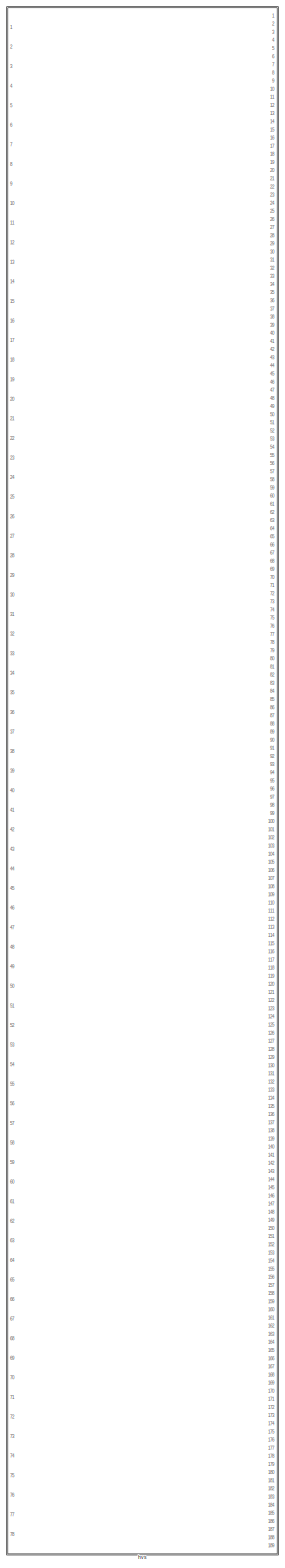
[diagram: root canvas - part 1/2, left side, full height]
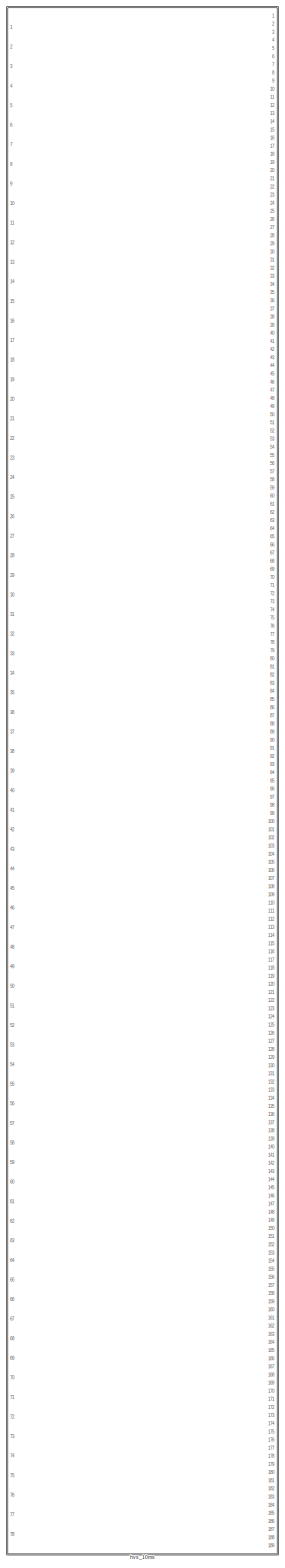
[diagram: root canvas - part 2/2, right side, full height]
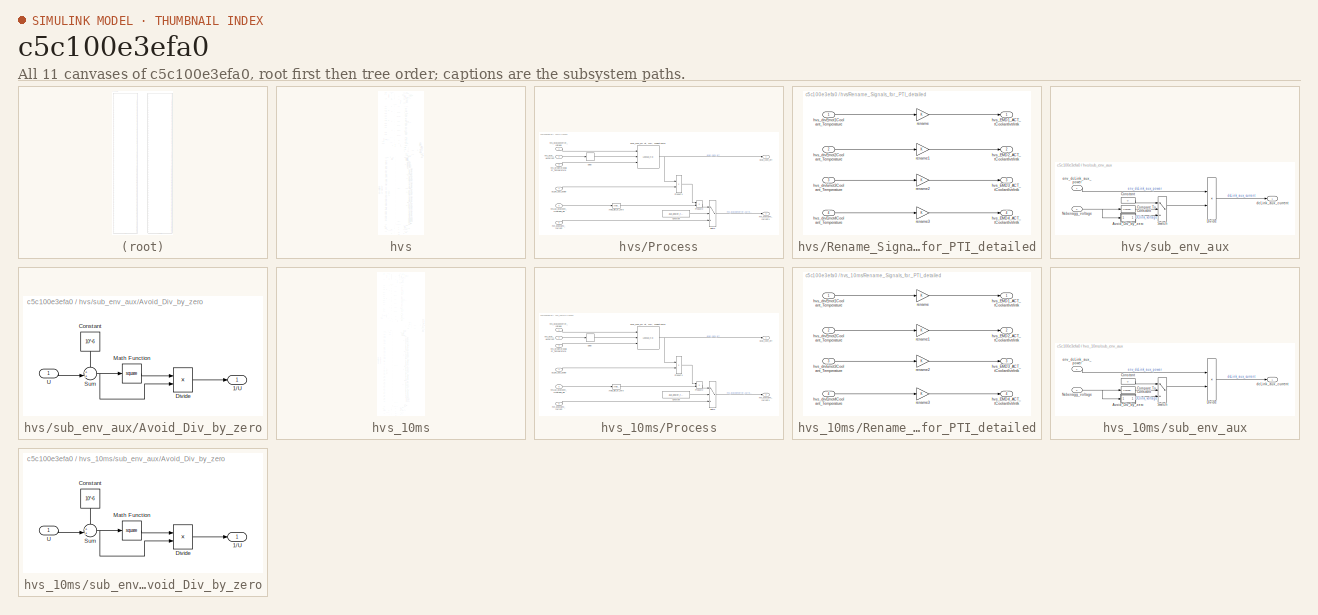
[diagram: thumbnail index - all 11 canvases of the model, root first then tree order]
MODEL slx_c5c100e3efa0
KIND library
CONFIG AbsTol = auto
CONFIG FixedStep = 0.001
CONFIG MaxStep = auto
CONFIG MinStep = auto
CONFIG RelTol = 1e-3
CONFIG SampleTimeConstraint = Unconstrained
CONFIG Solver = ode1
CONFIG SolverMode = Auto
CONFIG SolverName = ode1
CONFIG StartTime = 0.0
CONFIG StopTime = Inf
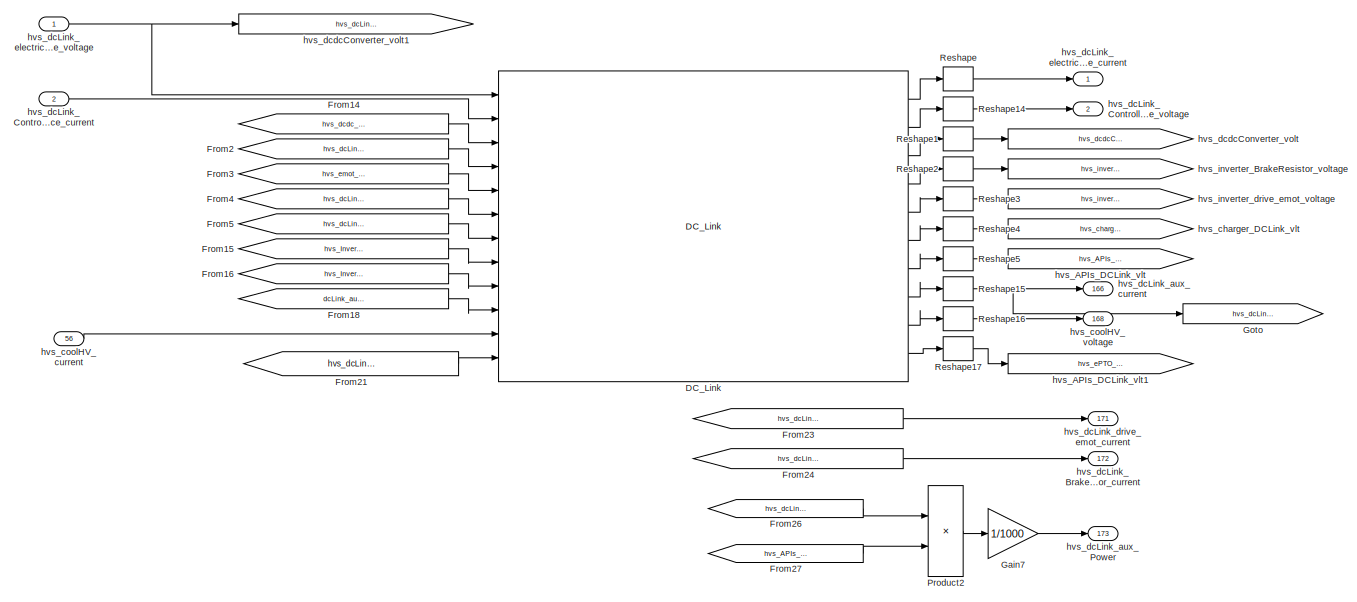
[diagram: hvs - part 1/14, top center region]
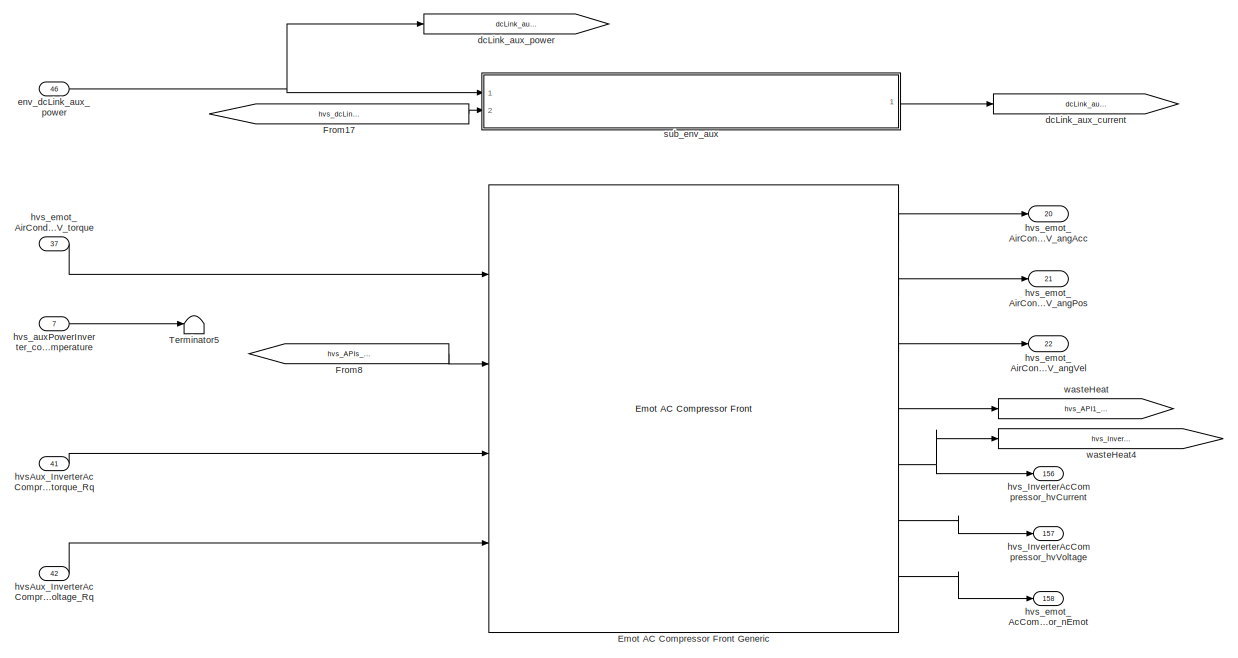
[diagram: hvs - part 2/14, top center region]
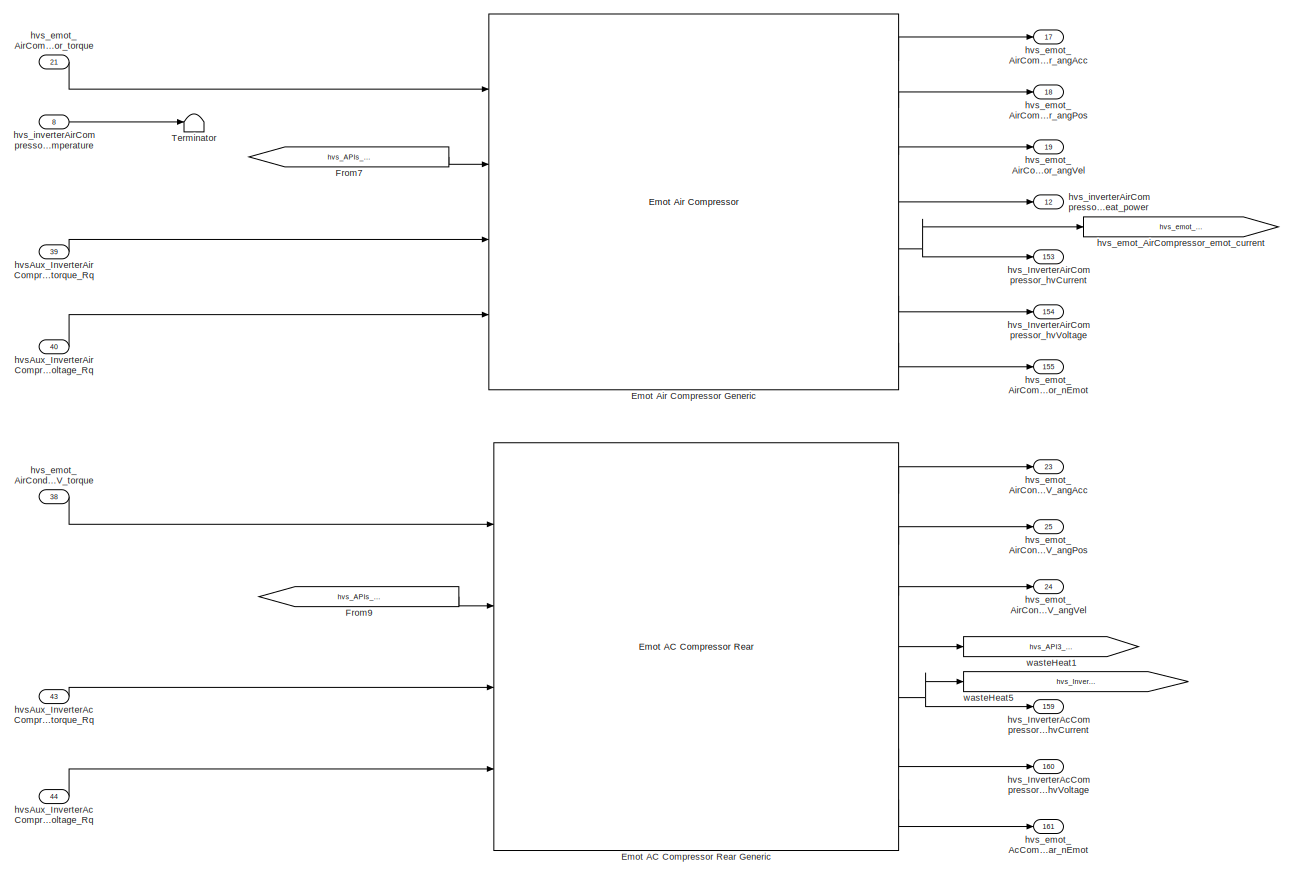
[diagram: hvs - part 3/14, top center region]
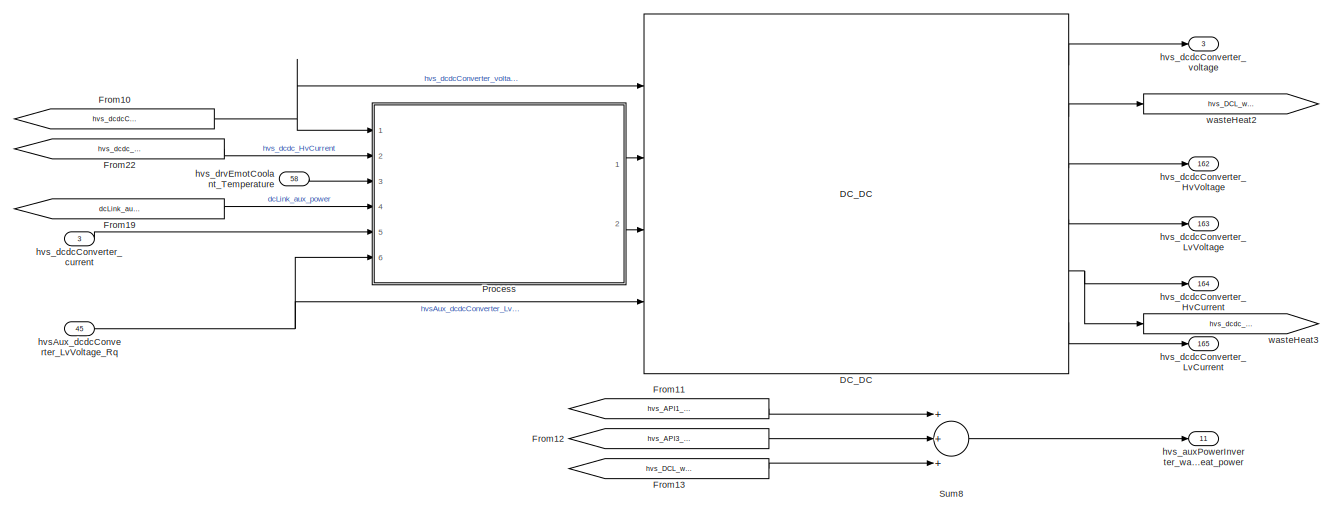
[diagram: hvs - part 4/14, central region]
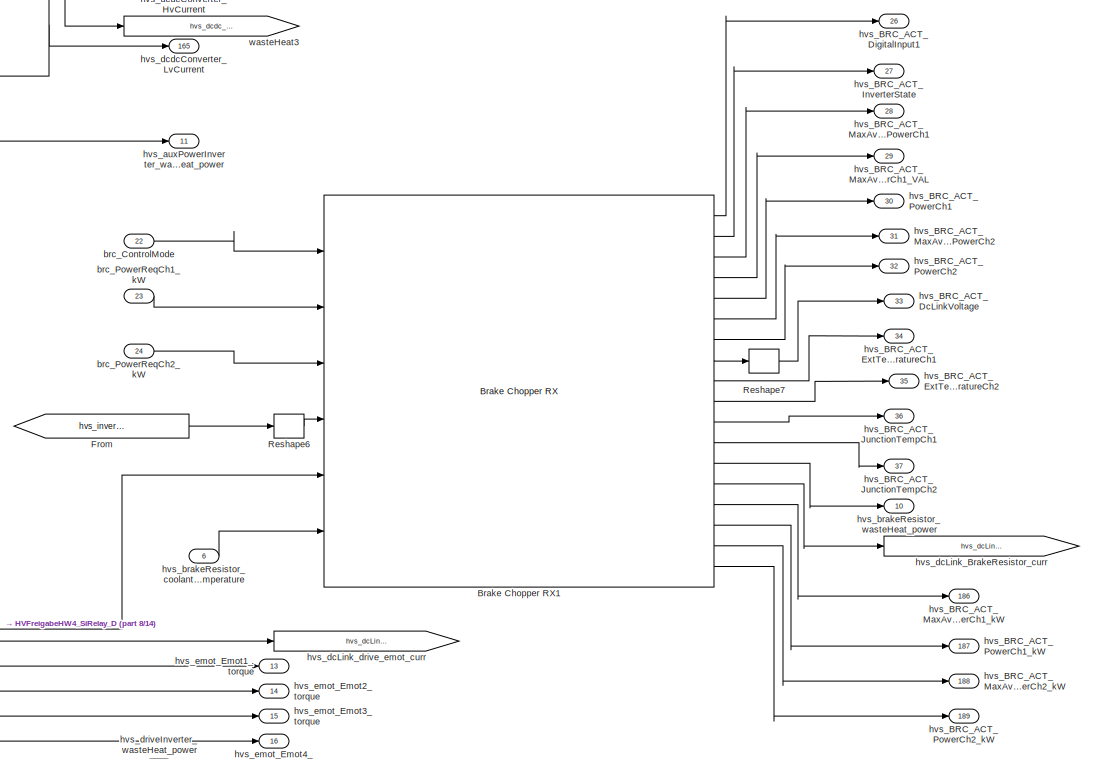
[diagram: hvs - part 5/14, middle right region]
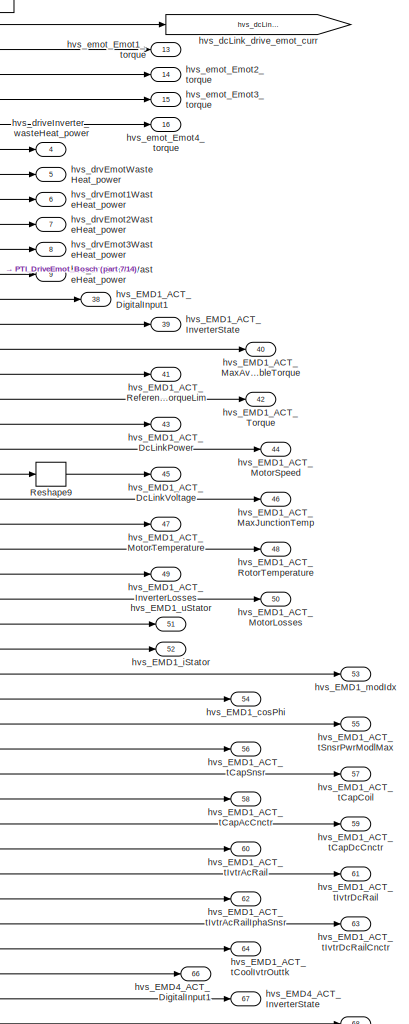
[diagram: hvs - part 6/14, central region]
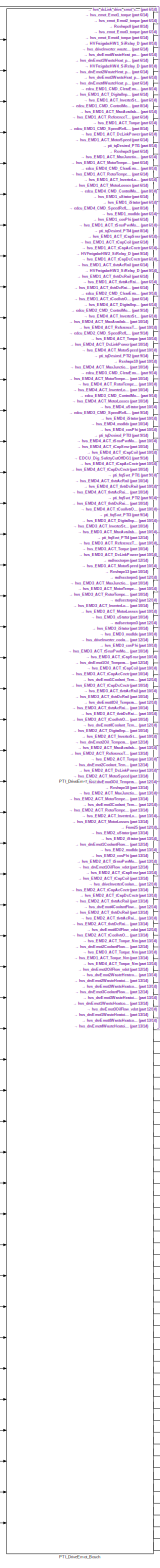
[diagram: hvs - part 7/14, bottom center region]
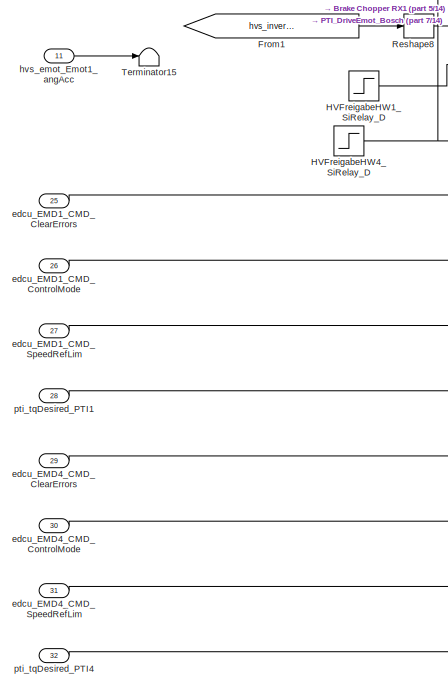
[diagram: hvs - part 8/14, middle left region]
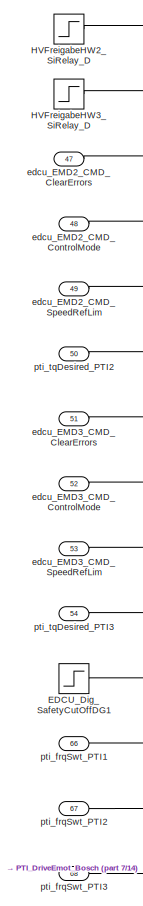
[diagram: hvs - part 9/14, middle left region]
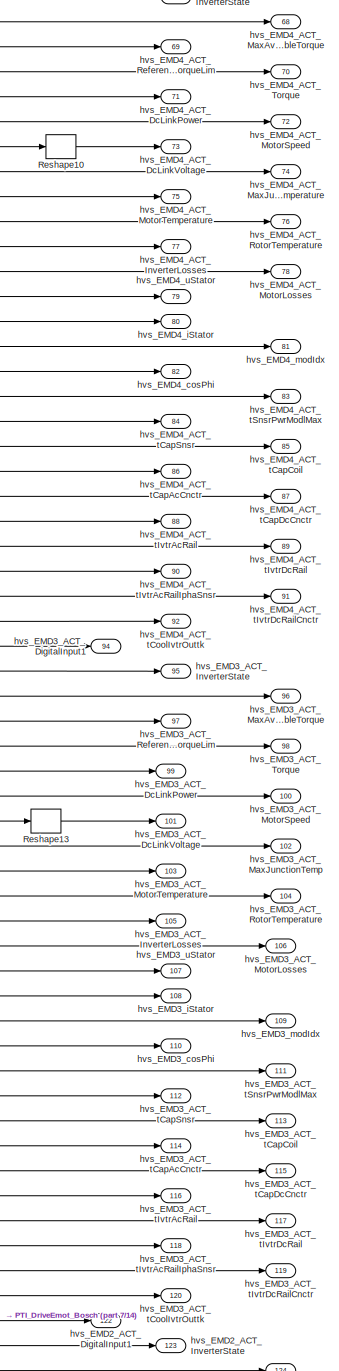
[diagram: hvs - part 10/14, bottom right region]
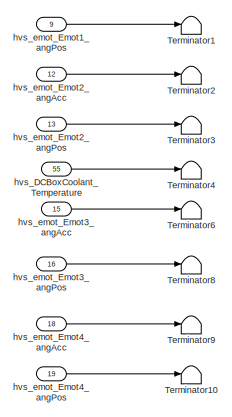
[diagram: hvs - part 11/14, bottom left region]
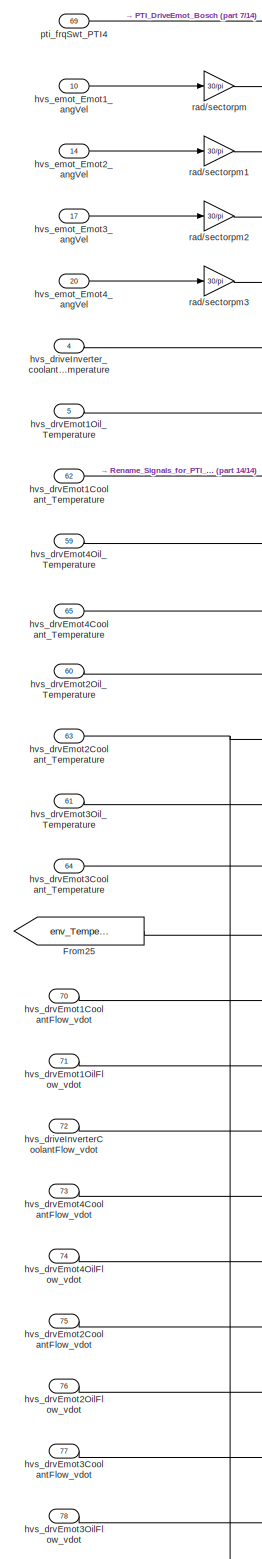
[diagram: hvs - part 12/14, bottom left region]
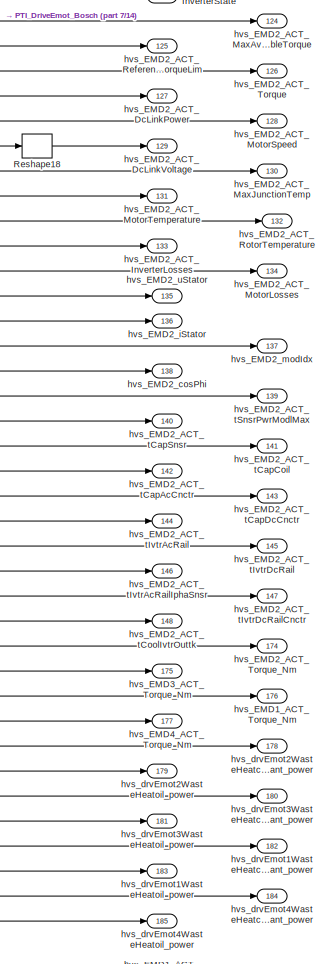
[diagram: hvs - part 13/14, bottom right region]
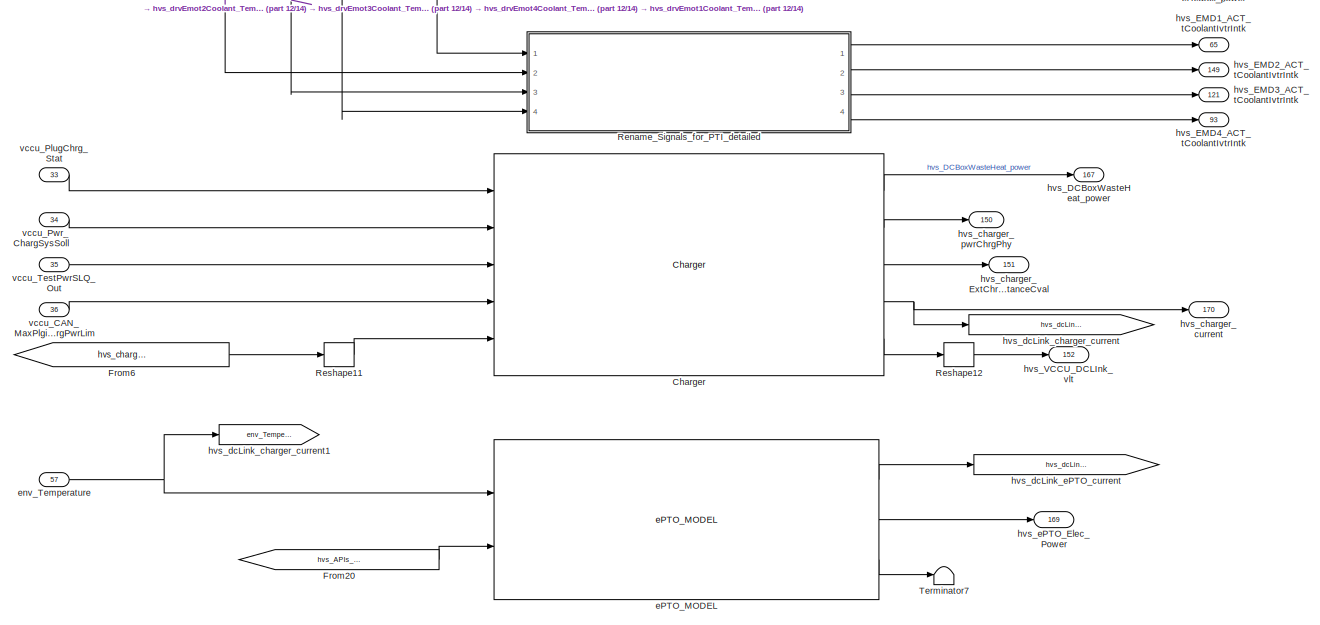
[diagram: hvs - part 14/14, bottom center region]
BLOCK [SubSystem] hvs
  Ports = [78, 189]
  RequestExecContextInheritance = off
  Variant = off
BLOCK [Reference] hvs/Brake Chopper RX1  REF=Electrical_to_Thermal_gen/Brake Chopper RX
  Ports = [6, 18]
  SourceBlock = Electrical_to_Thermal_gen/Brake Chopper RX
  SourceType = SubSystem
BLOCK [Reference] hvs/Charger  REF=Electrical_charger/Charger
  Ports = [5, 5]
  SourceBlock = Electrical_charger/Charger
  SourceType = SubSystem
BLOCK [Reference] hvs/DC_DC  REF=Electrical_converter/DC_DC
  Ports = [4, 6]
  SourceBlock = Electrical_converter/DC_DC
  SourceType = SubSystem
BLOCK [Reference] hvs/DC_Link  REF=Powernet/DC_Link
  Ports = [12, 10]
  SourceBlock = Powernet/DC_Link
  SourceType = SubSystem
BLOCK [Step] hvs/EDCU_Dig_SafetyCutOffDG1
  Time = 0.812
BLOCK [Reference] hvs/Emot AC Compressor Front Generic  REF=Electrical_to_Mechanical_gen/Emot AC Compressor Front
  Ports = [4, 7]
  SourceBlock = Electrical_to_Mechanical_gen/Emot AC Compressor Front
  SourceType = SubSystem
BLOCK [Reference] hvs/Emot AC Compressor Rear Generic  REF=Electrical_to_Mechanical_gen/Emot AC Compressor Rear
  Ports = [4, 7]
  SourceBlock = Electrical_to_Mechanical_gen/Emot AC Compressor Rear
  SourceType = SubSystem
BLOCK [Reference] hvs/Emot Air Compressor Generic  REF=Electrical_to_Mechanical_gen/Emot Air Compressor
  Ports = [4, 7]
  SourceBlock = Electrical_to_Mechanical_gen/Emot Air Compressor
  SourceType = SubSystem
BLOCK [From] hvs/From
  GotoTag = hvs_inverter_BrakeResistor_voltage
BLOCK [From] hvs/From1
  GotoTag = hvs_inverter_drive_emot_voltage
BLOCK [From] hvs/From10
  GotoTag = hvs_dcdcConverter_voltage
BLOCK [From] hvs/From11
  GotoTag = hvs_API1_wasteHeat_power
BLOCK [From] hvs/From12
  GotoTag = hvs_API3_wasteHeat_power
BLOCK [From] hvs/From13
  GotoTag = hvs_DCL_wasteHeat_power
BLOCK [From] hvs/From14
  GotoTag = hvs_dcdc_current
BLOCK [From] hvs/From15
  GotoTag = hvs_InverterAcCompressor_hvCurrent
BLOCK [From] hvs/From16
  GotoTag = hvs_InverterAcCompressorRear_hvCurrent
BLOCK [From] hvs/From17
  GotoTag = hvs_dcLink_electricalEnergyStorage_voltage
BLOCK [From] hvs/From18
  GotoTag = dcLink_aux_current
BLOCK [From] hvs/From19
  GotoTag = dcLink_aux_power
BLOCK [From] hvs/From2
  GotoTag = hvs_dcLink_drive_emot_current
BLOCK [From] hvs/From20
  GotoTag = hvs_APIs_DCLink_vlt
BLOCK [From] hvs/From21
  GotoTag = hvs_dcLink_ePTO_current
BLOCK [From] hvs/From22
  GotoTag = hvs_dcdc_current
BLOCK [From] hvs/From23
  GotoTag = hvs_dcLink_drive_emot_current
BLOCK [From] hvs/From24
  GotoTag = hvs_dcLink_BrakeResistor_current
BLOCK [From] hvs/From25
  GotoTag = env_Temperature
BLOCK [From] hvs/From26
  GotoTag = hvs_dcLink_aux_current
BLOCK [From] hvs/From27
  GotoTag = hvs_APIs_DCLink_vlt
BLOCK [From] hvs/From3
  GotoTag = hvs_emot_AirCompressor_emot_current
BLOCK [From] hvs/From4
  GotoTag = hvs_dcLink_BrakeResistor_current
BLOCK [From] hvs/From5
  GotoTag = hvs_dcLink_charger_current
BLOCK [From] hvs/From6
  GotoTag = hvs_charger_DCLink_vlt
BLOCK [From] hvs/From7
  GotoTag = hvs_APIs_DCLink_vlt
BLOCK [From] hvs/From8
  GotoTag = hvs_APIs_DCLink_vlt
BLOCK [From] hvs/From9
  GotoTag = hvs_APIs_DCLink_vlt
BLOCK [Gain] hvs/Gain7
  Gain = 1/1000
  OutDataTypeStr = Inherit: Inherit via internal rule
  ParamDataTypeStr = Inherit: Inherit via internal rule
  SaturateOnIntegerOverflow = off
BLOCK [Goto] hvs/Goto
  GotoTag = hvs_dcLink_aux_current
BLOCK [Step] hvs/HVFreigabeHW1_SiRelay_D
  Time = 5.502
BLOCK [Step] hvs/HVFreigabeHW2_SiRelay_D
  Time = 5.502
BLOCK [Step] hvs/HVFreigabeHW3_SiRelay_D
  Time = 5.502
BLOCK [Step] hvs/HVFreigabeHW4_SiRelay_D
  Time = 5.502
BLOCK [Reference] hvs/PTI_DriveEmot_Bosch  REF=Enrg_conv_El_to_Mec_Bosch/PTI_DriveEmot_Bosch
  Ports = [49, 131]
  SourceBlock = Enrg_conv_El_to_Mec_Bosch/PTI_DriveEmot_Bosch
  SourceType = SubSystem
BLOCK [SubSystem] hvs/Process
  Ports = [6, 2]
  RequestExecContextInheritance = off
  Variant = off
BLOCK [Reference] hvs/Process/Avoid_Div_by_zero  REF=Electrical_converter/DC_DC/Avoid_Div_by_zero
  Ports = [1, 1]
  SourceBlock = Electrical_converter/DC_DC/Avoid_Div_by_zero
  SourceType = SubSystem
BLOCK [Constant] hvs/Process/Constant
  Value = aux_power_flag
BLOCK [Delay] hvs/Process/Delay
  DelayLength = 1
  InitialCondition = 0
  InputPortMap = u0
  Ports = [1, 1]
BLOCK [Product] hvs/Process/Product1
  InputSameDT = off
  Inputs = **
  OutDataTypeStr = Inherit: Inherit via internal rule
  Ports = [2, 1]
  SaturateOnIntegerOverflow = off
BLOCK [Product] hvs/Process/Product2
  InputSameDT = off
  Inputs = **
  OutDataTypeStr = Inherit: Inherit via internal rule
  Ports = [2, 1]
  SaturateOnIntegerOverflow = off
BLOCK [Switch] hvs/Process/Switch
  InputSameDT = off
  SaturateOnIntegerOverflow = off
  Threshold = 0.5
BLOCK [Inport] hvs/Process/dcLink_aux_power
  IconDisplay = Port number
  Port = 4
BLOCK [Outport] hvs/Process/dcdc_conv_eff
  IconDisplay = Port number
BLOCK [Lookup_n-D] hvs/Process/dcdc_conv_eff vlt, curr, coolantTemp
  BreakpointsForDimension1 = dcdc_effmap_vlt_1stD
  BreakpointsForDimension2 = dcdc_effmap_cur_2ndD
  BreakpointsForDimension3 = dcdc_effmap_cooltemp_3rdD
  ExtrapMethod = Clip
  NumberOfTableDimensions = 3
  Ports = [3, 1]
  RndMeth = Simplest
  Table = dcdc_effmap
BLOCK [Inport] hvs/Process/hvsAux_dcdcConv_LvVoltage_Rq
  IconDisplay = Port number
  Port = 6
BLOCK [Inport] hvs/Process/hvs_dcdcConv_current
  IconDisplay = Port number
  Port = 5
BLOCK [Outport] hvs/Process/hvs_dcdcConv_current1
  IconDisplay = Port number
  Port = 2
BLOCK [Inport] hvs/Process/hvs_dcdcConverter_voltage
  IconDisplay = Port number
BLOCK [Inport] hvs/Process/hvs_dcdc_HvCurrent
  IconDisplay = Port number
  Port = 2
BLOCK [Inport] hvs/Process/hvs_drvEmotCoolant_Temperature
  IconDisplay = Port number
  Port = 3
BLOCK [Product] hvs/Product2
  InputSameDT = off
  Inputs = **
  OutDataTypeStr = Inherit: Inherit via internal rule
  Ports = [2, 1]
  SaturateOnIntegerOverflow = off
BLOCK [SubSystem] hvs/Rename_Signals_for_PTI_detailed
  Ports = [4, 4]
  RequestExecContextInheritance = off
  Variant = off
BLOCK [Outport] hvs/Rename_Signals_for_PTI_detailed/hvs_EMD1_ACT_tCoolantIvtrIntk
  IconDisplay = Port number
BLOCK [Outport] hvs/Rename_Signals_for_PTI_detailed/hvs_EMD2_ACT_tCoolantIvtrIntk
  IconDisplay = Port number
  Port = 2
BLOCK [Outport] hvs/Rename_Signals_for_PTI_detailed/hvs_EMD3_ACT_tCoolantIvtrIntk
  IconDisplay = Port number
  Port = 3
BLOCK [Outport] hvs/Rename_Signals_for_PTI_detailed/hvs_EMD4_ACT_tCoolantIvtrIntk
  IconDisplay = Port number
  Port = 4
BLOCK [Inport] hvs/Rename_Signals_for_PTI_detailed/hvs_drvEmot1Coolant_Temperature
  IconDisplay = Port number
BLOCK [Inport] hvs/Rename_Signals_for_PTI_detailed/hvs_drvEmot2Coolant_Temperature
  IconDisplay = Port number
  Port = 2
BLOCK [Inport] hvs/Rename_Signals_for_PTI_detailed/hvs_drvEmot3Coolant_Temperature
  IconDisplay = Port number
  Port = 3
BLOCK [Inport] hvs/Rename_Signals_for_PTI_detailed/hvs_drvEmot4Coolant_Temperature
  IconDisplay = Port number
  Port = 4
BLOCK [Gain] hvs/Rename_Signals_for_PTI_detailed/rename
  OutDataTypeStr = Inherit: Inherit via internal rule
  ParamDataTypeStr = Inherit: Inherit via internal rule
  SaturateOnIntegerOverflow = off
BLOCK [Gain] hvs/Rename_Signals_for_PTI_detailed/rename1
  OutDataTypeStr = Inherit: Inherit via internal rule
  ParamDataTypeStr = Inherit: Inherit via internal rule
  SaturateOnIntegerOverflow = off
BLOCK [Gain] hvs/Rename_Signals_for_PTI_detailed/rename2
  OutDataTypeStr = Inherit: Inherit via internal rule
  ParamDataTypeStr = Inherit: Inherit via internal rule
  SaturateOnIntegerOverflow = off
BLOCK [Gain] hvs/Rename_Signals_for_PTI_detailed/rename3
  OutDataTypeStr = Inherit: Inherit via internal rule
  ParamDataTypeStr = Inherit: Inherit via internal rule
  SaturateOnIntegerOverflow = off
BLOCK [Reshape] hvs/Reshape
  Ports = [1, 1]
BLOCK [Reshape] hvs/Reshape1
  Ports = [1, 1]
BLOCK [Reshape] hvs/Reshape10
  Ports = [1, 1]
BLOCK [Reshape] hvs/Reshape11
  Ports = [1, 1]
BLOCK [Reshape] hvs/Reshape12
  Ports = [1, 1]
BLOCK [Reshape] hvs/Reshape13
  Ports = [1, 1]
BLOCK [Reshape] hvs/Reshape14
  Ports = [1, 1]
BLOCK [Reshape] hvs/Reshape15
  Ports = [1, 1]
BLOCK [Reshape] hvs/Reshape16
  Ports = [1, 1]
BLOCK [Reshape] hvs/Reshape17
  Ports = [1, 1]
BLOCK [Reshape] hvs/Reshape18
  Ports = [1, 1]
BLOCK [Reshape] hvs/Reshape2
  Ports = [1, 1]
BLOCK [Reshape] hvs/Reshape3
  Ports = [1, 1]
BLOCK [Reshape] hvs/Reshape4
  Ports = [1, 1]
BLOCK [Reshape] hvs/Reshape5
  Ports = [1, 1]
BLOCK [Reshape] hvs/Reshape6
  Ports = [1, 1]
BLOCK [Reshape] hvs/Reshape7
  Ports = [1, 1]
BLOCK [Reshape] hvs/Reshape8
  Ports = [1, 1]
BLOCK [Reshape] hvs/Reshape9
  Ports = [1, 1]
BLOCK [Sum] hvs/Sum8
  Inputs = +++
  Ports = [3, 1]
BLOCK [Terminator] hvs/Terminator
BLOCK [Terminator] hvs/Terminator1
BLOCK [Terminator] hvs/Terminator10
BLOCK [Terminator] hvs/Terminator15
BLOCK [Terminator] hvs/Terminator2
BLOCK [Terminator] hvs/Terminator3
BLOCK [Terminator] hvs/Terminator4
BLOCK [Terminator] hvs/Terminator5
BLOCK [Terminator] hvs/Terminator6
BLOCK [Terminator] hvs/Terminator7
BLOCK [Terminator] hvs/Terminator8
BLOCK [Terminator] hvs/Terminator9
BLOCK [Inport] hvs/brc_ControlMode
  IconDisplay = Port number
  Port = 22
BLOCK [Inport] hvs/brc_PowerReqCh1_kW
  IconDisplay = Port number
  Port = 23
BLOCK [Inport] hvs/brc_PowerReqCh2_kW
  IconDisplay = Port number
  Port = 24
BLOCK [Goto] hvs/dcLink_aux_current
  GotoTag = dcLink_aux_current
BLOCK [Goto] hvs/dcLink_aux_power
  GotoTag = dcLink_aux_power
BLOCK [Reference] hvs/ePTO_MODEL  REF=ePTO/ePTO_MODEL
  Ports = [2, 3]
  SourceBlock = ePTO/ePTO_MODEL
  SourceType = SubSystem
BLOCK [Inport] hvs/edcu_EMD1_CMD_ClearErrors
  IconDisplay = Port number
  Port = 25
BLOCK [Inport] hvs/edcu_EMD1_CMD_ControlMode
  IconDisplay = Port number
  Port = 26
BLOCK [Inport] hvs/edcu_EMD1_CMD_SpeedRefLim
  IconDisplay = Port number
  Port = 27
BLOCK [Inport] hvs/edcu_EMD2_CMD_ClearErrors
  IconDisplay = Port number
  Port = 47
BLOCK [Inport] hvs/edcu_EMD2_CMD_ControlMode
  IconDisplay = Port number
  Port = 48
BLOCK [Inport] hvs/edcu_EMD2_CMD_SpeedRefLim
  IconDisplay = Port number
  Port = 49
BLOCK [Inport] hvs/edcu_EMD3_CMD_ClearErrors
  IconDisplay = Port number
  Port = 51
BLOCK [Inport] hvs/edcu_EMD3_CMD_ControlMode
  IconDisplay = Port number
  Port = 52
BLOCK [Inport] hvs/edcu_EMD3_CMD_SpeedRefLim
  IconDisplay = Port number
  Port = 53
BLOCK [Inport] hvs/edcu_EMD4_CMD_ClearErrors
  IconDisplay = Port number
  Port = 29
BLOCK [Inport] hvs/edcu_EMD4_CMD_ControlMode
  IconDisplay = Port number
  Port = 30
BLOCK [Inport] hvs/edcu_EMD4_CMD_SpeedRefLim
  IconDisplay = Port number
  Port = 31
BLOCK [Inport] hvs/env_Temperature
  IconDisplay = Port number
  Port = 57
BLOCK [Inport] hvs/env_dcLink_aux_power
  IconDisplay = Port number
  Port = 46
BLOCK [Inport] hvs/hvsAux_InverterAcCompressorFront_Voltage_Rq
  IconDisplay = Port number
  Port = 42
BLOCK [Inport] hvs/hvsAux_InverterAcCompressorFront_torque_Rq
  IconDisplay = Port number
  Port = 41
BLOCK [Inport] hvs/hvsAux_InverterAcCompressorRear_Voltage_Rq
  IconDisplay = Port number
  Port = 44
BLOCK [Inport] hvs/hvsAux_InverterAcCompressorRear_torque_Rq
  IconDisplay = Port number
  Port = 43
BLOCK [Inport] hvs/hvsAux_InverterAirCompressor_Voltage_Rq
  IconDisplay = Port number
  Port = 40
BLOCK [Inport] hvs/hvsAux_InverterAirCompressor_torque_Rq
  IconDisplay = Port number
  Port = 39
BLOCK [Inport] hvs/hvsAux_dcdcConverter_LvVoltage_Rq
  IconDisplay = Port number
  Port = 45
BLOCK [Goto] hvs/hvs_APIs_DCLink_vlt
  GotoTag = hvs_APIs_DCLink_vlt
BLOCK [Goto] hvs/hvs_APIs_DCLink_vlt1
  GotoTag = hvs_ePTO_DCLink_vlt
BLOCK [Outport] hvs/hvs_BRC_ACT_DcLinkVoltage
  IconDisplay = Port number
  Port = 33
BLOCK [Outport] hvs/hvs_BRC_ACT_DigitalInput1
  IconDisplay = Port number
  Port = 26
BLOCK [Outport] hvs/hvs_BRC_ACT_ExtTemperatureCh1
  IconDisplay = Port number
  Port = 34
BLOCK [Outport] hvs/hvs_BRC_ACT_ExtTemperatureCh2
  IconDisplay = Port number
  Port = 35
BLOCK [Outport] hvs/hvs_BRC_ACT_InverterState
  IconDisplay = Port number
  Port = 27
BLOCK [Outport] hvs/hvs_BRC_ACT_JunctionTempCh1
  IconDisplay = Port number
  Port = 36
BLOCK [Outport] hvs/hvs_BRC_ACT_JunctionTempCh2
  IconDisplay = Port number
  Port = 37
BLOCK [Outport] hvs/hvs_BRC_ACT_MaxAvailablePowerCh1
  IconDisplay = Port number
  Port = 28
BLOCK [Outport] hvs/hvs_BRC_ACT_MaxAvailablePowerCh1_VAL
  IconDisplay = Port number
  Port = 29
BLOCK [Outport] hvs/hvs_BRC_ACT_MaxAvailablePowerCh1_kW
  IconDisplay = Port number
  Port = 186
BLOCK [Outport] hvs/hvs_BRC_ACT_MaxAvailablePowerCh2
  IconDisplay = Port number
  Port = 31
BLOCK [Outport] hvs/hvs_BRC_ACT_MaxAvailablePowerCh2_kW
  IconDisplay = Port number
  Port = 188
BLOCK [Outport] hvs/hvs_BRC_ACT_PowerCh1
  IconDisplay = Port number
  Port = 30
BLOCK [Outport] hvs/hvs_BRC_ACT_PowerCh1_kW
  IconDisplay = Port number
  Port = 187
BLOCK [Outport] hvs/hvs_BRC_ACT_PowerCh2
  IconDisplay = Port number
  Port = 32
BLOCK [Outport] hvs/hvs_BRC_ACT_PowerCh2_kW
  IconDisplay = Port number
  Port = 189
BLOCK [Inport] hvs/hvs_DCBoxCoolant_Temperature
  IconDisplay = Port number
  Port = 55
BLOCK [Outport] hvs/hvs_DCBoxWasteHeat_power
  IconDisplay = Port number
  Port = 167
BLOCK [Outport] hvs/hvs_EMD1_ACT_DcLinkPower
  IconDisplay = Port number
  Port = 43
BLOCK [Outport] hvs/hvs_EMD1_ACT_DcLinkVoltage
  IconDisplay = Port number
  Port = 45
BLOCK [Outport] hvs/hvs_EMD1_ACT_DigitalInput1
  IconDisplay = Port number
  Port = 38
BLOCK [Outport] hvs/hvs_EMD1_ACT_InverterLosses
  IconDisplay = Port number
  Port = 49
BLOCK [Outport] hvs/hvs_EMD1_ACT_InverterState
  IconDisplay = Port number
  Port = 39
BLOCK [Outport] hvs/hvs_EMD1_ACT_MaxAvailableTorque
  IconDisplay = Port number
  Port = 40
BLOCK [Outport] hvs/hvs_EMD1_ACT_MaxJunctionTemp
  IconDisplay = Port number
  Port = 46
BLOCK [Outport] hvs/hvs_EMD1_ACT_MotorLosses
  IconDisplay = Port number
  Port = 50
BLOCK [Outport] hvs/hvs_EMD1_ACT_MotorSpeed
  IconDisplay = Port number
  Port = 44
BLOCK [Outport] hvs/hvs_EMD1_ACT_MotorTemperature
  IconDisplay = Port number
  Port = 47
BLOCK [Outport] hvs/hvs_EMD1_ACT_ReferenceTorqueLim
  IconDisplay = Port number
  Port = 41
BLOCK [Outport] hvs/hvs_EMD1_ACT_RotorTemperature
  IconDisplay = Port number
  Port = 48
BLOCK [Outport] hvs/hvs_EMD1_ACT_Torque
  IconDisplay = Port number
  Port = 42
BLOCK [Outport] hvs/hvs_EMD1_ACT_Torque_Nm
  IconDisplay = Port number
  Port = 176
BLOCK [Outport] hvs/hvs_EMD1_ACT_tCapAcCnctr
  IconDisplay = Port number
  Port = 58
BLOCK [Outport] hvs/hvs_EMD1_ACT_tCapCoil
  IconDisplay = Port number
  Port = 57
BLOCK [Outport] hvs/hvs_EMD1_ACT_tCapDcCnctr
  IconDisplay = Port number
  Port = 59
BLOCK [Outport] hvs/hvs_EMD1_ACT_tCapSnsr
  IconDisplay = Port number
  Port = 56
BLOCK [Outport] hvs/hvs_EMD1_ACT_tCoolIvtrOuttk
  IconDisplay = Port number
  Port = 64
BLOCK [Outport] hvs/hvs_EMD1_ACT_tCoolantIvtrIntk
  IconDisplay = Port number
  Port = 65
BLOCK [Outport] hvs/hvs_EMD1_ACT_tIvtrAcRail
  IconDisplay = Port number
  Port = 60
BLOCK [Outport] hvs/hvs_EMD1_ACT_tIvtrAcRailIphaSnsr
  IconDisplay = Port number
  Port = 62
BLOCK [Outport] hvs/hvs_EMD1_ACT_tIvtrDcRail
  IconDisplay = Port number
  Port = 61
BLOCK [Outport] hvs/hvs_EMD1_ACT_tIvtrDcRailCnctr
  IconDisplay = Port number
  Port = 63
BLOCK [Outport] hvs/hvs_EMD1_ACT_tSnsrPwrModlMax
  IconDisplay = Port number
  Port = 55
BLOCK [Outport] hvs/hvs_EMD1_cosPhi
  IconDisplay = Port number
  Port = 54
BLOCK [Outport] hvs/hvs_EMD1_iStator
  IconDisplay = Port number
  Port = 52
BLOCK [Outport] hvs/hvs_EMD1_modIdx
  IconDisplay = Port number
  Port = 53
BLOCK [Outport] hvs/hvs_EMD1_uStator
  IconDisplay = Port number
  Port = 51
BLOCK [Outport] hvs/hvs_EMD2_ACT_DcLinkPower
  IconDisplay = Port number
  Port = 127
BLOCK [Outport] hvs/hvs_EMD2_ACT_DcLinkVoltage
  IconDisplay = Port number
  Port = 129
BLOCK [Outport] hvs/hvs_EMD2_ACT_DigitalInput1
  IconDisplay = Port number
  Port = 122
BLOCK [Outport] hvs/hvs_EMD2_ACT_InverterLosses
  IconDisplay = Port number
  Port = 133
BLOCK [Outport] hvs/hvs_EMD2_ACT_InverterState
  IconDisplay = Port number
  Port = 123
BLOCK [Outport] hvs/hvs_EMD2_ACT_MaxAvailableTorque
  IconDisplay = Port number
  Port = 124
BLOCK [Outport] hvs/hvs_EMD2_ACT_MaxJunctionTemp
  IconDisplay = Port number
  Port = 130
BLOCK [Outport] hvs/hvs_EMD2_ACT_MotorLosses
  IconDisplay = Port number
  Port = 134
BLOCK [Outport] hvs/hvs_EMD2_ACT_MotorSpeed
  IconDisplay = Port number
  Port = 128
BLOCK [Outport] hvs/hvs_EMD2_ACT_MotorTemperature
  IconDisplay = Port number
  Port = 131
BLOCK [Outport] hvs/hvs_EMD2_ACT_ReferenceTorqueLim
  IconDisplay = Port number
  Port = 125
BLOCK [Outport] hvs/hvs_EMD2_ACT_RotorTemperature
  IconDisplay = Port number
  Port = 132
BLOCK [Outport] hvs/hvs_EMD2_ACT_Torque
  IconDisplay = Port number
  Port = 126
BLOCK [Outport] hvs/hvs_EMD2_ACT_Torque_Nm
  IconDisplay = Port number
  Port = 174
BLOCK [Outport] hvs/hvs_EMD2_ACT_tCapAcCnctr
  IconDisplay = Port number
  Port = 142
BLOCK [Outport] hvs/hvs_EMD2_ACT_tCapCoil
  IconDisplay = Port number
  Port = 141
BLOCK [Outport] hvs/hvs_EMD2_ACT_tCapDcCnctr
  IconDisplay = Port number
  Port = 143
BLOCK [Outport] hvs/hvs_EMD2_ACT_tCapSnsr
  IconDisplay = Port number
  Port = 140
BLOCK [Outport] hvs/hvs_EMD2_ACT_tCoolIvtrOuttk
  IconDisplay = Port number
  Port = 148
BLOCK [Outport] hvs/hvs_EMD2_ACT_tCoolantIvtrIntk
  IconDisplay = Port number
  Port = 149
BLOCK [Outport] hvs/hvs_EMD2_ACT_tIvtrAcRail
  IconDisplay = Port number
  Port = 144
BLOCK [Outport] hvs/hvs_EMD2_ACT_tIvtrAcRailIphaSnsr
  IconDisplay = Port number
  Port = 146
BLOCK [Outport] hvs/hvs_EMD2_ACT_tIvtrDcRail
  IconDisplay = Port number
  Port = 145
BLOCK [Outport] hvs/hvs_EMD2_ACT_tIvtrDcRailCnctr
  IconDisplay = Port number
  Port = 147
BLOCK [Outport] hvs/hvs_EMD2_ACT_tSnsrPwrModlMax
  IconDisplay = Port number
  Port = 139
BLOCK [Outport] hvs/hvs_EMD2_cosPhi
  IconDisplay = Port number
  Port = 138
BLOCK [Outport] hvs/hvs_EMD2_iStator
  IconDisplay = Port number
  Port = 136
BLOCK [Outport] hvs/hvs_EMD2_modIdx
  IconDisplay = Port number
  Port = 137
BLOCK [Outport] hvs/hvs_EMD2_uStator
  IconDisplay = Port number
  Port = 135
BLOCK [Outport] hvs/hvs_EMD3_ACT_DcLinkPower
  IconDisplay = Port number
  Port = 99
BLOCK [Outport] hvs/hvs_EMD3_ACT_DcLinkVoltage
  IconDisplay = Port number
  Port = 101
BLOCK [Outport] hvs/hvs_EMD3_ACT_DigitalInput1
  IconDisplay = Port number
  Port = 94
BLOCK [Outport] hvs/hvs_EMD3_ACT_InverterLosses
  IconDisplay = Port number
  Port = 105
BLOCK [Outport] hvs/hvs_EMD3_ACT_InverterState
  IconDisplay = Port number
  Port = 95
BLOCK [Outport] hvs/hvs_EMD3_ACT_MaxAvailableTorque
  IconDisplay = Port number
  Port = 96
BLOCK [Outport] hvs/hvs_EMD3_ACT_MaxJunctionTemp
  IconDisplay = Port number
  Port = 102
BLOCK [Outport] hvs/hvs_EMD3_ACT_MotorLosses
  IconDisplay = Port number
  Port = 106
BLOCK [Outport] hvs/hvs_EMD3_ACT_MotorSpeed
  IconDisplay = Port number
  Port = 100
BLOCK [Outport] hvs/hvs_EMD3_ACT_MotorTemperature
  IconDisplay = Port number
  Port = 103
BLOCK [Outport] hvs/hvs_EMD3_ACT_ReferenceTorqueLim
  IconDisplay = Port number
  Port = 97
BLOCK [Outport] hvs/hvs_EMD3_ACT_RotorTemperature
  IconDisplay = Port number
  Port = 104
BLOCK [Outport] hvs/hvs_EMD3_ACT_Torque
  IconDisplay = Port number
  Port = 98
BLOCK [Outport] hvs/hvs_EMD3_ACT_Torque_Nm
  IconDisplay = Port number
  Port = 175
BLOCK [Outport] hvs/hvs_EMD3_ACT_tCapAcCnctr
  IconDisplay = Port number
  Port = 114
BLOCK [Outport] hvs/hvs_EMD3_ACT_tCapCoil
  IconDisplay = Port number
  Port = 113
BLOCK [Outport] hvs/hvs_EMD3_ACT_tCapDcCnctr
  IconDisplay = Port number
  Port = 115
BLOCK [Outport] hvs/hvs_EMD3_ACT_tCapSnsr
  IconDisplay = Port number
  Port = 112
BLOCK [Outport] hvs/hvs_EMD3_ACT_tCoolIvtrOuttk
  IconDisplay = Port number
  Port = 120
BLOCK [Outport] hvs/hvs_EMD3_ACT_tCoolantIvtrIntk
  IconDisplay = Port number
  Port = 121
BLOCK [Outport] hvs/hvs_EMD3_ACT_tIvtrAcRail
  IconDisplay = Port number
  Port = 116
BLOCK [Outport] hvs/hvs_EMD3_ACT_tIvtrAcRailIphaSnsr
  IconDisplay = Port number
  Port = 118
BLOCK [Outport] hvs/hvs_EMD3_ACT_tIvtrDcRail
  IconDisplay = Port number
  Port = 117
BLOCK [Outport] hvs/hvs_EMD3_ACT_tIvtrDcRailCnctr
  IconDisplay = Port number
  Port = 119
BLOCK [Outport] hvs/hvs_EMD3_ACT_tSnsrPwrModlMax
  IconDisplay = Port number
  Port = 111
BLOCK [Outport] hvs/hvs_EMD3_cosPhi
  IconDisplay = Port number
  Port = 110
BLOCK [Outport] hvs/hvs_EMD3_iStator
  IconDisplay = Port number
  Port = 108
BLOCK [Outport] hvs/hvs_EMD3_modIdx
  IconDisplay = Port number
  Port = 109
BLOCK [Outport] hvs/hvs_EMD3_uStator
  IconDisplay = Port number
  Port = 107
BLOCK [Outport] hvs/hvs_EMD4_ACT_DcLinkPower
  IconDisplay = Port number
  Port = 71
BLOCK [Outport] hvs/hvs_EMD4_ACT_DcLinkVoltage
  IconDisplay = Port number
  Port = 73
BLOCK [Outport] hvs/hvs_EMD4_ACT_DigitalInput1
  IconDisplay = Port number
  Port = 66
BLOCK [Outport] hvs/hvs_EMD4_ACT_InverterLosses
  IconDisplay = Port number
  Port = 77
BLOCK [Outport] hvs/hvs_EMD4_ACT_InverterState
  IconDisplay = Port number
  Port = 67
BLOCK [Outport] hvs/hvs_EMD4_ACT_MaxAvailableTorque
  IconDisplay = Port number
  Port = 68
BLOCK [Outport] hvs/hvs_EMD4_ACT_MaxJunctionTemperature
  IconDisplay = Port number
  Port = 74
BLOCK [Outport] hvs/hvs_EMD4_ACT_MotorLosses
  IconDisplay = Port number
  Port = 78
BLOCK [Outport] hvs/hvs_EMD4_ACT_MotorSpeed
  IconDisplay = Port number
  Port = 72
BLOCK [Outport] hvs/hvs_EMD4_ACT_MotorTemperature
  IconDisplay = Port number
  Port = 75
BLOCK [Outport] hvs/hvs_EMD4_ACT_ReferenceTorqueLim
  IconDisplay = Port number
  Port = 69
BLOCK [Outport] hvs/hvs_EMD4_ACT_RotorTemperature
  IconDisplay = Port number
  Port = 76
BLOCK [Outport] hvs/hvs_EMD4_ACT_Torque
  IconDisplay = Port number
  Port = 70
BLOCK [Outport] hvs/hvs_EMD4_ACT_Torque_Nm
  IconDisplay = Port number
  Port = 177
BLOCK [Outport] hvs/hvs_EMD4_ACT_tCapAcCnctr
  IconDisplay = Port number
  Port = 86
BLOCK [Outport] hvs/hvs_EMD4_ACT_tCapCoil
  IconDisplay = Port number
  Port = 85
BLOCK [Outport] hvs/hvs_EMD4_ACT_tCapDcCnctr
  IconDisplay = Port number
  Port = 87
BLOCK [Outport] hvs/hvs_EMD4_ACT_tCapSnsr
  IconDisplay = Port number
  Port = 84
BLOCK [Outport] hvs/hvs_EMD4_ACT_tCoolIvtrOuttk
  IconDisplay = Port number
  Port = 92
BLOCK [Outport] hvs/hvs_EMD4_ACT_tCoolantIvtrIntk
  IconDisplay = Port number
  Port = 93
BLOCK [Outport] hvs/hvs_EMD4_ACT_tIvtrAcRail
  IconDisplay = Port number
  Port = 88
BLOCK [Outport] hvs/hvs_EMD4_ACT_tIvtrAcRailIphaSnsr
  IconDisplay = Port number
  Port = 90
BLOCK [Outport] hvs/hvs_EMD4_ACT_tIvtrDcRail
  IconDisplay = Port number
  Port = 89
BLOCK [Outport] hvs/hvs_EMD4_ACT_tIvtrDcRailCnctr
  IconDisplay = Port number
  Port = 91
BLOCK [Outport] hvs/hvs_EMD4_ACT_tSnsrPwrModlMax
  IconDisplay = Port number
  Port = 83
BLOCK [Outport] hvs/hvs_EMD4_cosPhi
  IconDisplay = Port number
  Port = 82
BLOCK [Outport] hvs/hvs_EMD4_iStator
  IconDisplay = Port number
  Port = 80
BLOCK [Outport] hvs/hvs_EMD4_modIdx
  IconDisplay = Port number
  Port = 81
BLOCK [Outport] hvs/hvs_EMD4_uStator
  IconDisplay = Port number
  Port = 79
BLOCK [Outport] hvs/hvs_InverterAcCompressorRear_hvCurrent
  IconDisplay = Port number
  Port = 159
BLOCK [Outport] hvs/hvs_InverterAcCompressorRear_hvVoltage
  IconDisplay = Port number
  Port = 160
BLOCK [Outport] hvs/hvs_InverterAcCompressor_hvCurrent
  IconDisplay = Port number
  Port = 156
BLOCK [Outport] hvs/hvs_InverterAcCompressor_hvVoltage
  IconDisplay = Port number
  Port = 157
BLOCK [Outport] hvs/hvs_InverterAirCompressor_hvCurrent
  IconDisplay = Port number
  Port = 153
BLOCK [Outport] hvs/hvs_InverterAirCompressor_hvVoltage
  IconDisplay = Port number
  Port = 154
BLOCK [Outport] hvs/hvs_VCCU_DCLInk_vlt
  IconDisplay = Port number
  Port = 152
BLOCK [Inport] hvs/hvs_auxPowerInverter_coolant_temperature
  IconDisplay = Port number
  Port = 7
BLOCK [Outport] hvs/hvs_auxPowerInverter_wasteHeat_power
  IconDisplay = Port number
  Port = 11
BLOCK [Inport] hvs/hvs_brakeResistor_coolant_temperature
  IconDisplay = Port number
  Port = 6
BLOCK [Outport] hvs/hvs_brakeResistor_wasteHeat_power
  IconDisplay = Port number
  Port = 10
BLOCK [Goto] hvs/hvs_charger_DCLink_vlt
  GotoTag = hvs_charger_DCLink_vlt
BLOCK [Outport] hvs/hvs_charger_ExtChrgr_Isolation_ResistanceCval
  IconDisplay = Port number
  Port = 151
BLOCK [Outport] hvs/hvs_charger_current
  IconDisplay = Port number
  Port = 170
BLOCK [Outport] hvs/hvs_charger_pwrChrgPhy
  IconDisplay = Port number
  Port = 150
BLOCK [Inport] hvs/hvs_coolHV_current
  IconDisplay = Port number
  Port = 56
BLOCK [Outport] hvs/hvs_coolHV_voltage
  IconDisplay = Port number
  Port = 168
BLOCK [Goto] hvs/hvs_dcLink_BrakeResistor_curr
  GotoTag = hvs_dcLink_BrakeResistor_current
BLOCK [Outport] hvs/hvs_dcLink_BrakeResistor_current
  IconDisplay = Port number
  Port = 172
BLOCK [Inport] hvs/hvs_dcLink_ControllableEnergySource_current
  IconDisplay = Port number
  Port = 2
BLOCK [Outport] hvs/hvs_dcLink_ControllableEnergySource_voltage
  IconDisplay = Port number
  Port = 2
BLOCK [Outport] hvs/hvs_dcLink_aux_Power
  IconDisplay = Port number
  Port = 173
BLOCK [Outport] hvs/hvs_dcLink_aux_current
  IconDisplay = Port number
  Port = 166
BLOCK [Goto] hvs/hvs_dcLink_charger_current
  GotoTag = hvs_dcLink_charger_current
BLOCK [Goto] hvs/hvs_dcLink_charger_current1
  GotoTag = env_Temperature
BLOCK [Goto] hvs/hvs_dcLink_drive_emot_curr
  GotoTag = hvs_dcLink_drive_emot_current
BLOCK [Outport] hvs/hvs_dcLink_drive_emot_current
  IconDisplay = Port number
  Port = 171
BLOCK [Goto] hvs/hvs_dcLink_ePTO_current
  GotoTag = hvs_dcLink_ePTO_current
BLOCK [Outport] hvs/hvs_dcLink_electricalEnergyStorage_current
  IconDisplay = Port number
BLOCK [Inport] hvs/hvs_dcLink_electricalEnergyStorage_voltage
  IconDisplay = Port number
BLOCK [Outport] hvs/hvs_dcdcConverter_HvCurrent
  IconDisplay = Port number
  Port = 164
BLOCK [Outport] hvs/hvs_dcdcConverter_HvVoltage
  IconDisplay = Port number
  Port = 162
BLOCK [Outport] hvs/hvs_dcdcConverter_LvCurrent
  IconDisplay = Port number
  Port = 165
BLOCK [Outport] hvs/hvs_dcdcConverter_LvVoltage
  IconDisplay = Port number
  Port = 163
BLOCK [Inport] hvs/hvs_dcdcConverter_current
  IconDisplay = Port number
  Port = 3
BLOCK [Goto] hvs/hvs_dcdcConverter_volt
  GotoTag = hvs_dcdcConverter_voltage
BLOCK [Goto] hvs/hvs_dcdcConverter_volt1
  GotoTag = hvs_dcLink_electricalEnergyStorage_voltage
BLOCK [Outport] hvs/hvs_dcdcConverter_voltage
  IconDisplay = Port number
  Port = 3
BLOCK [Inport] hvs/hvs_driveInverterCoolantFlow_vdot
  IconDisplay = Port number
  Port = 72
BLOCK [Inport] hvs/hvs_driveInverter_coolant_temperature
  IconDisplay = Port number
  Port = 4
BLOCK [Outport] hvs/hvs_driveInverter_wasteHeat_power
  IconDisplay = Port number
  Port = 4
BLOCK [Inport] hvs/hvs_drvEmot1CoolantFlow_vdot
  IconDisplay = Port number
  Port = 70
BLOCK [Inport] hvs/hvs_drvEmot1Coolant_Temperature
  IconDisplay = Port number
  Port = 62
BLOCK [Inport] hvs/hvs_drvEmot1OilFlow_vdot
  IconDisplay = Port number
  Port = 71
BLOCK [Inport] hvs/hvs_drvEmot1Oil_Temperature
  IconDisplay = Port number
  Port = 5
BLOCK [Outport] hvs/hvs_drvEmot1WasteHeat_power
  IconDisplay = Port number
  Port = 6
BLOCK [Outport] hvs/hvs_drvEmot1WasteHeatcoolant_power
  IconDisplay = Port number
  Port = 182
BLOCK [Outport] hvs/hvs_drvEmot1WasteHeatoil_power
  IconDisplay = Port number
  Port = 183
BLOCK [Inport] hvs/hvs_drvEmot2CoolantFlow_vdot
  IconDisplay = Port number
  Port = 75
BLOCK [Inport] hvs/hvs_drvEmot2Coolant_Temperature
  IconDisplay = Port number
  Port = 63
BLOCK [Inport] hvs/hvs_drvEmot2OilFlow_vdot
  IconDisplay = Port number
  Port = 76
BLOCK [Inport] hvs/hvs_drvEmot2Oil_Temperature
  IconDisplay = Port number
  Port = 60
BLOCK [Outport] hvs/hvs_drvEmot2WasteHeat_power
  IconDisplay = Port number
  Port = 7
BLOCK [Outport] hvs/hvs_drvEmot2WasteHeatcoolant_power
  IconDisplay = Port number
  Port = 178
BLOCK [Outport] hvs/hvs_drvEmot2WasteHeatoil_power
  IconDisplay = Port number
  Port = 179
BLOCK [Inport] hvs/hvs_drvEmot3CoolantFlow_vdot
  IconDisplay = Port number
  Port = 77
BLOCK [Inport] hvs/hvs_drvEmot3Coolant_Temperature
  IconDisplay = Port number
  Port = 64
BLOCK [Inport] hvs/hvs_drvEmot3OilFlow_vdot
  IconDisplay = Port number
  Port = 78
BLOCK [Inport] hvs/hvs_drvEmot3Oil_Temperature
  IconDisplay = Port number
  Port = 61
BLOCK [Outport] hvs/hvs_drvEmot3WasteHeat_power
  IconDisplay = Port number
  Port = 8
BLOCK [Outport] hvs/hvs_drvEmot3WasteHeatcoolant_power
  IconDisplay = Port number
  Port = 180
BLOCK [Outport] hvs/hvs_drvEmot3WasteHeatoil_power
  IconDisplay = Port number
  Port = 181
BLOCK [Inport] hvs/hvs_drvEmot4CoolantFlow_vdot
  IconDisplay = Port number
  Port = 73
BLOCK [Inport] hvs/hvs_drvEmot4Coolant_Temperature
  IconDisplay = Port number
  Port = 65
BLOCK [Inport] hvs/hvs_drvEmot4OilFlow_vdot
  IconDisplay = Port number
  Port = 74
BLOCK [Inport] hvs/hvs_drvEmot4Oil_Temperature
  IconDisplay = Port number
  Port = 59
BLOCK [Outport] hvs/hvs_drvEmot4WasteHeat_power
  IconDisplay = Port number
  Port = 9
BLOCK [Outport] hvs/hvs_drvEmot4WasteHeatcoolant_power
  IconDisplay = Port number
  Port = 184
BLOCK [Outport] hvs/hvs_drvEmot4WasteHeatoil_power
  IconDisplay = Port number
  Port = 185
BLOCK [Inport] hvs/hvs_drvEmotCoolant_Temperature
  IconDisplay = Port number
  Port = 58
BLOCK [Outport] hvs/hvs_drvEmotWasteHeat_power
  IconDisplay = Port number
  Port = 5
BLOCK [Outport] hvs/hvs_ePTO_Elec_Power
  IconDisplay = Port number
  Port = 169
BLOCK [Outport] hvs/hvs_emot_AcCompressorRear_nEmot
  IconDisplay = Port number
  Port = 161
BLOCK [Outport] hvs/hvs_emot_AcCompressor_nEmot
  IconDisplay = Port number
  Port = 158
BLOCK [Outport] hvs/hvs_emot_AirCompressor_angAcc
  IconDisplay = Port number
  Port = 17
BLOCK [Outport] hvs/hvs_emot_AirCompressor_angPos
  IconDisplay = Port number
  Port = 18
BLOCK [Outport] hvs/hvs_emot_AirCompressor_angVel
  IconDisplay = Port number
  Port = 19
BLOCK [Goto] hvs/hvs_emot_AirCompressor_emot_current
  GotoTag = hvs_emot_AirCompressor_emot_current
BLOCK [Outport] hvs/hvs_emot_AirCompressor_nEmot
  IconDisplay = Port number
  Port = 155
BLOCK [Inport] hvs/hvs_emot_AirCompressor_torque
  IconDisplay = Port number
  Port = 21
BLOCK [Outport] hvs/hvs_emot_AirCondFrontHV_angAcc
  IconDisplay = Port number
  Port = 20
BLOCK [Outport] hvs/hvs_emot_AirCondFrontHV_angPos
  IconDisplay = Port number
  Port = 21
BLOCK [Outport] hvs/hvs_emot_AirCondFrontHV_angVel
  IconDisplay = Port number
  Port = 22
BLOCK [Inport] hvs/hvs_emot_AirCondFrontHV_torque
  IconDisplay = Port number
  Port = 37
BLOCK [Outport] hvs/hvs_emot_AirCondRearHV_angAcc
  IconDisplay = Port number
  Port = 23
BLOCK [Outport] hvs/hvs_emot_AirCondRearHV_angPos
  IconDisplay = Port number
  Port = 25
BLOCK [Outport] hvs/hvs_emot_AirCondRearHV_angVel
  IconDisplay = Port number
  Port = 24
BLOCK [Inport] hvs/hvs_emot_AirCondRearHV_torque
  IconDisplay = Port number
  Port = 38
BLOCK [Inport] hvs/hvs_emot_Emot1_angAcc
  IconDisplay = Port number
  Port = 11
BLOCK [Inport] hvs/hvs_emot_Emot1_angPos
  IconDisplay = Port number
  Port = 9
BLOCK [Inport] hvs/hvs_emot_Emot1_angVel
  IconDisplay = Port number
  Port = 10
BLOCK [Outport] hvs/hvs_emot_Emot1_torque
  IconDisplay = Port number
  Port = 13
BLOCK [Inport] hvs/hvs_emot_Emot2_angAcc
  IconDisplay = Port number
  Port = 12
BLOCK [Inport] hvs/hvs_emot_Emot2_angPos
  IconDisplay = Port number
  Port = 13
BLOCK [Inport] hvs/hvs_emot_Emot2_angVel
  IconDisplay = Port number
  Port = 14
BLOCK [Outport] hvs/hvs_emot_Emot2_torque
  IconDisplay = Port number
  Port = 14
BLOCK [Inport] hvs/hvs_emot_Emot3_angAcc
  IconDisplay = Port number
  Port = 15
BLOCK [Inport] hvs/hvs_emot_Emot3_angPos
  IconDisplay = Port number
  Port = 16
BLOCK [Inport] hvs/hvs_emot_Emot3_angVel
  IconDisplay = Port number
  Port = 17
BLOCK [Outport] hvs/hvs_emot_Emot3_torque
  IconDisplay = Port number
  Port = 15
BLOCK [Inport] hvs/hvs_emot_Emot4_angAcc
  IconDisplay = Port number
  Port = 18
BLOCK [Inport] hvs/hvs_emot_Emot4_angPos
  IconDisplay = Port number
  Port = 19
BLOCK [Inport] hvs/hvs_emot_Emot4_angVel
  IconDisplay = Port number
  Port = 20
BLOCK [Outport] hvs/hvs_emot_Emot4_torque
  IconDisplay = Port number
  Port = 16
BLOCK [Inport] hvs/hvs_inverterAirCompressor_coolant_temperature
  IconDisplay = Port number
  Port = 8
BLOCK [Outport] hvs/hvs_inverterAirCompressor_wasteHeat_power
  IconDisplay = Port number
  Port = 12
BLOCK [Goto] hvs/hvs_inverter_BrakeResistor_voltage
  GotoTag = hvs_inverter_BrakeResistor_voltage
BLOCK [Goto] hvs/hvs_inverter_drive_emot_voltage
  GotoTag = hvs_inverter_drive_emot_voltage
BLOCK [Inport] hvs/pti_frqSwt_PTI1
  IconDisplay = Port number
  Port = 66
BLOCK [Inport] hvs/pti_frqSwt_PTI2
  IconDisplay = Port number
  Port = 67
BLOCK [Inport] hvs/pti_frqSwt_PTI3
  IconDisplay = Port number
  Port = 68
BLOCK [Inport] hvs/pti_frqSwt_PTI4
  IconDisplay = Port number
  Port = 69
BLOCK [Inport] hvs/pti_tqDesired_PTI1
  IconDisplay = Port number
  Port = 28
BLOCK [Inport] hvs/pti_tqDesired_PTI2
  IconDisplay = Port number
  Port = 50
BLOCK [Inport] hvs/pti_tqDesired_PTI3
  IconDisplay = Port number
  Port = 54
BLOCK [Inport] hvs/pti_tqDesired_PTI4
  IconDisplay = Port number
  Port = 32
BLOCK [Gain] hvs/rad//sectorpm
  Gain = 30/pi
  OutDataTypeStr = Inherit: Inherit via internal rule
  ParamDataTypeStr = Inherit: Inherit via internal rule
  SaturateOnIntegerOverflow = off
BLOCK [Gain] hvs/rad//sectorpm1
  Gain = 30/pi
  OutDataTypeStr = Inherit: Inherit via internal rule
  ParamDataTypeStr = Inherit: Inherit via internal rule
  SaturateOnIntegerOverflow = off
BLOCK [Gain] hvs/rad//sectorpm2
  Gain = 30/pi
  OutDataTypeStr = Inherit: Inherit via internal rule
  ParamDataTypeStr = Inherit: Inherit via internal rule
  SaturateOnIntegerOverflow = off
BLOCK [Gain] hvs/rad//sectorpm3
  Gain = 30/pi
  OutDataTypeStr = Inherit: Inherit via internal rule
  ParamDataTypeStr = Inherit: Inherit via internal rule
  SaturateOnIntegerOverflow = off
BLOCK [SubSystem] hvs/sub_env_aux
  Ports = [2, 1]
  RequestExecContextInheritance = off
  Variant = off
BLOCK [SubSystem] hvs/sub_env_aux/Avoid_Div_by_zero
  Ports = [1, 1]
  RequestExecContextInheritance = off
  Variant = off
BLOCK [Outport] hvs/sub_env_aux/Avoid_Div_by_zero/1//U
  IconDisplay = Port number
BLOCK [Constant] hvs/sub_env_aux/Avoid_Div_by_zero/Constant
  Value = 10^-6
BLOCK [Product] hvs/sub_env_aux/Avoid_Div_by_zero/Divide
  InputSameDT = off
  Inputs = /*
  OutDataTypeStr = Inherit: Inherit via internal rule
  Ports = [2, 1]
  RndMeth = Floor
  SaturateOnIntegerOverflow = off
BLOCK [Math] hvs/sub_env_aux/Avoid_Div_by_zero/Math Function
  Operator = square
  Ports = [1, 1]
BLOCK [Sum] hvs/sub_env_aux/Avoid_Div_by_zero/Sum
  IconShape = round
  InputSameDT = off
  Inputs = ++|
  OutDataTypeStr = Inherit: Inherit via internal rule
  Ports = [2, 1]
  SaturateOnIntegerOverflow = off
BLOCK [Inport] hvs/sub_env_aux/Avoid_Div_by_zero/U
  IconDisplay = Port number
BLOCK [Reference] hvs/sub_env_aux/Compare To Constant  REF=simulink/Logic and Bit
Operations/Compare
To Constant
  Ports = [1, 1]
  SourceBlock = simulink/Logic and Bit\nOperations/Compare\nTo Constant
  SourceType = Compare To Constant
BLOCK [Constant] hvs/sub_env_aux/Constant
  Value = 0
BLOCK [Product] hvs/sub_env_aux/Divide
  InputSameDT = off
  OutDataTypeStr = Inherit: Inherit via internal rule
  Ports = [2, 1]
  RndMeth = Floor
  SaturateOnIntegerOverflow = off
BLOCK [Inport] hvs/sub_env_aux/Nebenagg_voltage
  IconDisplay = Port number
  Port = 2
BLOCK [Switch] hvs/sub_env_aux/Switch
  InputSameDT = off
  SaturateOnIntegerOverflow = off
  Threshold = 0.5
BLOCK [Outport] hvs/sub_env_aux/dcLink_aux_current
  IconDisplay = Port number
BLOCK [Inport] hvs/sub_env_aux/env_dcLink_aux_power
  IconDisplay = Port number
BLOCK [Inport] hvs/vccu_CAN_MaxPlginChrgPwrLim
  IconDisplay = Port number
  Port = 36
BLOCK [Inport] hvs/vccu_PlugChrg_Stat
  IconDisplay = Port number
  Port = 33
BLOCK [Inport] hvs/vccu_Pwr_ChargSysSoll
  IconDisplay = Port number
  Port = 34
BLOCK [Inport] hvs/vccu_TestPwrSLQ_Out
  IconDisplay = Port number
  Port = 35
BLOCK [Goto] hvs/wasteHeat
  GotoTag = hvs_API1_wasteHeat_power
BLOCK [Goto] hvs/wasteHeat1
  GotoTag = hvs_API3_wasteHeat_power
BLOCK [Goto] hvs/wasteHeat2
  GotoTag = hvs_DCL_wasteHeat_power
BLOCK [Goto] hvs/wasteHeat3
  GotoTag = hvs_dcdc_current
BLOCK [Goto] hvs/wasteHeat4
  GotoTag = hvs_InverterAcCompressor_hvCurrent
BLOCK [Goto] hvs/wasteHeat5
  GotoTag = hvs_InverterAcCompressorRear_hvCurrent
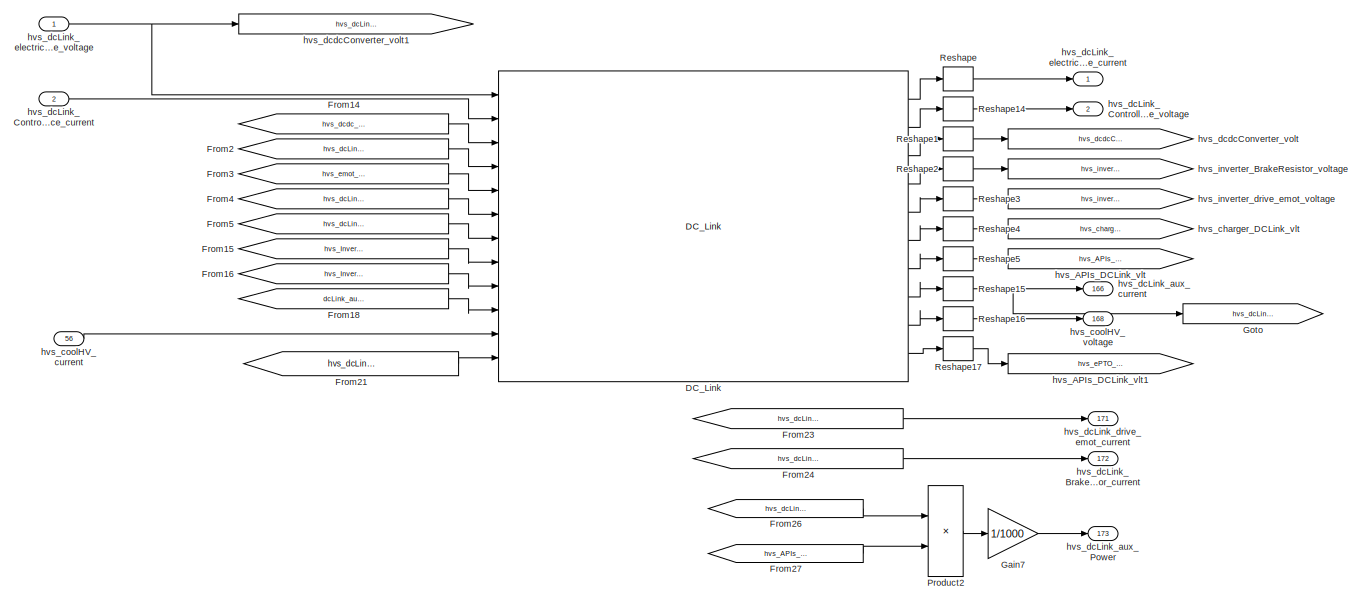
[diagram: hvs_10ms - part 1/17, top center region]
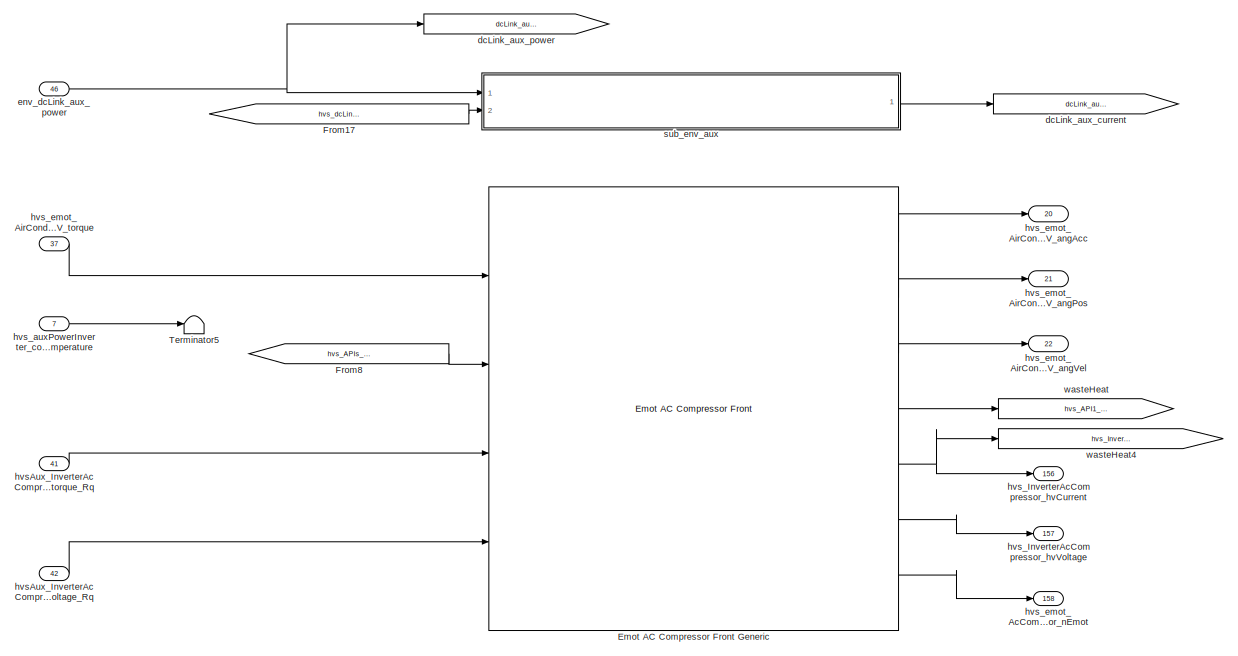
[diagram: hvs_10ms - part 2/17, top center region]
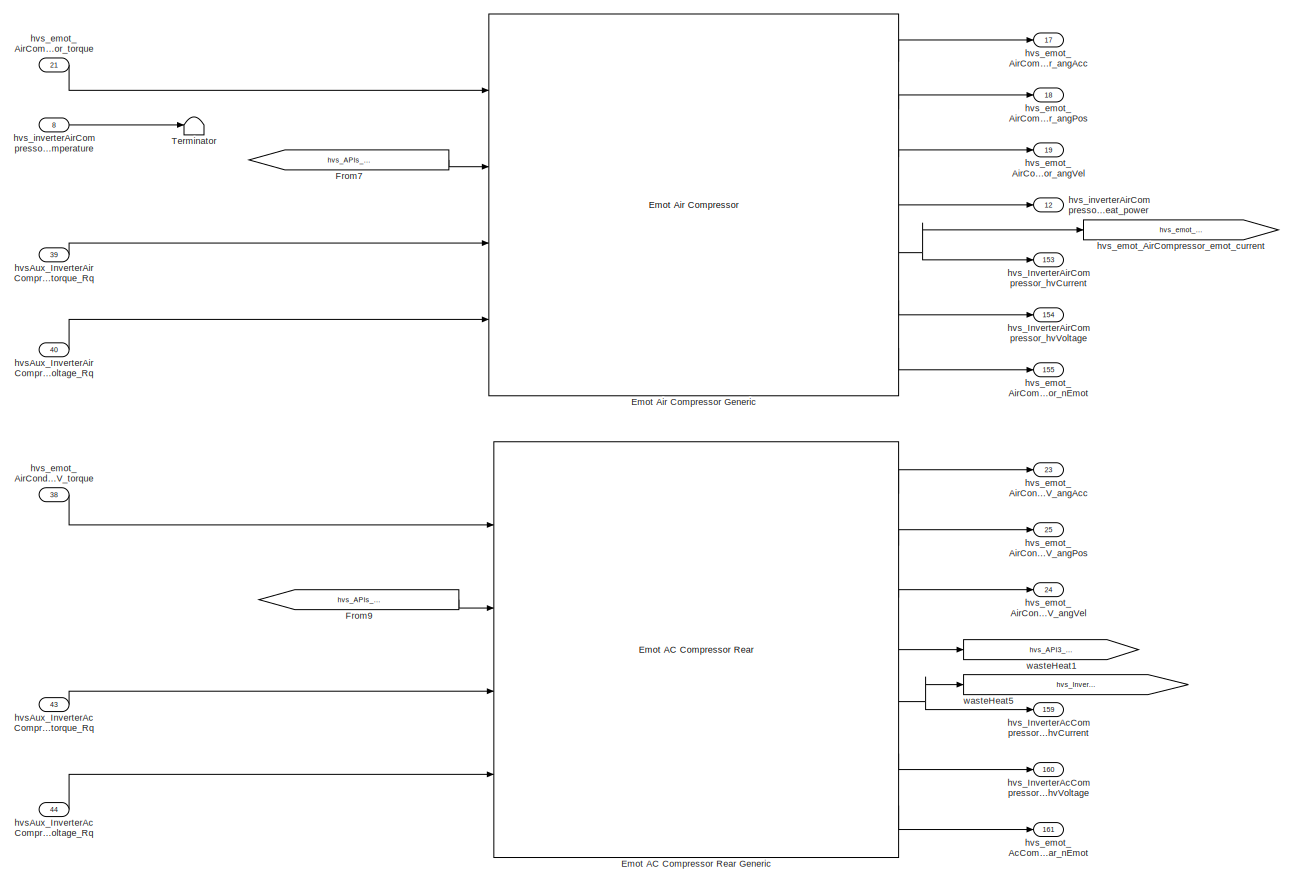
[diagram: hvs_10ms - part 3/17, top center region]
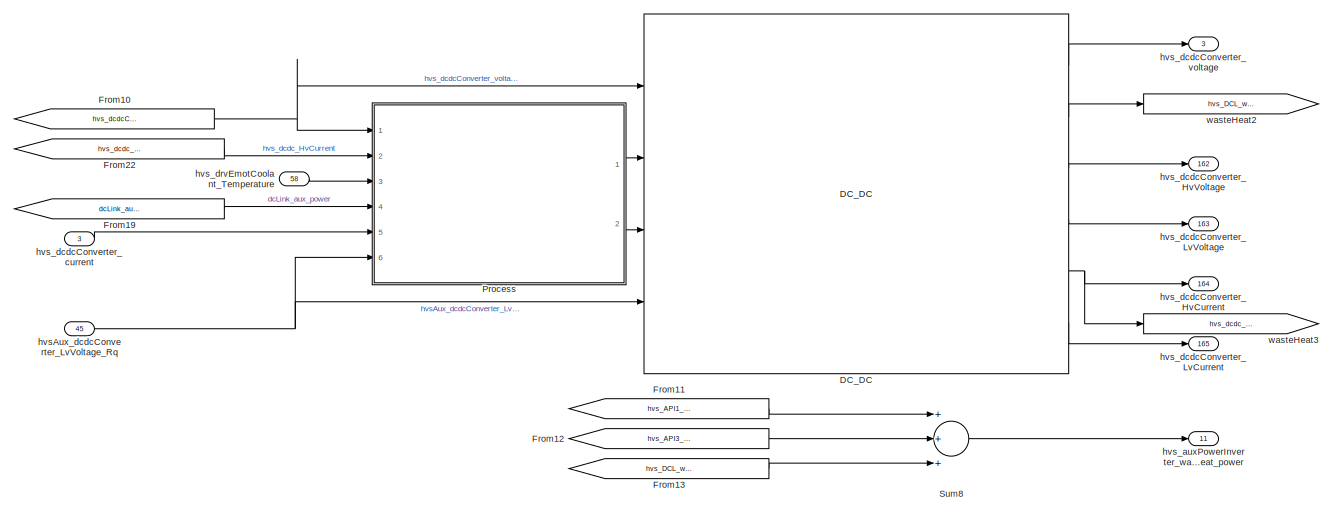
[diagram: hvs_10ms - part 4/17, top left region]
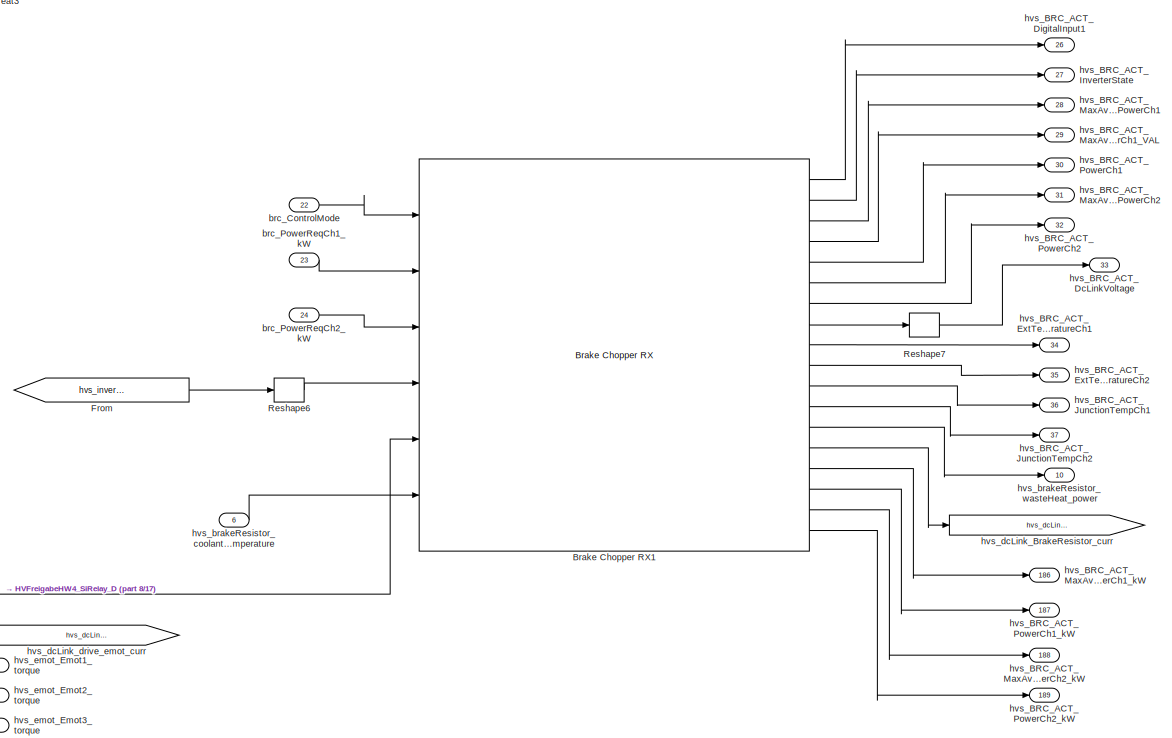
[diagram: hvs_10ms - part 5/17, middle right region]
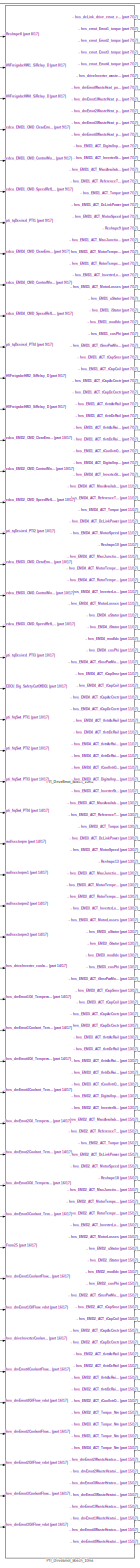
[diagram: hvs_10ms - part 6/17, central region]
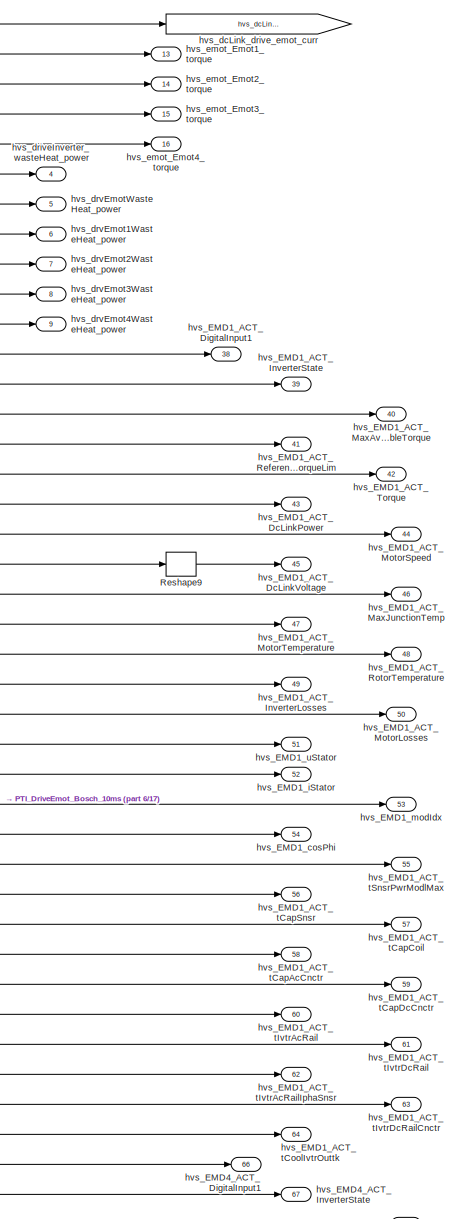
[diagram: hvs_10ms - part 7/17, central region]
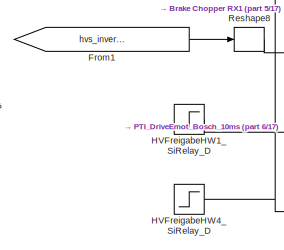
[diagram: hvs_10ms - part 8/17, middle left region]
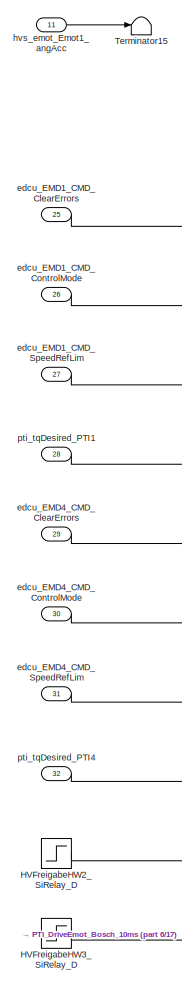
[diagram: hvs_10ms - part 9/17, middle left region]
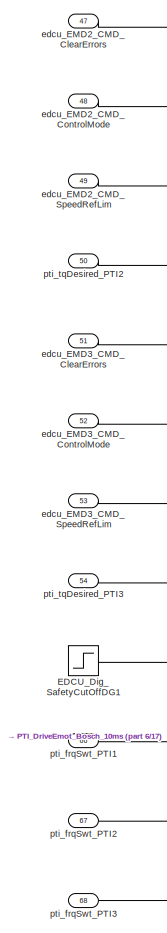
[diagram: hvs_10ms - part 10/17, middle left region]
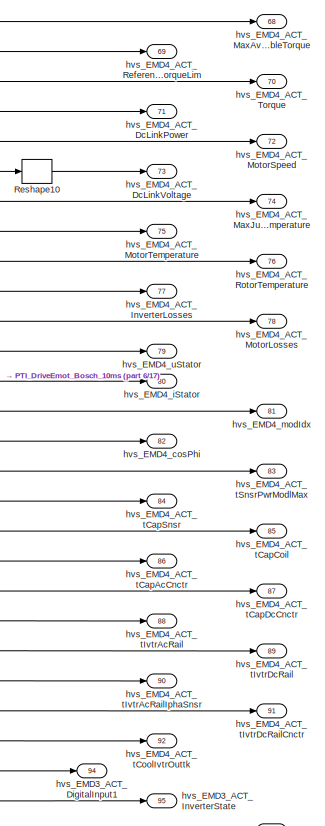
[diagram: hvs_10ms - part 11/17, central region]
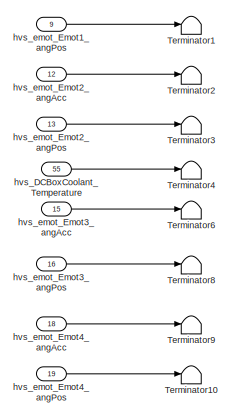
[diagram: hvs_10ms - part 12/17, middle left region]
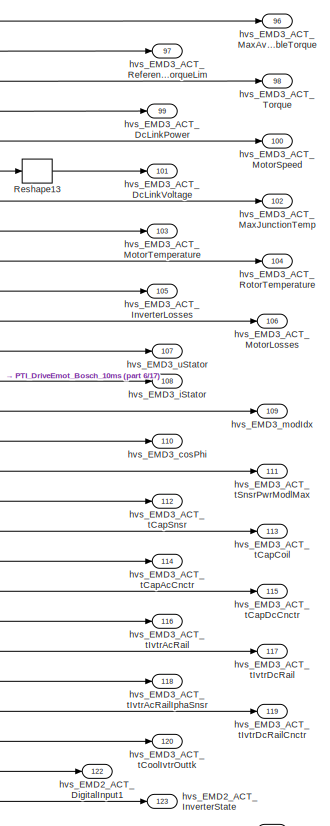
[diagram: hvs_10ms - part 13/17, bottom center region]
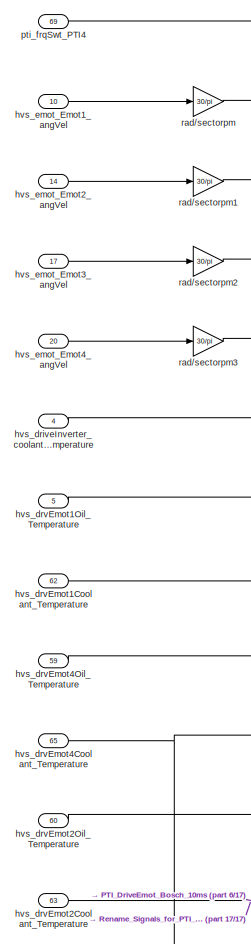
[diagram: hvs_10ms - part 14/17, bottom left region]
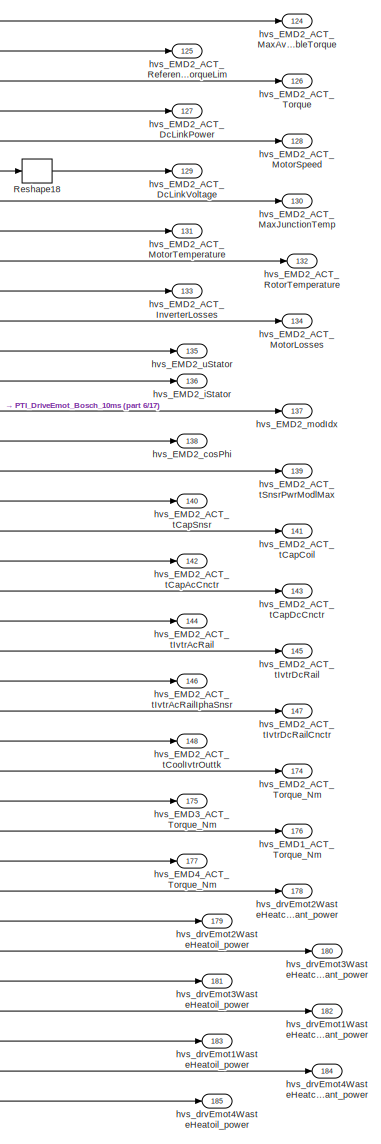
[diagram: hvs_10ms - part 15/17, bottom center region]
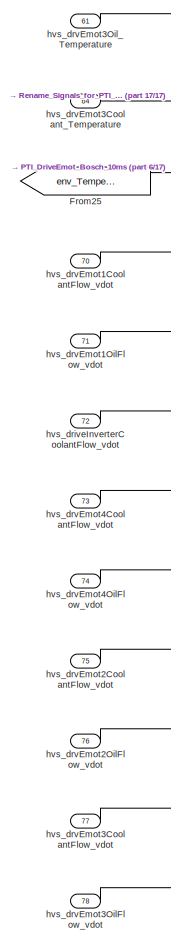
[diagram: hvs_10ms - part 16/17, bottom left region]
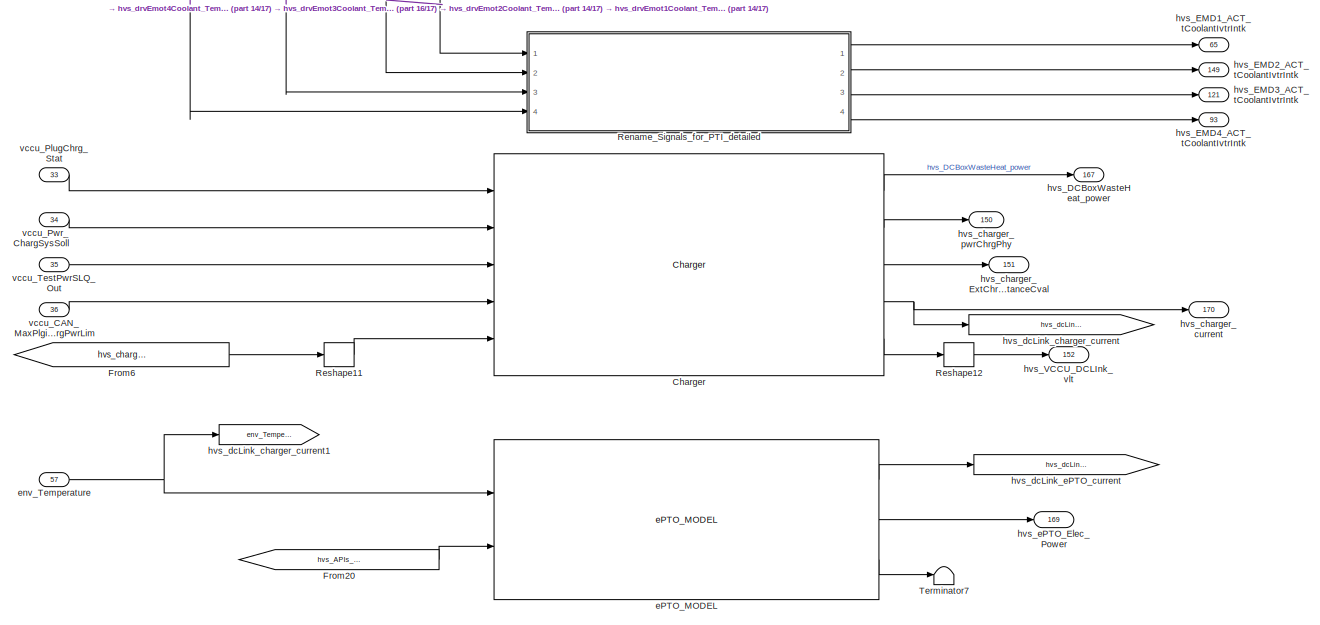
[diagram: hvs_10ms - part 17/17, bottom center region]
BLOCK [SubSystem] hvs_10ms
  Ports = [78, 189]
  RequestExecContextInheritance = off
  Variant = off
BLOCK [Reference] hvs_10ms/Brake Chopper RX1  REF=Electrical_to_Thermal_gen/Brake Chopper RX
  Ports = [6, 18]
  SourceBlock = Electrical_to_Thermal_gen/Brake Chopper RX
  SourceType = SubSystem
BLOCK [Reference] hvs_10ms/Charger  REF=Electrical_charger/Charger
  Ports = [5, 5]
  SourceBlock = Electrical_charger/Charger
  SourceType = SubSystem
BLOCK [Reference] hvs_10ms/DC_DC  REF=Electrical_converter/DC_DC
  Ports = [4, 6]
  SourceBlock = Electrical_converter/DC_DC
  SourceType = SubSystem
BLOCK [Reference] hvs_10ms/DC_Link  REF=Powernet/DC_Link
  Ports = [12, 10]
  SourceBlock = Powernet/DC_Link
  SourceType = SubSystem
BLOCK [Step] hvs_10ms/EDCU_Dig_SafetyCutOffDG1
  Time = 0.812
BLOCK [Reference] hvs_10ms/Emot AC Compressor Front Generic  REF=Electrical_to_Mechanical_gen/Emot AC Compressor Front
  Ports = [4, 7]
  SourceBlock = Electrical_to_Mechanical_gen/Emot AC Compressor Front
  SourceType = SubSystem
BLOCK [Reference] hvs_10ms/Emot AC Compressor Rear Generic  REF=Electrical_to_Mechanical_gen/Emot AC Compressor Rear
  Ports = [4, 7]
  SourceBlock = Electrical_to_Mechanical_gen/Emot AC Compressor Rear
  SourceType = SubSystem
BLOCK [Reference] hvs_10ms/Emot Air Compressor Generic  REF=Electrical_to_Mechanical_gen/Emot Air Compressor
  Ports = [4, 7]
  SourceBlock = Electrical_to_Mechanical_gen/Emot Air Compressor
  SourceType = SubSystem
BLOCK [From] hvs_10ms/From
  GotoTag = hvs_inverter_BrakeResistor_voltage
BLOCK [From] hvs_10ms/From1
  GotoTag = hvs_inverter_drive_emot_voltage
BLOCK [From] hvs_10ms/From10
  GotoTag = hvs_dcdcConverter_voltage
BLOCK [From] hvs_10ms/From11
  GotoTag = hvs_API1_wasteHeat_power
BLOCK [From] hvs_10ms/From12
  GotoTag = hvs_API3_wasteHeat_power
BLOCK [From] hvs_10ms/From13
  GotoTag = hvs_DCL_wasteHeat_power
BLOCK [From] hvs_10ms/From14
  GotoTag = hvs_dcdc_current
BLOCK [From] hvs_10ms/From15
  GotoTag = hvs_InverterAcCompressor_hvCurrent
BLOCK [From] hvs_10ms/From16
  GotoTag = hvs_InverterAcCompressorRear_hvCurrent
BLOCK [From] hvs_10ms/From17
  GotoTag = hvs_dcLink_electricalEnergyStorage_voltage
BLOCK [From] hvs_10ms/From18
  GotoTag = dcLink_aux_current
BLOCK [From] hvs_10ms/From19
  GotoTag = dcLink_aux_power
BLOCK [From] hvs_10ms/From2
  GotoTag = hvs_dcLink_drive_emot_current
BLOCK [From] hvs_10ms/From20
  GotoTag = hvs_APIs_DCLink_vlt
BLOCK [From] hvs_10ms/From21
  GotoTag = hvs_dcLink_ePTO_current
BLOCK [From] hvs_10ms/From22
  GotoTag = hvs_dcdc_current
BLOCK [From] hvs_10ms/From23
  GotoTag = hvs_dcLink_drive_emot_current
BLOCK [From] hvs_10ms/From24
  GotoTag = hvs_dcLink_BrakeResistor_current
BLOCK [From] hvs_10ms/From25
  GotoTag = env_Temperature
BLOCK [From] hvs_10ms/From26
  GotoTag = hvs_dcLink_aux_current
BLOCK [From] hvs_10ms/From27
  GotoTag = hvs_APIs_DCLink_vlt
BLOCK [From] hvs_10ms/From3
  GotoTag = hvs_emot_AirCompressor_emot_current
BLOCK [From] hvs_10ms/From4
  GotoTag = hvs_dcLink_BrakeResistor_current
BLOCK [From] hvs_10ms/From5
  GotoTag = hvs_dcLink_charger_current
BLOCK [From] hvs_10ms/From6
  GotoTag = hvs_charger_DCLink_vlt
BLOCK [From] hvs_10ms/From7
  GotoTag = hvs_APIs_DCLink_vlt
BLOCK [From] hvs_10ms/From8
  GotoTag = hvs_APIs_DCLink_vlt
BLOCK [From] hvs_10ms/From9
  GotoTag = hvs_APIs_DCLink_vlt
BLOCK [Gain] hvs_10ms/Gain7
  Gain = 1/1000
  OutDataTypeStr = Inherit: Inherit via internal rule
  ParamDataTypeStr = Inherit: Inherit via internal rule
  SaturateOnIntegerOverflow = off
BLOCK [Goto] hvs_10ms/Goto
  GotoTag = hvs_dcLink_aux_current
BLOCK [Step] hvs_10ms/HVFreigabeHW1_SiRelay_D
  Time = 5.502
BLOCK [Step] hvs_10ms/HVFreigabeHW2_SiRelay_D
  Time = 5.502
BLOCK [Step] hvs_10ms/HVFreigabeHW3_SiRelay_D
  Time = 5.502
BLOCK [Step] hvs_10ms/HVFreigabeHW4_SiRelay_D
  Time = 5.502
BLOCK [Reference] hvs_10ms/PTI_DriveEmot_Bosch_10ms  REF=Enrg_conv_El_to_Mec_Bosch/PTI_DriveEmot_Bosch_10ms
  Ports = [49, 131]
  SourceBlock = Enrg_conv_El_to_Mec_Bosch/PTI_DriveEmot_Bosch_10ms
  SourceType = SubSystem
BLOCK [SubSystem] hvs_10ms/Process
  Ports = [6, 2]
  RequestExecContextInheritance = off
  Variant = off
BLOCK [Reference] hvs_10ms/Process/Avoid_Div_by_zero  REF=Electrical_converter/DC_DC/Avoid_Div_by_zero
  Ports = [1, 1]
  SourceBlock = Electrical_converter/DC_DC/Avoid_Div_by_zero
  SourceType = SubSystem
BLOCK [Constant] hvs_10ms/Process/Constant
  Value = aux_power_flag
BLOCK [Delay] hvs_10ms/Process/Delay
  DelayLength = 1
  InitialCondition = 0
  InputPortMap = u0
  Ports = [1, 1]
BLOCK [Product] hvs_10ms/Process/Product1
  InputSameDT = off
  Inputs = **
  OutDataTypeStr = Inherit: Inherit via internal rule
  Ports = [2, 1]
  SaturateOnIntegerOverflow = off
BLOCK [Product] hvs_10ms/Process/Product2
  InputSameDT = off
  Inputs = **
  OutDataTypeStr = Inherit: Inherit via internal rule
  Ports = [2, 1]
  SaturateOnIntegerOverflow = off
BLOCK [Switch] hvs_10ms/Process/Switch
  InputSameDT = off
  SaturateOnIntegerOverflow = off
  Threshold = 0.5
BLOCK [Inport] hvs_10ms/Process/dcLink_aux_power
  IconDisplay = Port number
  Port = 4
BLOCK [Outport] hvs_10ms/Process/dcdc_conv_eff
  IconDisplay = Port number
BLOCK [Lookup_n-D] hvs_10ms/Process/dcdc_conv_eff vlt, curr, coolantTemp
  BreakpointsForDimension1 = dcdc_effmap_vlt_1stD
  BreakpointsForDimension2 = dcdc_effmap_cur_2ndD
  BreakpointsForDimension3 = dcdc_effmap_cooltemp_3rdD
  ExtrapMethod = Clip
  NumberOfTableDimensions = 3
  Ports = [3, 1]
  RndMeth = Simplest
  Table = dcdc_effmap
BLOCK [Inport] hvs_10ms/Process/hvsAux_dcdcConv_LvVoltage_Rq
  IconDisplay = Port number
  Port = 6
BLOCK [Inport] hvs_10ms/Process/hvs_dcdcConv_current
  IconDisplay = Port number
  Port = 5
BLOCK [Outport] hvs_10ms/Process/hvs_dcdcConv_current1
  IconDisplay = Port number
  Port = 2
BLOCK [Inport] hvs_10ms/Process/hvs_dcdcConverter_voltage
  IconDisplay = Port number
BLOCK [Inport] hvs_10ms/Process/hvs_dcdc_HvCurrent
  IconDisplay = Port number
  Port = 2
BLOCK [Inport] hvs_10ms/Process/hvs_drvEmotCoolant_Temperature
  IconDisplay = Port number
  Port = 3
BLOCK [Product] hvs_10ms/Product2
  InputSameDT = off
  Inputs = **
  OutDataTypeStr = Inherit: Inherit via internal rule
  Ports = [2, 1]
  SaturateOnIntegerOverflow = off
BLOCK [SubSystem] hvs_10ms/Rename_Signals_for_PTI_detailed
  Ports = [4, 4]
  RequestExecContextInheritance = off
  Variant = off
BLOCK [Outport] hvs_10ms/Rename_Signals_for_PTI_detailed/hvs_EMD1_ACT_tCoolantIvtrIntk
  IconDisplay = Port number
BLOCK [Outport] hvs_10ms/Rename_Signals_for_PTI_detailed/hvs_EMD2_ACT_tCoolantIvtrIntk
  IconDisplay = Port number
  Port = 2
BLOCK [Outport] hvs_10ms/Rename_Signals_for_PTI_detailed/hvs_EMD3_ACT_tCoolantIvtrIntk
  IconDisplay = Port number
  Port = 3
BLOCK [Outport] hvs_10ms/Rename_Signals_for_PTI_detailed/hvs_EMD4_ACT_tCoolantIvtrIntk
  IconDisplay = Port number
  Port = 4
BLOCK [Inport] hvs_10ms/Rename_Signals_for_PTI_detailed/hvs_drvEmot1Coolant_Temperature
  IconDisplay = Port number
BLOCK [Inport] hvs_10ms/Rename_Signals_for_PTI_detailed/hvs_drvEmot2Coolant_Temperature
  IconDisplay = Port number
  Port = 2
BLOCK [Inport] hvs_10ms/Rename_Signals_for_PTI_detailed/hvs_drvEmot3Coolant_Temperature
  IconDisplay = Port number
  Port = 3
BLOCK [Inport] hvs_10ms/Rename_Signals_for_PTI_detailed/hvs_drvEmot4Coolant_Temperature
  IconDisplay = Port number
  Port = 4
BLOCK [Gain] hvs_10ms/Rename_Signals_for_PTI_detailed/rename
  OutDataTypeStr = Inherit: Inherit via internal rule
  ParamDataTypeStr = Inherit: Inherit via internal rule
  SaturateOnIntegerOverflow = off
BLOCK [Gain] hvs_10ms/Rename_Signals_for_PTI_detailed/rename1
  OutDataTypeStr = Inherit: Inherit via internal rule
  ParamDataTypeStr = Inherit: Inherit via internal rule
  SaturateOnIntegerOverflow = off
BLOCK [Gain] hvs_10ms/Rename_Signals_for_PTI_detailed/rename2
  OutDataTypeStr = Inherit: Inherit via internal rule
  ParamDataTypeStr = Inherit: Inherit via internal rule
  SaturateOnIntegerOverflow = off
BLOCK [Gain] hvs_10ms/Rename_Signals_for_PTI_detailed/rename3
  OutDataTypeStr = Inherit: Inherit via internal rule
  ParamDataTypeStr = Inherit: Inherit via internal rule
  SaturateOnIntegerOverflow = off
BLOCK [Reshape] hvs_10ms/Reshape
  Ports = [1, 1]
BLOCK [Reshape] hvs_10ms/Reshape1
  Ports = [1, 1]
BLOCK [Reshape] hvs_10ms/Reshape10
  Ports = [1, 1]
BLOCK [Reshape] hvs_10ms/Reshape11
  Ports = [1, 1]
BLOCK [Reshape] hvs_10ms/Reshape12
  Ports = [1, 1]
BLOCK [Reshape] hvs_10ms/Reshape13
  Ports = [1, 1]
BLOCK [Reshape] hvs_10ms/Reshape14
  Ports = [1, 1]
BLOCK [Reshape] hvs_10ms/Reshape15
  Ports = [1, 1]
BLOCK [Reshape] hvs_10ms/Reshape16
  Ports = [1, 1]
BLOCK [Reshape] hvs_10ms/Reshape17
  Ports = [1, 1]
BLOCK [Reshape] hvs_10ms/Reshape18
  Ports = [1, 1]
BLOCK [Reshape] hvs_10ms/Reshape2
  Ports = [1, 1]
BLOCK [Reshape] hvs_10ms/Reshape3
  Ports = [1, 1]
BLOCK [Reshape] hvs_10ms/Reshape4
  Ports = [1, 1]
BLOCK [Reshape] hvs_10ms/Reshape5
  Ports = [1, 1]
BLOCK [Reshape] hvs_10ms/Reshape6
  Ports = [1, 1]
BLOCK [Reshape] hvs_10ms/Reshape7
  Ports = [1, 1]
BLOCK [Reshape] hvs_10ms/Reshape8
  Ports = [1, 1]
BLOCK [Reshape] hvs_10ms/Reshape9
  Ports = [1, 1]
BLOCK [Sum] hvs_10ms/Sum8
  Inputs = +++
  Ports = [3, 1]
BLOCK [Terminator] hvs_10ms/Terminator
BLOCK [Terminator] hvs_10ms/Terminator1
BLOCK [Terminator] hvs_10ms/Terminator10
BLOCK [Terminator] hvs_10ms/Terminator15
BLOCK [Terminator] hvs_10ms/Terminator2
BLOCK [Terminator] hvs_10ms/Terminator3
BLOCK [Terminator] hvs_10ms/Terminator4
BLOCK [Terminator] hvs_10ms/Terminator5
BLOCK [Terminator] hvs_10ms/Terminator6
BLOCK [Terminator] hvs_10ms/Terminator7
BLOCK [Terminator] hvs_10ms/Terminator8
BLOCK [Terminator] hvs_10ms/Terminator9
BLOCK [Inport] hvs_10ms/brc_ControlMode
  IconDisplay = Port number
  Port = 22
BLOCK [Inport] hvs_10ms/brc_PowerReqCh1_kW
  IconDisplay = Port number
  Port = 23
BLOCK [Inport] hvs_10ms/brc_PowerReqCh2_kW
  IconDisplay = Port number
  Port = 24
BLOCK [Goto] hvs_10ms/dcLink_aux_current
  GotoTag = dcLink_aux_current
BLOCK [Goto] hvs_10ms/dcLink_aux_power
  GotoTag = dcLink_aux_power
BLOCK [Reference] hvs_10ms/ePTO_MODEL  REF=ePTO/ePTO_MODEL
  Ports = [2, 3]
  SourceBlock = ePTO/ePTO_MODEL
  SourceType = SubSystem
BLOCK [Inport] hvs_10ms/edcu_EMD1_CMD_ClearErrors
  IconDisplay = Port number
  Port = 25
BLOCK [Inport] hvs_10ms/edcu_EMD1_CMD_ControlMode
  IconDisplay = Port number
  Port = 26
BLOCK [Inport] hvs_10ms/edcu_EMD1_CMD_SpeedRefLim
  IconDisplay = Port number
  Port = 27
BLOCK [Inport] hvs_10ms/edcu_EMD2_CMD_ClearErrors
  IconDisplay = Port number
  Port = 47
BLOCK [Inport] hvs_10ms/edcu_EMD2_CMD_ControlMode
  IconDisplay = Port number
  Port = 48
BLOCK [Inport] hvs_10ms/edcu_EMD2_CMD_SpeedRefLim
  IconDisplay = Port number
  Port = 49
BLOCK [Inport] hvs_10ms/edcu_EMD3_CMD_ClearErrors
  IconDisplay = Port number
  Port = 51
BLOCK [Inport] hvs_10ms/edcu_EMD3_CMD_ControlMode
  IconDisplay = Port number
  Port = 52
BLOCK [Inport] hvs_10ms/edcu_EMD3_CMD_SpeedRefLim
  IconDisplay = Port number
  Port = 53
BLOCK [Inport] hvs_10ms/edcu_EMD4_CMD_ClearErrors
  IconDisplay = Port number
  Port = 29
BLOCK [Inport] hvs_10ms/edcu_EMD4_CMD_ControlMode
  IconDisplay = Port number
  Port = 30
BLOCK [Inport] hvs_10ms/edcu_EMD4_CMD_SpeedRefLim
  IconDisplay = Port number
  Port = 31
BLOCK [Inport] hvs_10ms/env_Temperature
  IconDisplay = Port number
  Port = 57
BLOCK [Inport] hvs_10ms/env_dcLink_aux_power
  IconDisplay = Port number
  Port = 46
BLOCK [Inport] hvs_10ms/hvsAux_InverterAcCompressorFront_Voltage_Rq
  IconDisplay = Port number
  Port = 42
BLOCK [Inport] hvs_10ms/hvsAux_InverterAcCompressorFront_torque_Rq
  IconDisplay = Port number
  Port = 41
BLOCK [Inport] hvs_10ms/hvsAux_InverterAcCompressorRear_Voltage_Rq
  IconDisplay = Port number
  Port = 44
BLOCK [Inport] hvs_10ms/hvsAux_InverterAcCompressorRear_torque_Rq
  IconDisplay = Port number
  Port = 43
BLOCK [Inport] hvs_10ms/hvsAux_InverterAirCompressor_Voltage_Rq
  IconDisplay = Port number
  Port = 40
BLOCK [Inport] hvs_10ms/hvsAux_InverterAirCompressor_torque_Rq
  IconDisplay = Port number
  Port = 39
BLOCK [Inport] hvs_10ms/hvsAux_dcdcConverter_LvVoltage_Rq
  IconDisplay = Port number
  Port = 45
BLOCK [Goto] hvs_10ms/hvs_APIs_DCLink_vlt
  GotoTag = hvs_APIs_DCLink_vlt
BLOCK [Goto] hvs_10ms/hvs_APIs_DCLink_vlt1
  GotoTag = hvs_ePTO_DCLink_vlt
BLOCK [Outport] hvs_10ms/hvs_BRC_ACT_DcLinkVoltage
  IconDisplay = Port number
  Port = 33
BLOCK [Outport] hvs_10ms/hvs_BRC_ACT_DigitalInput1
  IconDisplay = Port number
  Port = 26
BLOCK [Outport] hvs_10ms/hvs_BRC_ACT_ExtTemperatureCh1
  IconDisplay = Port number
  Port = 34
BLOCK [Outport] hvs_10ms/hvs_BRC_ACT_ExtTemperatureCh2
  IconDisplay = Port number
  Port = 35
BLOCK [Outport] hvs_10ms/hvs_BRC_ACT_InverterState
  IconDisplay = Port number
  Port = 27
BLOCK [Outport] hvs_10ms/hvs_BRC_ACT_JunctionTempCh1
  IconDisplay = Port number
  Port = 36
BLOCK [Outport] hvs_10ms/hvs_BRC_ACT_JunctionTempCh2
  IconDisplay = Port number
  Port = 37
BLOCK [Outport] hvs_10ms/hvs_BRC_ACT_MaxAvailablePowerCh1
  IconDisplay = Port number
  Port = 28
BLOCK [Outport] hvs_10ms/hvs_BRC_ACT_MaxAvailablePowerCh1_VAL
  IconDisplay = Port number
  Port = 29
BLOCK [Outport] hvs_10ms/hvs_BRC_ACT_MaxAvailablePowerCh1_kW
  IconDisplay = Port number
  Port = 186
BLOCK [Outport] hvs_10ms/hvs_BRC_ACT_MaxAvailablePowerCh2
  IconDisplay = Port number
  Port = 31
BLOCK [Outport] hvs_10ms/hvs_BRC_ACT_MaxAvailablePowerCh2_kW
  IconDisplay = Port number
  Port = 188
BLOCK [Outport] hvs_10ms/hvs_BRC_ACT_PowerCh1
  IconDisplay = Port number
  Port = 30
BLOCK [Outport] hvs_10ms/hvs_BRC_ACT_PowerCh1_kW
  IconDisplay = Port number
  Port = 187
BLOCK [Outport] hvs_10ms/hvs_BRC_ACT_PowerCh2
  IconDisplay = Port number
  Port = 32
BLOCK [Outport] hvs_10ms/hvs_BRC_ACT_PowerCh2_kW
  IconDisplay = Port number
  Port = 189
BLOCK [Inport] hvs_10ms/hvs_DCBoxCoolant_Temperature
  IconDisplay = Port number
  Port = 55
BLOCK [Outport] hvs_10ms/hvs_DCBoxWasteHeat_power
  IconDisplay = Port number
  Port = 167
BLOCK [Outport] hvs_10ms/hvs_EMD1_ACT_DcLinkPower
  IconDisplay = Port number
  Port = 43
BLOCK [Outport] hvs_10ms/hvs_EMD1_ACT_DcLinkVoltage
  IconDisplay = Port number
  Port = 45
BLOCK [Outport] hvs_10ms/hvs_EMD1_ACT_DigitalInput1
  IconDisplay = Port number
  Port = 38
BLOCK [Outport] hvs_10ms/hvs_EMD1_ACT_InverterLosses
  IconDisplay = Port number
  Port = 49
BLOCK [Outport] hvs_10ms/hvs_EMD1_ACT_InverterState
  IconDisplay = Port number
  Port = 39
BLOCK [Outport] hvs_10ms/hvs_EMD1_ACT_MaxAvailableTorque
  IconDisplay = Port number
  Port = 40
BLOCK [Outport] hvs_10ms/hvs_EMD1_ACT_MaxJunctionTemp
  IconDisplay = Port number
  Port = 46
BLOCK [Outport] hvs_10ms/hvs_EMD1_ACT_MotorLosses
  IconDisplay = Port number
  Port = 50
BLOCK [Outport] hvs_10ms/hvs_EMD1_ACT_MotorSpeed
  IconDisplay = Port number
  Port = 44
BLOCK [Outport] hvs_10ms/hvs_EMD1_ACT_MotorTemperature
  IconDisplay = Port number
  Port = 47
BLOCK [Outport] hvs_10ms/hvs_EMD1_ACT_ReferenceTorqueLim
  IconDisplay = Port number
  Port = 41
BLOCK [Outport] hvs_10ms/hvs_EMD1_ACT_RotorTemperature
  IconDisplay = Port number
  Port = 48
BLOCK [Outport] hvs_10ms/hvs_EMD1_ACT_Torque
  IconDisplay = Port number
  Port = 42
BLOCK [Outport] hvs_10ms/hvs_EMD1_ACT_Torque_Nm
  IconDisplay = Port number
  Port = 176
BLOCK [Outport] hvs_10ms/hvs_EMD1_ACT_tCapAcCnctr
  IconDisplay = Port number
  Port = 58
BLOCK [Outport] hvs_10ms/hvs_EMD1_ACT_tCapCoil
  IconDisplay = Port number
  Port = 57
BLOCK [Outport] hvs_10ms/hvs_EMD1_ACT_tCapDcCnctr
  IconDisplay = Port number
  Port = 59
BLOCK [Outport] hvs_10ms/hvs_EMD1_ACT_tCapSnsr
  IconDisplay = Port number
  Port = 56
BLOCK [Outport] hvs_10ms/hvs_EMD1_ACT_tCoolIvtrOuttk
  IconDisplay = Port number
  Port = 64
BLOCK [Outport] hvs_10ms/hvs_EMD1_ACT_tCoolantIvtrIntk
  IconDisplay = Port number
  Port = 65
BLOCK [Outport] hvs_10ms/hvs_EMD1_ACT_tIvtrAcRail
  IconDisplay = Port number
  Port = 60
BLOCK [Outport] hvs_10ms/hvs_EMD1_ACT_tIvtrAcRailIphaSnsr
  IconDisplay = Port number
  Port = 62
BLOCK [Outport] hvs_10ms/hvs_EMD1_ACT_tIvtrDcRail
  IconDisplay = Port number
  Port = 61
BLOCK [Outport] hvs_10ms/hvs_EMD1_ACT_tIvtrDcRailCnctr
  IconDisplay = Port number
  Port = 63
BLOCK [Outport] hvs_10ms/hvs_EMD1_ACT_tSnsrPwrModlMax
  IconDisplay = Port number
  Port = 55
BLOCK [Outport] hvs_10ms/hvs_EMD1_cosPhi
  IconDisplay = Port number
  Port = 54
BLOCK [Outport] hvs_10ms/hvs_EMD1_iStator
  IconDisplay = Port number
  Port = 52
BLOCK [Outport] hvs_10ms/hvs_EMD1_modIdx
  IconDisplay = Port number
  Port = 53
BLOCK [Outport] hvs_10ms/hvs_EMD1_uStator
  IconDisplay = Port number
  Port = 51
BLOCK [Outport] hvs_10ms/hvs_EMD2_ACT_DcLinkPower
  IconDisplay = Port number
  Port = 127
BLOCK [Outport] hvs_10ms/hvs_EMD2_ACT_DcLinkVoltage
  IconDisplay = Port number
  Port = 129
BLOCK [Outport] hvs_10ms/hvs_EMD2_ACT_DigitalInput1
  IconDisplay = Port number
  Port = 122
BLOCK [Outport] hvs_10ms/hvs_EMD2_ACT_InverterLosses
  IconDisplay = Port number
  Port = 133
BLOCK [Outport] hvs_10ms/hvs_EMD2_ACT_InverterState
  IconDisplay = Port number
  Port = 123
BLOCK [Outport] hvs_10ms/hvs_EMD2_ACT_MaxAvailableTorque
  IconDisplay = Port number
  Port = 124
BLOCK [Outport] hvs_10ms/hvs_EMD2_ACT_MaxJunctionTemp
  IconDisplay = Port number
  Port = 130
BLOCK [Outport] hvs_10ms/hvs_EMD2_ACT_MotorLosses
  IconDisplay = Port number
  Port = 134
BLOCK [Outport] hvs_10ms/hvs_EMD2_ACT_MotorSpeed
  IconDisplay = Port number
  Port = 128
BLOCK [Outport] hvs_10ms/hvs_EMD2_ACT_MotorTemperature
  IconDisplay = Port number
  Port = 131
BLOCK [Outport] hvs_10ms/hvs_EMD2_ACT_ReferenceTorqueLim
  IconDisplay = Port number
  Port = 125
BLOCK [Outport] hvs_10ms/hvs_EMD2_ACT_RotorTemperature
  IconDisplay = Port number
  Port = 132
BLOCK [Outport] hvs_10ms/hvs_EMD2_ACT_Torque
  IconDisplay = Port number
  Port = 126
BLOCK [Outport] hvs_10ms/hvs_EMD2_ACT_Torque_Nm
  IconDisplay = Port number
  Port = 174
BLOCK [Outport] hvs_10ms/hvs_EMD2_ACT_tCapAcCnctr
  IconDisplay = Port number
  Port = 142
BLOCK [Outport] hvs_10ms/hvs_EMD2_ACT_tCapCoil
  IconDisplay = Port number
  Port = 141
BLOCK [Outport] hvs_10ms/hvs_EMD2_ACT_tCapDcCnctr
  IconDisplay = Port number
  Port = 143
BLOCK [Outport] hvs_10ms/hvs_EMD2_ACT_tCapSnsr
  IconDisplay = Port number
  Port = 140
BLOCK [Outport] hvs_10ms/hvs_EMD2_ACT_tCoolIvtrOuttk
  IconDisplay = Port number
  Port = 148
BLOCK [Outport] hvs_10ms/hvs_EMD2_ACT_tCoolantIvtrIntk
  IconDisplay = Port number
  Port = 149
BLOCK [Outport] hvs_10ms/hvs_EMD2_ACT_tIvtrAcRail
  IconDisplay = Port number
  Port = 144
BLOCK [Outport] hvs_10ms/hvs_EMD2_ACT_tIvtrAcRailIphaSnsr
  IconDisplay = Port number
  Port = 146
BLOCK [Outport] hvs_10ms/hvs_EMD2_ACT_tIvtrDcRail
  IconDisplay = Port number
  Port = 145
BLOCK [Outport] hvs_10ms/hvs_EMD2_ACT_tIvtrDcRailCnctr
  IconDisplay = Port number
  Port = 147
BLOCK [Outport] hvs_10ms/hvs_EMD2_ACT_tSnsrPwrModlMax
  IconDisplay = Port number
  Port = 139
BLOCK [Outport] hvs_10ms/hvs_EMD2_cosPhi
  IconDisplay = Port number
  Port = 138
BLOCK [Outport] hvs_10ms/hvs_EMD2_iStator
  IconDisplay = Port number
  Port = 136
BLOCK [Outport] hvs_10ms/hvs_EMD2_modIdx
  IconDisplay = Port number
  Port = 137
BLOCK [Outport] hvs_10ms/hvs_EMD2_uStator
  IconDisplay = Port number
  Port = 135
BLOCK [Outport] hvs_10ms/hvs_EMD3_ACT_DcLinkPower
  IconDisplay = Port number
  Port = 99
BLOCK [Outport] hvs_10ms/hvs_EMD3_ACT_DcLinkVoltage
  IconDisplay = Port number
  Port = 101
BLOCK [Outport] hvs_10ms/hvs_EMD3_ACT_DigitalInput1
  IconDisplay = Port number
  Port = 94
BLOCK [Outport] hvs_10ms/hvs_EMD3_ACT_InverterLosses
  IconDisplay = Port number
  Port = 105
BLOCK [Outport] hvs_10ms/hvs_EMD3_ACT_InverterState
  IconDisplay = Port number
  Port = 95
BLOCK [Outport] hvs_10ms/hvs_EMD3_ACT_MaxAvailableTorque
  IconDisplay = Port number
  Port = 96
BLOCK [Outport] hvs_10ms/hvs_EMD3_ACT_MaxJunctionTemp
  IconDisplay = Port number
  Port = 102
BLOCK [Outport] hvs_10ms/hvs_EMD3_ACT_MotorLosses
  IconDisplay = Port number
  Port = 106
BLOCK [Outport] hvs_10ms/hvs_EMD3_ACT_MotorSpeed
  IconDisplay = Port number
  Port = 100
BLOCK [Outport] hvs_10ms/hvs_EMD3_ACT_MotorTemperature
  IconDisplay = Port number
  Port = 103
BLOCK [Outport] hvs_10ms/hvs_EMD3_ACT_ReferenceTorqueLim
  IconDisplay = Port number
  Port = 97
BLOCK [Outport] hvs_10ms/hvs_EMD3_ACT_RotorTemperature
  IconDisplay = Port number
  Port = 104
BLOCK [Outport] hvs_10ms/hvs_EMD3_ACT_Torque
  IconDisplay = Port number
  Port = 98
BLOCK [Outport] hvs_10ms/hvs_EMD3_ACT_Torque_Nm
  IconDisplay = Port number
  Port = 175
BLOCK [Outport] hvs_10ms/hvs_EMD3_ACT_tCapAcCnctr
  IconDisplay = Port number
  Port = 114
BLOCK [Outport] hvs_10ms/hvs_EMD3_ACT_tCapCoil
  IconDisplay = Port number
  Port = 113
BLOCK [Outport] hvs_10ms/hvs_EMD3_ACT_tCapDcCnctr
  IconDisplay = Port number
  Port = 115
BLOCK [Outport] hvs_10ms/hvs_EMD3_ACT_tCapSnsr
  IconDisplay = Port number
  Port = 112
BLOCK [Outport] hvs_10ms/hvs_EMD3_ACT_tCoolIvtrOuttk
  IconDisplay = Port number
  Port = 120
BLOCK [Outport] hvs_10ms/hvs_EMD3_ACT_tCoolantIvtrIntk
  IconDisplay = Port number
  Port = 121
BLOCK [Outport] hvs_10ms/hvs_EMD3_ACT_tIvtrAcRail
  IconDisplay = Port number
  Port = 116
BLOCK [Outport] hvs_10ms/hvs_EMD3_ACT_tIvtrAcRailIphaSnsr
  IconDisplay = Port number
  Port = 118
BLOCK [Outport] hvs_10ms/hvs_EMD3_ACT_tIvtrDcRail
  IconDisplay = Port number
  Port = 117
BLOCK [Outport] hvs_10ms/hvs_EMD3_ACT_tIvtrDcRailCnctr
  IconDisplay = Port number
  Port = 119
BLOCK [Outport] hvs_10ms/hvs_EMD3_ACT_tSnsrPwrModlMax
  IconDisplay = Port number
  Port = 111
BLOCK [Outport] hvs_10ms/hvs_EMD3_cosPhi
  IconDisplay = Port number
  Port = 110
BLOCK [Outport] hvs_10ms/hvs_EMD3_iStator
  IconDisplay = Port number
  Port = 108
BLOCK [Outport] hvs_10ms/hvs_EMD3_modIdx
  IconDisplay = Port number
  Port = 109
BLOCK [Outport] hvs_10ms/hvs_EMD3_uStator
  IconDisplay = Port number
  Port = 107
BLOCK [Outport] hvs_10ms/hvs_EMD4_ACT_DcLinkPower
  IconDisplay = Port number
  Port = 71
BLOCK [Outport] hvs_10ms/hvs_EMD4_ACT_DcLinkVoltage
  IconDisplay = Port number
  Port = 73
BLOCK [Outport] hvs_10ms/hvs_EMD4_ACT_DigitalInput1
  IconDisplay = Port number
  Port = 66
BLOCK [Outport] hvs_10ms/hvs_EMD4_ACT_InverterLosses
  IconDisplay = Port number
  Port = 77
BLOCK [Outport] hvs_10ms/hvs_EMD4_ACT_InverterState
  IconDisplay = Port number
  Port = 67
BLOCK [Outport] hvs_10ms/hvs_EMD4_ACT_MaxAvailableTorque
  IconDisplay = Port number
  Port = 68
BLOCK [Outport] hvs_10ms/hvs_EMD4_ACT_MaxJunctionTemperature
  IconDisplay = Port number
  Port = 74
BLOCK [Outport] hvs_10ms/hvs_EMD4_ACT_MotorLosses
  IconDisplay = Port number
  Port = 78
BLOCK [Outport] hvs_10ms/hvs_EMD4_ACT_MotorSpeed
  IconDisplay = Port number
  Port = 72
BLOCK [Outport] hvs_10ms/hvs_EMD4_ACT_MotorTemperature
  IconDisplay = Port number
  Port = 75
BLOCK [Outport] hvs_10ms/hvs_EMD4_ACT_ReferenceTorqueLim
  IconDisplay = Port number
  Port = 69
BLOCK [Outport] hvs_10ms/hvs_EMD4_ACT_RotorTemperature
  IconDisplay = Port number
  Port = 76
BLOCK [Outport] hvs_10ms/hvs_EMD4_ACT_Torque
  IconDisplay = Port number
  Port = 70
BLOCK [Outport] hvs_10ms/hvs_EMD4_ACT_Torque_Nm
  IconDisplay = Port number
  Port = 177
BLOCK [Outport] hvs_10ms/hvs_EMD4_ACT_tCapAcCnctr
  IconDisplay = Port number
  Port = 86
BLOCK [Outport] hvs_10ms/hvs_EMD4_ACT_tCapCoil
  IconDisplay = Port number
  Port = 85
BLOCK [Outport] hvs_10ms/hvs_EMD4_ACT_tCapDcCnctr
  IconDisplay = Port number
  Port = 87
BLOCK [Outport] hvs_10ms/hvs_EMD4_ACT_tCapSnsr
  IconDisplay = Port number
  Port = 84
BLOCK [Outport] hvs_10ms/hvs_EMD4_ACT_tCoolIvtrOuttk
  IconDisplay = Port number
  Port = 92
BLOCK [Outport] hvs_10ms/hvs_EMD4_ACT_tCoolantIvtrIntk
  IconDisplay = Port number
  Port = 93
BLOCK [Outport] hvs_10ms/hvs_EMD4_ACT_tIvtrAcRail
  IconDisplay = Port number
  Port = 88
BLOCK [Outport] hvs_10ms/hvs_EMD4_ACT_tIvtrAcRailIphaSnsr
  IconDisplay = Port number
  Port = 90
BLOCK [Outport] hvs_10ms/hvs_EMD4_ACT_tIvtrDcRail
  IconDisplay = Port number
  Port = 89
BLOCK [Outport] hvs_10ms/hvs_EMD4_ACT_tIvtrDcRailCnctr
  IconDisplay = Port number
  Port = 91
BLOCK [Outport] hvs_10ms/hvs_EMD4_ACT_tSnsrPwrModlMax
  IconDisplay = Port number
  Port = 83
BLOCK [Outport] hvs_10ms/hvs_EMD4_cosPhi
  IconDisplay = Port number
  Port = 82
BLOCK [Outport] hvs_10ms/hvs_EMD4_iStator
  IconDisplay = Port number
  Port = 80
BLOCK [Outport] hvs_10ms/hvs_EMD4_modIdx
  IconDisplay = Port number
  Port = 81
BLOCK [Outport] hvs_10ms/hvs_EMD4_uStator
  IconDisplay = Port number
  Port = 79
BLOCK [Outport] hvs_10ms/hvs_InverterAcCompressorRear_hvCurrent
  IconDisplay = Port number
  Port = 159
BLOCK [Outport] hvs_10ms/hvs_InverterAcCompressorRear_hvVoltage
  IconDisplay = Port number
  Port = 160
BLOCK [Outport] hvs_10ms/hvs_InverterAcCompressor_hvCurrent
  IconDisplay = Port number
  Port = 156
BLOCK [Outport] hvs_10ms/hvs_InverterAcCompressor_hvVoltage
  IconDisplay = Port number
  Port = 157
BLOCK [Outport] hvs_10ms/hvs_InverterAirCompressor_hvCurrent
  IconDisplay = Port number
  Port = 153
BLOCK [Outport] hvs_10ms/hvs_InverterAirCompressor_hvVoltage
  IconDisplay = Port number
  Port = 154
BLOCK [Outport] hvs_10ms/hvs_VCCU_DCLInk_vlt
  IconDisplay = Port number
  Port = 152
BLOCK [Inport] hvs_10ms/hvs_auxPowerInverter_coolant_temperature
  IconDisplay = Port number
  Port = 7
BLOCK [Outport] hvs_10ms/hvs_auxPowerInverter_wasteHeat_power
  IconDisplay = Port number
  Port = 11
BLOCK [Inport] hvs_10ms/hvs_brakeResistor_coolant_temperature
  IconDisplay = Port number
  Port = 6
BLOCK [Outport] hvs_10ms/hvs_brakeResistor_wasteHeat_power
  IconDisplay = Port number
  Port = 10
BLOCK [Goto] hvs_10ms/hvs_charger_DCLink_vlt
  GotoTag = hvs_charger_DCLink_vlt
BLOCK [Outport] hvs_10ms/hvs_charger_ExtChrgr_Isolation_ResistanceCval
  IconDisplay = Port number
  Port = 151
BLOCK [Outport] hvs_10ms/hvs_charger_current
  IconDisplay = Port number
  Port = 170
BLOCK [Outport] hvs_10ms/hvs_charger_pwrChrgPhy
  IconDisplay = Port number
  Port = 150
BLOCK [Inport] hvs_10ms/hvs_coolHV_current
  IconDisplay = Port number
  Port = 56
BLOCK [Outport] hvs_10ms/hvs_coolHV_voltage
  IconDisplay = Port number
  Port = 168
BLOCK [Goto] hvs_10ms/hvs_dcLink_BrakeResistor_curr
  GotoTag = hvs_dcLink_BrakeResistor_current
BLOCK [Outport] hvs_10ms/hvs_dcLink_BrakeResistor_current
  IconDisplay = Port number
  Port = 172
BLOCK [Inport] hvs_10ms/hvs_dcLink_ControllableEnergySource_current
  IconDisplay = Port number
  Port = 2
BLOCK [Outport] hvs_10ms/hvs_dcLink_ControllableEnergySource_voltage
  IconDisplay = Port number
  Port = 2
BLOCK [Outport] hvs_10ms/hvs_dcLink_aux_Power
  IconDisplay = Port number
  Port = 173
BLOCK [Outport] hvs_10ms/hvs_dcLink_aux_current
  IconDisplay = Port number
  Port = 166
BLOCK [Goto] hvs_10ms/hvs_dcLink_charger_current
  GotoTag = hvs_dcLink_charger_current
BLOCK [Goto] hvs_10ms/hvs_dcLink_charger_current1
  GotoTag = env_Temperature
BLOCK [Goto] hvs_10ms/hvs_dcLink_drive_emot_curr
  GotoTag = hvs_dcLink_drive_emot_current
BLOCK [Outport] hvs_10ms/hvs_dcLink_drive_emot_current
  IconDisplay = Port number
  Port = 171
BLOCK [Goto] hvs_10ms/hvs_dcLink_ePTO_current
  GotoTag = hvs_dcLink_ePTO_current
BLOCK [Outport] hvs_10ms/hvs_dcLink_electricalEnergyStorage_current
  IconDisplay = Port number
BLOCK [Inport] hvs_10ms/hvs_dcLink_electricalEnergyStorage_voltage
  IconDisplay = Port number
BLOCK [Outport] hvs_10ms/hvs_dcdcConverter_HvCurrent
  IconDisplay = Port number
  Port = 164
BLOCK [Outport] hvs_10ms/hvs_dcdcConverter_HvVoltage
  IconDisplay = Port number
  Port = 162
BLOCK [Outport] hvs_10ms/hvs_dcdcConverter_LvCurrent
  IconDisplay = Port number
  Port = 165
BLOCK [Outport] hvs_10ms/hvs_dcdcConverter_LvVoltage
  IconDisplay = Port number
  Port = 163
BLOCK [Inport] hvs_10ms/hvs_dcdcConverter_current
  IconDisplay = Port number
  Port = 3
BLOCK [Goto] hvs_10ms/hvs_dcdcConverter_volt
  GotoTag = hvs_dcdcConverter_voltage
BLOCK [Goto] hvs_10ms/hvs_dcdcConverter_volt1
  GotoTag = hvs_dcLink_electricalEnergyStorage_voltage
BLOCK [Outport] hvs_10ms/hvs_dcdcConverter_voltage
  IconDisplay = Port number
  Port = 3
BLOCK [Inport] hvs_10ms/hvs_driveInverterCoolantFlow_vdot
  IconDisplay = Port number
  Port = 72
BLOCK [Inport] hvs_10ms/hvs_driveInverter_coolant_temperature
  IconDisplay = Port number
  Port = 4
BLOCK [Outport] hvs_10ms/hvs_driveInverter_wasteHeat_power
  IconDisplay = Port number
  Port = 4
BLOCK [Inport] hvs_10ms/hvs_drvEmot1CoolantFlow_vdot
  IconDisplay = Port number
  Port = 70
BLOCK [Inport] hvs_10ms/hvs_drvEmot1Coolant_Temperature
  IconDisplay = Port number
  Port = 62
BLOCK [Inport] hvs_10ms/hvs_drvEmot1OilFlow_vdot
  IconDisplay = Port number
  Port = 71
BLOCK [Inport] hvs_10ms/hvs_drvEmot1Oil_Temperature
  IconDisplay = Port number
  Port = 5
BLOCK [Outport] hvs_10ms/hvs_drvEmot1WasteHeat_power
  IconDisplay = Port number
  Port = 6
BLOCK [Outport] hvs_10ms/hvs_drvEmot1WasteHeatcoolant_power
  IconDisplay = Port number
  Port = 182
BLOCK [Outport] hvs_10ms/hvs_drvEmot1WasteHeatoil_power
  IconDisplay = Port number
  Port = 183
BLOCK [Inport] hvs_10ms/hvs_drvEmot2CoolantFlow_vdot
  IconDisplay = Port number
  Port = 75
BLOCK [Inport] hvs_10ms/hvs_drvEmot2Coolant_Temperature
  IconDisplay = Port number
  Port = 63
BLOCK [Inport] hvs_10ms/hvs_drvEmot2OilFlow_vdot
  IconDisplay = Port number
  Port = 76
BLOCK [Inport] hvs_10ms/hvs_drvEmot2Oil_Temperature
  IconDisplay = Port number
  Port = 60
BLOCK [Outport] hvs_10ms/hvs_drvEmot2WasteHeat_power
  IconDisplay = Port number
  Port = 7
BLOCK [Outport] hvs_10ms/hvs_drvEmot2WasteHeatcoolant_power
  IconDisplay = Port number
  Port = 178
BLOCK [Outport] hvs_10ms/hvs_drvEmot2WasteHeatoil_power
  IconDisplay = Port number
  Port = 179
BLOCK [Inport] hvs_10ms/hvs_drvEmot3CoolantFlow_vdot
  IconDisplay = Port number
  Port = 77
BLOCK [Inport] hvs_10ms/hvs_drvEmot3Coolant_Temperature
  IconDisplay = Port number
  Port = 64
BLOCK [Inport] hvs_10ms/hvs_drvEmot3OilFlow_vdot
  IconDisplay = Port number
  Port = 78
BLOCK [Inport] hvs_10ms/hvs_drvEmot3Oil_Temperature
  IconDisplay = Port number
  Port = 61
BLOCK [Outport] hvs_10ms/hvs_drvEmot3WasteHeat_power
  IconDisplay = Port number
  Port = 8
BLOCK [Outport] hvs_10ms/hvs_drvEmot3WasteHeatcoolant_power
  IconDisplay = Port number
  Port = 180
BLOCK [Outport] hvs_10ms/hvs_drvEmot3WasteHeatoil_power
  IconDisplay = Port number
  Port = 181
BLOCK [Inport] hvs_10ms/hvs_drvEmot4CoolantFlow_vdot
  IconDisplay = Port number
  Port = 73
BLOCK [Inport] hvs_10ms/hvs_drvEmot4Coolant_Temperature
  IconDisplay = Port number
  Port = 65
BLOCK [Inport] hvs_10ms/hvs_drvEmot4OilFlow_vdot
  IconDisplay = Port number
  Port = 74
BLOCK [Inport] hvs_10ms/hvs_drvEmot4Oil_Temperature
  IconDisplay = Port number
  Port = 59
BLOCK [Outport] hvs_10ms/hvs_drvEmot4WasteHeat_power
  IconDisplay = Port number
  Port = 9
BLOCK [Outport] hvs_10ms/hvs_drvEmot4WasteHeatcoolant_power
  IconDisplay = Port number
  Port = 184
BLOCK [Outport] hvs_10ms/hvs_drvEmot4WasteHeatoil_power
  IconDisplay = Port number
  Port = 185
BLOCK [Inport] hvs_10ms/hvs_drvEmotCoolant_Temperature
  IconDisplay = Port number
  Port = 58
BLOCK [Outport] hvs_10ms/hvs_drvEmotWasteHeat_power
  IconDisplay = Port number
  Port = 5
BLOCK [Outport] hvs_10ms/hvs_ePTO_Elec_Power
  IconDisplay = Port number
  Port = 169
BLOCK [Outport] hvs_10ms/hvs_emot_AcCompressorRear_nEmot
  IconDisplay = Port number
  Port = 161
BLOCK [Outport] hvs_10ms/hvs_emot_AcCompressor_nEmot
  IconDisplay = Port number
  Port = 158
BLOCK [Outport] hvs_10ms/hvs_emot_AirCompressor_angAcc
  IconDisplay = Port number
  Port = 17
BLOCK [Outport] hvs_10ms/hvs_emot_AirCompressor_angPos
  IconDisplay = Port number
  Port = 18
BLOCK [Outport] hvs_10ms/hvs_emot_AirCompressor_angVel
  IconDisplay = Port number
  Port = 19
BLOCK [Goto] hvs_10ms/hvs_emot_AirCompressor_emot_current
  GotoTag = hvs_emot_AirCompressor_emot_current
BLOCK [Outport] hvs_10ms/hvs_emot_AirCompressor_nEmot
  IconDisplay = Port number
  Port = 155
BLOCK [Inport] hvs_10ms/hvs_emot_AirCompressor_torque
  IconDisplay = Port number
  Port = 21
BLOCK [Outport] hvs_10ms/hvs_emot_AirCondFrontHV_angAcc
  IconDisplay = Port number
  Port = 20
BLOCK [Outport] hvs_10ms/hvs_emot_AirCondFrontHV_angPos
  IconDisplay = Port number
  Port = 21
BLOCK [Outport] hvs_10ms/hvs_emot_AirCondFrontHV_angVel
  IconDisplay = Port number
  Port = 22
BLOCK [Inport] hvs_10ms/hvs_emot_AirCondFrontHV_torque
  IconDisplay = Port number
  Port = 37
BLOCK [Outport] hvs_10ms/hvs_emot_AirCondRearHV_angAcc
  IconDisplay = Port number
  Port = 23
BLOCK [Outport] hvs_10ms/hvs_emot_AirCondRearHV_angPos
  IconDisplay = Port number
  Port = 25
BLOCK [Outport] hvs_10ms/hvs_emot_AirCondRearHV_angVel
  IconDisplay = Port number
  Port = 24
BLOCK [Inport] hvs_10ms/hvs_emot_AirCondRearHV_torque
  IconDisplay = Port number
  Port = 38
BLOCK [Inport] hvs_10ms/hvs_emot_Emot1_angAcc
  IconDisplay = Port number
  Port = 11
BLOCK [Inport] hvs_10ms/hvs_emot_Emot1_angPos
  IconDisplay = Port number
  Port = 9
BLOCK [Inport] hvs_10ms/hvs_emot_Emot1_angVel
  IconDisplay = Port number
  Port = 10
BLOCK [Outport] hvs_10ms/hvs_emot_Emot1_torque
  IconDisplay = Port number
  Port = 13
BLOCK [Inport] hvs_10ms/hvs_emot_Emot2_angAcc
  IconDisplay = Port number
  Port = 12
BLOCK [Inport] hvs_10ms/hvs_emot_Emot2_angPos
  IconDisplay = Port number
  Port = 13
BLOCK [Inport] hvs_10ms/hvs_emot_Emot2_angVel
  IconDisplay = Port number
  Port = 14
BLOCK [Outport] hvs_10ms/hvs_emot_Emot2_torque
  IconDisplay = Port number
  Port = 14
BLOCK [Inport] hvs_10ms/hvs_emot_Emot3_angAcc
  IconDisplay = Port number
  Port = 15
BLOCK [Inport] hvs_10ms/hvs_emot_Emot3_angPos
  IconDisplay = Port number
  Port = 16
BLOCK [Inport] hvs_10ms/hvs_emot_Emot3_angVel
  IconDisplay = Port number
  Port = 17
BLOCK [Outport] hvs_10ms/hvs_emot_Emot3_torque
  IconDisplay = Port number
  Port = 15
BLOCK [Inport] hvs_10ms/hvs_emot_Emot4_angAcc
  IconDisplay = Port number
  Port = 18
BLOCK [Inport] hvs_10ms/hvs_emot_Emot4_angPos
  IconDisplay = Port number
  Port = 19
BLOCK [Inport] hvs_10ms/hvs_emot_Emot4_angVel
  IconDisplay = Port number
  Port = 20
BLOCK [Outport] hvs_10ms/hvs_emot_Emot4_torque
  IconDisplay = Port number
  Port = 16
BLOCK [Inport] hvs_10ms/hvs_inverterAirCompressor_coolant_temperature
  IconDisplay = Port number
  Port = 8
BLOCK [Outport] hvs_10ms/hvs_inverterAirCompressor_wasteHeat_power
  IconDisplay = Port number
  Port = 12
BLOCK [Goto] hvs_10ms/hvs_inverter_BrakeResistor_voltage
  GotoTag = hvs_inverter_BrakeResistor_voltage
BLOCK [Goto] hvs_10ms/hvs_inverter_drive_emot_voltage
  GotoTag = hvs_inverter_drive_emot_voltage
BLOCK [Inport] hvs_10ms/pti_frqSwt_PTI1
  IconDisplay = Port number
  Port = 66
BLOCK [Inport] hvs_10ms/pti_frqSwt_PTI2
  IconDisplay = Port number
  Port = 67
BLOCK [Inport] hvs_10ms/pti_frqSwt_PTI3
  IconDisplay = Port number
  Port = 68
BLOCK [Inport] hvs_10ms/pti_frqSwt_PTI4
  IconDisplay = Port number
  Port = 69
BLOCK [Inport] hvs_10ms/pti_tqDesired_PTI1
  IconDisplay = Port number
  Port = 28
BLOCK [Inport] hvs_10ms/pti_tqDesired_PTI2
  IconDisplay = Port number
  Port = 50
BLOCK [Inport] hvs_10ms/pti_tqDesired_PTI3
  IconDisplay = Port number
  Port = 54
BLOCK [Inport] hvs_10ms/pti_tqDesired_PTI4
  IconDisplay = Port number
  Port = 32
BLOCK [Gain] hvs_10ms/rad//sectorpm
  Gain = 30/pi
  OutDataTypeStr = Inherit: Inherit via internal rule
  ParamDataTypeStr = Inherit: Inherit via internal rule
  SaturateOnIntegerOverflow = off
BLOCK [Gain] hvs_10ms/rad//sectorpm1
  Gain = 30/pi
  OutDataTypeStr = Inherit: Inherit via internal rule
  ParamDataTypeStr = Inherit: Inherit via internal rule
  SaturateOnIntegerOverflow = off
BLOCK [Gain] hvs_10ms/rad//sectorpm2
  Gain = 30/pi
  OutDataTypeStr = Inherit: Inherit via internal rule
  ParamDataTypeStr = Inherit: Inherit via internal rule
  SaturateOnIntegerOverflow = off
BLOCK [Gain] hvs_10ms/rad//sectorpm3
  Gain = 30/pi
  OutDataTypeStr = Inherit: Inherit via internal rule
  ParamDataTypeStr = Inherit: Inherit via internal rule
  SaturateOnIntegerOverflow = off
BLOCK [SubSystem] hvs_10ms/sub_env_aux
  Ports = [2, 1]
  RequestExecContextInheritance = off
  Variant = off
BLOCK [SubSystem] hvs_10ms/sub_env_aux/Avoid_Div_by_zero
  Ports = [1, 1]
  RequestExecContextInheritance = off
  Variant = off
BLOCK [Outport] hvs_10ms/sub_env_aux/Avoid_Div_by_zero/1//U
  IconDisplay = Port number
BLOCK [Constant] hvs_10ms/sub_env_aux/Avoid_Div_by_zero/Constant
  Value = 10^-6
BLOCK [Product] hvs_10ms/sub_env_aux/Avoid_Div_by_zero/Divide
  InputSameDT = off
  Inputs = /*
  OutDataTypeStr = Inherit: Inherit via internal rule
  Ports = [2, 1]
  RndMeth = Floor
  SaturateOnIntegerOverflow = off
BLOCK [Math] hvs_10ms/sub_env_aux/Avoid_Div_by_zero/Math Function
  Operator = square
  Ports = [1, 1]
BLOCK [Sum] hvs_10ms/sub_env_aux/Avoid_Div_by_zero/Sum
  IconShape = round
  InputSameDT = off
  Inputs = ++|
  OutDataTypeStr = Inherit: Inherit via internal rule
  Ports = [2, 1]
  SaturateOnIntegerOverflow = off
BLOCK [Inport] hvs_10ms/sub_env_aux/Avoid_Div_by_zero/U
  IconDisplay = Port number
BLOCK [Reference] hvs_10ms/sub_env_aux/Compare To Constant  REF=simulink/Logic and Bit
Operations/Compare
To Constant
  Ports = [1, 1]
  SourceBlock = simulink/Logic and Bit\nOperations/Compare\nTo Constant
  SourceType = Compare To Constant
BLOCK [Constant] hvs_10ms/sub_env_aux/Constant
  Value = 0
BLOCK [Product] hvs_10ms/sub_env_aux/Divide
  InputSameDT = off
  OutDataTypeStr = Inherit: Inherit via internal rule
  Ports = [2, 1]
  RndMeth = Floor
  SaturateOnIntegerOverflow = off
BLOCK [Inport] hvs_10ms/sub_env_aux/Nebenagg_voltage
  IconDisplay = Port number
  Port = 2
BLOCK [Switch] hvs_10ms/sub_env_aux/Switch
  InputSameDT = off
  SaturateOnIntegerOverflow = off
  Threshold = 0.5
BLOCK [Outport] hvs_10ms/sub_env_aux/dcLink_aux_current
  IconDisplay = Port number
BLOCK [Inport] hvs_10ms/sub_env_aux/env_dcLink_aux_power
  IconDisplay = Port number
BLOCK [Inport] hvs_10ms/vccu_CAN_MaxPlginChrgPwrLim
  IconDisplay = Port number
  Port = 36
BLOCK [Inport] hvs_10ms/vccu_PlugChrg_Stat
  IconDisplay = Port number
  Port = 33
BLOCK [Inport] hvs_10ms/vccu_Pwr_ChargSysSoll
  IconDisplay = Port number
  Port = 34
BLOCK [Inport] hvs_10ms/vccu_TestPwrSLQ_Out
  IconDisplay = Port number
  Port = 35
BLOCK [Goto] hvs_10ms/wasteHeat
  GotoTag = hvs_API1_wasteHeat_power
BLOCK [Goto] hvs_10ms/wasteHeat1
  GotoTag = hvs_API3_wasteHeat_power
BLOCK [Goto] hvs_10ms/wasteHeat2
  GotoTag = hvs_DCL_wasteHeat_power
BLOCK [Goto] hvs_10ms/wasteHeat3
  GotoTag = hvs_dcdc_current
BLOCK [Goto] hvs_10ms/wasteHeat4
  GotoTag = hvs_InverterAcCompressor_hvCurrent
BLOCK [Goto] hvs_10ms/wasteHeat5
  GotoTag = hvs_InverterAcCompressorRear_hvCurrent
LINE hvs/Brake Chopper RX1:1 -> hvs/hvs_BRC_ACT_DigitalInput1:1
LINE hvs/Brake Chopper RX1:10 -> hvs/hvs_BRC_ACT_ExtTemperatureCh2:1
LINE hvs/Brake Chopper RX1:11 -> hvs/hvs_BRC_ACT_JunctionTempCh1:1
LINE hvs/Brake Chopper RX1:12 -> hvs/hvs_BRC_ACT_JunctionTempCh2:1
LINE hvs/Brake Chopper RX1:13 -> hvs/hvs_brakeResistor_wasteHeat_power:1
LINE hvs/Brake Chopper RX1:14 -> hvs/hvs_dcLink_BrakeResistor_curr:1
LINE hvs/Brake Chopper RX1:15 -> hvs/hvs_BRC_ACT_MaxAvailablePowerCh1_kW:1
LINE hvs/Brake Chopper RX1:16 -> hvs/hvs_BRC_ACT_PowerCh1_kW:1
LINE hvs/Brake Chopper RX1:17 -> hvs/hvs_BRC_ACT_MaxAvailablePowerCh2_kW:1
LINE hvs/Brake Chopper RX1:18 -> hvs/hvs_BRC_ACT_PowerCh2_kW:1
LINE hvs/Brake Chopper RX1:2 -> hvs/hvs_BRC_ACT_InverterState:1
LINE hvs/Brake Chopper RX1:3 -> hvs/hvs_BRC_ACT_MaxAvailablePowerCh1:1
LINE hvs/Brake Chopper RX1:4 -> hvs/hvs_BRC_ACT_MaxAvailablePowerCh1_VAL:1
LINE hvs/Brake Chopper RX1:5 -> hvs/hvs_BRC_ACT_PowerCh1:1
LINE hvs/Brake Chopper RX1:6 -> hvs/hvs_BRC_ACT_MaxAvailablePowerCh2:1
LINE hvs/Brake Chopper RX1:7 -> hvs/hvs_BRC_ACT_PowerCh2:1
LINE hvs/Brake Chopper RX1:8 -> hvs/Reshape7:1
LINE hvs/Brake Chopper RX1:9 -> hvs/hvs_BRC_ACT_ExtTemperatureCh1:1
LINE hvs/Charger:1 -> hvs/hvs_DCBoxWasteHeat_power:1
LINE hvs/Charger:2 -> hvs/hvs_charger_pwrChrgPhy:1
LINE hvs/Charger:3 -> hvs/hvs_charger_ExtChrgr_Isolation_ResistanceCval:1
NET hvs/Charger:4 -> hvs/hvs_charger_current:1, hvs/hvs_dcLink_charger_current:1
LINE hvs/Charger:5 -> hvs/Reshape12:1
LINE hvs/DC_DC:1 -> hvs/hvs_dcdcConverter_voltage:1
LINE hvs/DC_DC:2 -> hvs/wasteHeat2:1
LINE hvs/DC_DC:3 -> hvs/hvs_dcdcConverter_HvVoltage:1
LINE hvs/DC_DC:4 -> hvs/hvs_dcdcConverter_LvVoltage:1
NET hvs/DC_DC:5 -> hvs/hvs_dcdcConverter_HvCurrent:1, hvs/wasteHeat3:1
LINE hvs/DC_DC:6 -> hvs/hvs_dcdcConverter_LvCurrent:1
LINE hvs/DC_Link:1 -> hvs/Reshape:1
LINE hvs/DC_Link:10 -> hvs/Reshape17:1
LINE hvs/DC_Link:2 -> hvs/Reshape14:1
LINE hvs/DC_Link:3 -> hvs/Reshape1:1
LINE hvs/DC_Link:4 -> hvs/Reshape2:1
LINE hvs/DC_Link:5 -> hvs/Reshape3:1
LINE hvs/DC_Link:6 -> hvs/Reshape4:1
LINE hvs/DC_Link:7 -> hvs/Reshape5:1
LINE hvs/DC_Link:8 -> hvs/Reshape15:1
LINE hvs/DC_Link:9 -> hvs/Reshape16:1
LINE hvs/EDCU_Dig_SafetyCutOffDG1:1 -> hvs/PTI_DriveEmot_Bosch:22
LINE hvs/Emot AC Compressor Front Generic:1 -> hvs/hvs_emot_AirCondFrontHV_angAcc:1
LINE hvs/Emot AC Compressor Front Generic:2 -> hvs/hvs_emot_AirCondFrontHV_angPos:1
LINE hvs/Emot AC Compressor Front Generic:3 -> hvs/hvs_emot_AirCondFrontHV_angVel:1
LINE hvs/Emot AC Compressor Front Generic:4 -> hvs/wasteHeat:1
NET hvs/Emot AC Compressor Front Generic:5 -> hvs/hvs_InverterAcCompressor_hvCurrent:1, hvs/wasteHeat4:1
LINE hvs/Emot AC Compressor Front Generic:6 -> hvs/hvs_InverterAcCompressor_hvVoltage:1
LINE hvs/Emot AC Compressor Front Generic:7 -> hvs/hvs_emot_AcCompressor_nEmot:1
LINE hvs/Emot AC Compressor Rear Generic:1 -> hvs/hvs_emot_AirCondRearHV_angAcc:1
LINE hvs/Emot AC Compressor Rear Generic:2 -> hvs/hvs_emot_AirCondRearHV_angPos:1
LINE hvs/Emot AC Compressor Rear Generic:3 -> hvs/hvs_emot_AirCondRearHV_angVel:1
LINE hvs/Emot AC Compressor Rear Generic:4 -> hvs/wasteHeat1:1
NET hvs/Emot AC Compressor Rear Generic:5 -> hvs/hvs_InverterAcCompressorRear_hvCurrent:1, hvs/wasteHeat5:1
LINE hvs/Emot AC Compressor Rear Generic:6 -> hvs/hvs_InverterAcCompressorRear_hvVoltage:1
LINE hvs/Emot AC Compressor Rear Generic:7 -> hvs/hvs_emot_AcCompressorRear_nEmot:1
LINE hvs/Emot Air Compressor Generic:1 -> hvs/hvs_emot_AirCompressor_angAcc:1
LINE hvs/Emot Air Compressor Generic:2 -> hvs/hvs_emot_AirCompressor_angPos:1
LINE hvs/Emot Air Compressor Generic:3 -> hvs/hvs_emot_AirCompressor_angVel:1
LINE hvs/Emot Air Compressor Generic:4 -> hvs/hvs_inverterAirCompressor_wasteHeat_power:1
NET hvs/Emot Air Compressor Generic:5 -> hvs/hvs_InverterAirCompressor_hvCurrent:1, hvs/hvs_emot_AirCompressor_emot_current:1
LINE hvs/Emot Air Compressor Generic:6 -> hvs/hvs_InverterAirCompressor_hvVoltage:1
LINE hvs/Emot Air Compressor Generic:7 -> hvs/hvs_emot_AirCompressor_nEmot:1
NET hvs/From10:1 -> hvs/DC_DC:1, hvs/Process:1
LINE hvs/From11:1 -> hvs/Sum8:1
LINE hvs/From12:1 -> hvs/Sum8:2
LINE hvs/From13:1 -> hvs/Sum8:3
LINE hvs/From14:1 -> hvs/DC_Link:3
LINE hvs/From15:1 -> hvs/DC_Link:8
LINE hvs/From16:1 -> hvs/DC_Link:9
LINE hvs/From17:1 -> hvs/sub_env_aux:2
LINE hvs/From18:1 -> hvs/DC_Link:10
LINE hvs/From19:1 -> hvs/Process:4
LINE hvs/From1:1 -> hvs/Reshape8:1
LINE hvs/From20:1 -> hvs/ePTO_MODEL:2
LINE hvs/From21:1 -> hvs/DC_Link:12
LINE hvs/From22:1 -> hvs/Process:2
LINE hvs/From23:1 -> hvs/hvs_dcLink_drive_emot_current:1
LINE hvs/From24:1 -> hvs/hvs_dcLink_BrakeResistor_current:1
LINE hvs/From25:1 -> hvs/PTI_DriveEmot_Bosch:40
LINE hvs/From26:1 -> hvs/Product2:1
LINE hvs/From27:1 -> hvs/Product2:2
LINE hvs/From2:1 -> hvs/DC_Link:4
LINE hvs/From3:1 -> hvs/DC_Link:5
LINE hvs/From4:1 -> hvs/DC_Link:6
LINE hvs/From5:1 -> hvs/DC_Link:7
LINE hvs/From6:1 -> hvs/Reshape11:1
LINE hvs/From7:1 -> hvs/Emot Air Compressor Generic:2
LINE hvs/From8:1 -> hvs/Emot AC Compressor Front Generic:2
LINE hvs/From9:1 -> hvs/Emot AC Compressor Rear Generic:2
LINE hvs/From:1 -> hvs/Reshape6:1
LINE hvs/Gain7:1 -> hvs/hvs_dcLink_aux_Power:1
LINE hvs/HVFreigabeHW1_SiRelay_D:1 -> hvs/PTI_DriveEmot_Bosch:2
LINE hvs/HVFreigabeHW2_SiRelay_D:1 -> hvs/PTI_DriveEmot_Bosch:12
LINE hvs/HVFreigabeHW3_SiRelay_D:1 -> hvs/PTI_DriveEmot_Bosch:13
NET hvs/HVFreigabeHW4_SiRelay_D:1 -> hvs/Brake Chopper RX1:5, hvs/PTI_DriveEmot_Bosch:3
LINE hvs/PTI_DriveEmot_Bosch:1 -> hvs/hvs_dcLink_drive_emot_curr:1
LINE hvs/PTI_DriveEmot_Bosch:10 -> hvs/hvs_drvEmot3WasteHeat_power:1
LINE hvs/PTI_DriveEmot_Bosch:100 -> hvs/Reshape18:1
LINE hvs/PTI_DriveEmot_Bosch:101 -> hvs/hvs_EMD2_ACT_MaxJunctionTemp:1
LINE hvs/PTI_DriveEmot_Bosch:102 -> hvs/hvs_EMD2_ACT_MotorTemperature:1
LINE hvs/PTI_DriveEmot_Bosch:103 -> hvs/hvs_EMD2_ACT_RotorTemperature:1
LINE hvs/PTI_DriveEmot_Bosch:104 -> hvs/hvs_EMD2_ACT_InverterLosses:1
LINE hvs/PTI_DriveEmot_Bosch:105 -> hvs/hvs_EMD2_ACT_MotorLosses:1
LINE hvs/PTI_DriveEmot_Bosch:106 -> hvs/hvs_EMD2_uStator:1
LINE hvs/PTI_DriveEmot_Bosch:107 -> hvs/hvs_EMD2_iStator:1
LINE hvs/PTI_DriveEmot_Bosch:108 -> hvs/hvs_EMD2_modIdx:1
LINE hvs/PTI_DriveEmot_Bosch:109 -> hvs/hvs_EMD2_cosPhi:1
LINE hvs/PTI_DriveEmot_Bosch:11 -> hvs/hvs_drvEmot4WasteHeat_power:1
LINE hvs/PTI_DriveEmot_Bosch:110 -> hvs/hvs_EMD2_ACT_tSnsrPwrModlMax:1
LINE hvs/PTI_DriveEmot_Bosch:111 -> hvs/hvs_EMD2_ACT_tCapSnsr:1
LINE hvs/PTI_DriveEmot_Bosch:112 -> hvs/hvs_EMD2_ACT_tCapCoil:1
LINE hvs/PTI_DriveEmot_Bosch:113 -> hvs/hvs_EMD2_ACT_tCapAcCnctr:1
LINE hvs/PTI_DriveEmot_Bosch:114 -> hvs/hvs_EMD2_ACT_tCapDcCnctr:1
LINE hvs/PTI_DriveEmot_Bosch:115 -> hvs/hvs_EMD2_ACT_tIvtrAcRail:1
LINE hvs/PTI_DriveEmot_Bosch:116 -> hvs/hvs_EMD2_ACT_tIvtrDcRail:1
LINE hvs/PTI_DriveEmot_Bosch:117 -> hvs/hvs_EMD2_ACT_tIvtrAcRailIphaSnsr:1
LINE hvs/PTI_DriveEmot_Bosch:118 -> hvs/hvs_EMD2_ACT_tIvtrDcRailCnctr:1
LINE hvs/PTI_DriveEmot_Bosch:119 -> hvs/hvs_EMD2_ACT_tCoolIvtrOuttk:1
LINE hvs/PTI_DriveEmot_Bosch:12 -> hvs/hvs_EMD1_ACT_DigitalInput1:1
LINE hvs/PTI_DriveEmot_Bosch:120 -> hvs/hvs_EMD2_ACT_Torque_Nm:1
LINE hvs/PTI_DriveEmot_Bosch:121 -> hvs/hvs_EMD3_ACT_Torque_Nm:1
LINE hvs/PTI_DriveEmot_Bosch:122 -> hvs/hvs_EMD1_ACT_Torque_Nm:1
LINE hvs/PTI_DriveEmot_Bosch:123 -> hvs/hvs_EMD4_ACT_Torque_Nm:1
LINE hvs/PTI_DriveEmot_Bosch:124 -> hvs/hvs_drvEmot2WasteHeatcoolant_power:1
LINE hvs/PTI_DriveEmot_Bosch:125 -> hvs/hvs_drvEmot2WasteHeatoil_power:1
LINE hvs/PTI_DriveEmot_Bosch:126 -> hvs/hvs_drvEmot3WasteHeatcoolant_power:1
LINE hvs/PTI_DriveEmot_Bosch:127 -> hvs/hvs_drvEmot3WasteHeatoil_power:1
LINE hvs/PTI_DriveEmot_Bosch:128 -> hvs/hvs_drvEmot1WasteHeatcoolant_power:1
LINE hvs/PTI_DriveEmot_Bosch:129 -> hvs/hvs_drvEmot1WasteHeatoil_power:1
LINE hvs/PTI_DriveEmot_Bosch:13 -> hvs/hvs_EMD1_ACT_InverterState:1
LINE hvs/PTI_DriveEmot_Bosch:130 -> hvs/hvs_drvEmot4WasteHeatcoolant_power:1
LINE hvs/PTI_DriveEmot_Bosch:131 -> hvs/hvs_drvEmot4WasteHeatoil_power:1
LINE hvs/PTI_DriveEmot_Bosch:14 -> hvs/hvs_EMD1_ACT_MaxAvailableTorque:1
LINE hvs/PTI_DriveEmot_Bosch:15 -> hvs/hvs_EMD1_ACT_ReferenceTorqueLim:1
LINE hvs/PTI_DriveEmot_Bosch:16 -> hvs/hvs_EMD1_ACT_Torque:1
LINE hvs/PTI_DriveEmot_Bosch:17 -> hvs/hvs_EMD1_ACT_DcLinkPower:1
LINE hvs/PTI_DriveEmot_Bosch:18 -> hvs/hvs_EMD1_ACT_MotorSpeed:1
LINE hvs/PTI_DriveEmot_Bosch:19 -> hvs/Reshape9:1
LINE hvs/PTI_DriveEmot_Bosch:2 -> hvs/hvs_emot_Emot1_torque:1
LINE hvs/PTI_DriveEmot_Bosch:20 -> hvs/hvs_EMD1_ACT_MaxJunctionTemp:1
LINE hvs/PTI_DriveEmot_Bosch:21 -> hvs/hvs_EMD1_ACT_MotorTemperature:1
LINE hvs/PTI_DriveEmot_Bosch:22 -> hvs/hvs_EMD1_ACT_RotorTemperature:1
LINE hvs/PTI_DriveEmot_Bosch:23 -> hvs/hvs_EMD1_ACT_InverterLosses:1
LINE hvs/PTI_DriveEmot_Bosch:24 -> hvs/hvs_EMD1_ACT_MotorLosses:1
LINE hvs/PTI_DriveEmot_Bosch:25 -> hvs/hvs_EMD1_uStator:1
LINE hvs/PTI_DriveEmot_Bosch:26 -> hvs/hvs_EMD1_iStator:1
LINE hvs/PTI_DriveEmot_Bosch:27 -> hvs/hvs_EMD1_modIdx:1
LINE hvs/PTI_DriveEmot_Bosch:28 -> hvs/hvs_EMD1_cosPhi:1
LINE hvs/PTI_DriveEmot_Bosch:29 -> hvs/hvs_EMD1_ACT_tSnsrPwrModlMax:1
LINE hvs/PTI_DriveEmot_Bosch:3 -> hvs/hvs_emot_Emot2_torque:1
LINE hvs/PTI_DriveEmot_Bosch:30 -> hvs/hvs_EMD1_ACT_tCapSnsr:1
LINE hvs/PTI_DriveEmot_Bosch:31 -> hvs/hvs_EMD1_ACT_tCapCoil:1
LINE hvs/PTI_DriveEmot_Bosch:32 -> hvs/hvs_EMD1_ACT_tCapAcCnctr:1
LINE hvs/PTI_DriveEmot_Bosch:33 -> hvs/hvs_EMD1_ACT_tCapDcCnctr:1
LINE hvs/PTI_DriveEmot_Bosch:34 -> hvs/hvs_EMD1_ACT_tIvtrAcRail:1
LINE hvs/PTI_DriveEmot_Bosch:35 -> hvs/hvs_EMD1_ACT_tIvtrDcRail:1
LINE hvs/PTI_DriveEmot_Bosch:36 -> hvs/hvs_EMD1_ACT_tIvtrAcRailIphaSnsr:1
LINE hvs/PTI_DriveEmot_Bosch:37 -> hvs/hvs_EMD1_ACT_tIvtrDcRailCnctr:1
LINE hvs/PTI_DriveEmot_Bosch:38 -> hvs/hvs_EMD1_ACT_tCoolIvtrOuttk:1
LINE hvs/PTI_DriveEmot_Bosch:39 -> hvs/hvs_EMD4_ACT_DigitalInput1:1
LINE hvs/PTI_DriveEmot_Bosch:4 -> hvs/hvs_emot_Emot3_torque:1
LINE hvs/PTI_DriveEmot_Bosch:40 -> hvs/hvs_EMD4_ACT_InverterState:1
LINE hvs/PTI_DriveEmot_Bosch:41 -> hvs/hvs_EMD4_ACT_MaxAvailableTorque:1
LINE hvs/PTI_DriveEmot_Bosch:42 -> hvs/hvs_EMD4_ACT_ReferenceTorqueLim:1
LINE hvs/PTI_DriveEmot_Bosch:43 -> hvs/hvs_EMD4_ACT_Torque:1
LINE hvs/PTI_DriveEmot_Bosch:44 -> hvs/hvs_EMD4_ACT_DcLinkPower:1
LINE hvs/PTI_DriveEmot_Bosch:45 -> hvs/hvs_EMD4_ACT_MotorSpeed:1
LINE hvs/PTI_DriveEmot_Bosch:46 -> hvs/Reshape10:1
LINE hvs/PTI_DriveEmot_Bosch:47 -> hvs/hvs_EMD4_ACT_MaxJunctionTemperature:1
LINE hvs/PTI_DriveEmot_Bosch:48 -> hvs/hvs_EMD4_ACT_MotorTemperature:1
LINE hvs/PTI_DriveEmot_Bosch:49 -> hvs/hvs_EMD4_ACT_RotorTemperature:1
LINE hvs/PTI_DriveEmot_Bosch:5 -> hvs/hvs_emot_Emot4_torque:1
LINE hvs/PTI_DriveEmot_Bosch:50 -> hvs/hvs_EMD4_ACT_InverterLosses:1
LINE hvs/PTI_DriveEmot_Bosch:51 -> hvs/hvs_EMD4_ACT_MotorLosses:1
LINE hvs/PTI_DriveEmot_Bosch:52 -> hvs/hvs_EMD4_uStator:1
LINE hvs/PTI_DriveEmot_Bosch:53 -> hvs/hvs_EMD4_iStator:1
LINE hvs/PTI_DriveEmot_Bosch:54 -> hvs/hvs_EMD4_modIdx:1
LINE hvs/PTI_DriveEmot_Bosch:55 -> hvs/hvs_EMD4_cosPhi:1
LINE hvs/PTI_DriveEmot_Bosch:56 -> hvs/hvs_EMD4_ACT_tSnsrPwrModlMax:1
LINE hvs/PTI_DriveEmot_Bosch:57 -> hvs/hvs_EMD4_ACT_tCapSnsr:1
LINE hvs/PTI_DriveEmot_Bosch:58 -> hvs/hvs_EMD4_ACT_tCapCoil:1
LINE hvs/PTI_DriveEmot_Bosch:59 -> hvs/hvs_EMD4_ACT_tCapAcCnctr:1
LINE hvs/PTI_DriveEmot_Bosch:6 -> hvs/hvs_driveInverter_wasteHeat_power:1
LINE hvs/PTI_DriveEmot_Bosch:60 -> hvs/hvs_EMD4_ACT_tCapDcCnctr:1
LINE hvs/PTI_DriveEmot_Bosch:61 -> hvs/hvs_EMD4_ACT_tIvtrAcRail:1
LINE hvs/PTI_DriveEmot_Bosch:62 -> hvs/hvs_EMD4_ACT_tIvtrDcRail:1
LINE hvs/PTI_DriveEmot_Bosch:63 -> hvs/hvs_EMD4_ACT_tIvtrAcRailIphaSnsr:1
LINE hvs/PTI_DriveEmot_Bosch:64 -> hvs/hvs_EMD4_ACT_tIvtrDcRailCnctr:1
LINE hvs/PTI_DriveEmot_Bosch:65 -> hvs/hvs_EMD4_ACT_tCoolIvtrOuttk:1
LINE hvs/PTI_DriveEmot_Bosch:66 -> hvs/hvs_EMD3_ACT_DigitalInput1:1
LINE hvs/PTI_DriveEmot_Bosch:67 -> hvs/hvs_EMD3_ACT_InverterState:1
LINE hvs/PTI_DriveEmot_Bosch:68 -> hvs/hvs_EMD3_ACT_MaxAvailableTorque:1
LINE hvs/PTI_DriveEmot_Bosch:69 -> hvs/hvs_EMD3_ACT_ReferenceTorqueLim:1
LINE hvs/PTI_DriveEmot_Bosch:7 -> hvs/hvs_drvEmotWasteHeat_power:1
LINE hvs/PTI_DriveEmot_Bosch:70 -> hvs/hvs_EMD3_ACT_Torque:1
LINE hvs/PTI_DriveEmot_Bosch:71 -> hvs/hvs_EMD3_ACT_DcLinkPower:1
LINE hvs/PTI_DriveEmot_Bosch:72 -> hvs/hvs_EMD3_ACT_MotorSpeed:1
LINE hvs/PTI_DriveEmot_Bosch:73 -> hvs/Reshape13:1
LINE hvs/PTI_DriveEmot_Bosch:74 -> hvs/hvs_EMD3_ACT_MaxJunctionTemp:1
LINE hvs/PTI_DriveEmot_Bosch:75 -> hvs/hvs_EMD3_ACT_MotorTemperature:1
LINE hvs/PTI_DriveEmot_Bosch:76 -> hvs/hvs_EMD3_ACT_RotorTemperature:1
LINE hvs/PTI_DriveEmot_Bosch:77 -> hvs/hvs_EMD3_ACT_InverterLosses:1
LINE hvs/PTI_DriveEmot_Bosch:78 -> hvs/hvs_EMD3_ACT_MotorLosses:1
LINE hvs/PTI_DriveEmot_Bosch:79 -> hvs/hvs_EMD3_uStator:1
LINE hvs/PTI_DriveEmot_Bosch:8 -> hvs/hvs_drvEmot1WasteHeat_power:1
LINE hvs/PTI_DriveEmot_Bosch:80 -> hvs/hvs_EMD3_iStator:1
LINE hvs/PTI_DriveEmot_Bosch:81 -> hvs/hvs_EMD3_modIdx:1
LINE hvs/PTI_DriveEmot_Bosch:82 -> hvs/hvs_EMD3_cosPhi:1
LINE hvs/PTI_DriveEmot_Bosch:83 -> hvs/hvs_EMD3_ACT_tSnsrPwrModlMax:1
LINE hvs/PTI_DriveEmot_Bosch:84 -> hvs/hvs_EMD3_ACT_tCapSnsr:1
LINE hvs/PTI_DriveEmot_Bosch:85 -> hvs/hvs_EMD3_ACT_tCapCoil:1
LINE hvs/PTI_DriveEmot_Bosch:86 -> hvs/hvs_EMD3_ACT_tCapAcCnctr:1
LINE hvs/PTI_DriveEmot_Bosch:87 -> hvs/hvs_EMD3_ACT_tCapDcCnctr:1
LINE hvs/PTI_DriveEmot_Bosch:88 -> hvs/hvs_EMD3_ACT_tIvtrAcRail:1
LINE hvs/PTI_DriveEmot_Bosch:89 -> hvs/hvs_EMD3_ACT_tIvtrDcRail:1
LINE hvs/PTI_DriveEmot_Bosch:9 -> hvs/hvs_drvEmot2WasteHeat_power:1
LINE hvs/PTI_DriveEmot_Bosch:90 -> hvs/hvs_EMD3_ACT_tIvtrAcRailIphaSnsr:1
LINE hvs/PTI_DriveEmot_Bosch:91 -> hvs/hvs_EMD3_ACT_tIvtrDcRailCnctr:1
LINE hvs/PTI_DriveEmot_Bosch:92 -> hvs/hvs_EMD3_ACT_tCoolIvtrOuttk:1
LINE hvs/PTI_DriveEmot_Bosch:93 -> hvs/hvs_EMD2_ACT_DigitalInput1:1
LINE hvs/PTI_DriveEmot_Bosch:94 -> hvs/hvs_EMD2_ACT_InverterState:1
LINE hvs/PTI_DriveEmot_Bosch:95 -> hvs/hvs_EMD2_ACT_MaxAvailableTorque:1
LINE hvs/PTI_DriveEmot_Bosch:96 -> hvs/hvs_EMD2_ACT_ReferenceTorqueLim:1
LINE hvs/PTI_DriveEmot_Bosch:97 -> hvs/hvs_EMD2_ACT_Torque:1
LINE hvs/PTI_DriveEmot_Bosch:98 -> hvs/hvs_EMD2_ACT_DcLinkPower:1
LINE hvs/PTI_DriveEmot_Bosch:99 -> hvs/hvs_EMD2_ACT_MotorSpeed:1
LINE hvs/Process/Avoid_Div_by_zero:1 -> hvs/Process/Product2:2
LINE hvs/Process/Constant:1 -> hvs/Process/Switch:2
LINE hvs/Process/Delay:1 -> hvs/Process/dcdc_conv_eff vlt, curr, coolantTemp:2
LINE hvs/Process/Product1:1 -> hvs/Process/Product2:1
LINE hvs/Process/Product2:1 -> hvs/Process/Switch:1
LINE hvs/Process/Switch:1 -> hvs/Process/hvs_dcdcConv_current1:1
LINE hvs/Process/dcLink_aux_power:1 -> hvs/Process/Product1:2
NET hvs/Process/dcdc_conv_eff vlt, curr, coolantTemp:1 -> hvs/Process/Product1:1, hvs/Process/dcdc_conv_eff:1
LINE hvs/Process/hvsAux_dcdcConv_LvVoltage_Rq:1 -> hvs/Process/Avoid_Div_by_zero:1
LINE hvs/Process/hvs_dcdcConv_current:1 -> hvs/Process/Switch:3
LINE hvs/Process/hvs_dcdcConverter_voltage:1 -> hvs/Process/dcdc_conv_eff vlt, curr, coolantTemp:1
LINE hvs/Process/hvs_dcdc_HvCurrent:1 -> hvs/Process/Delay:1
LINE hvs/Process/hvs_drvEmotCoolant_Temperature:1 -> hvs/Process/dcdc_conv_eff vlt, curr, coolantTemp:3
LINE hvs/Process:1 -> hvs/DC_DC:2
LINE hvs/Process:2 -> hvs/DC_DC:3
LINE hvs/Product2:1 -> hvs/Gain7:1
LINE hvs/Rename_Signals_for_PTI_detailed/hvs_drvEmot1Coolant_Temperature:1 -> hvs/Rename_Signals_for_PTI_detailed/rename:1
LINE hvs/Rename_Signals_for_PTI_detailed/hvs_drvEmot2Coolant_Temperature:1 -> hvs/Rename_Signals_for_PTI_detailed/rename1:1
LINE hvs/Rename_Signals_for_PTI_detailed/hvs_drvEmot3Coolant_Temperature:1 -> hvs/Rename_Signals_for_PTI_detailed/rename2:1
LINE hvs/Rename_Signals_for_PTI_detailed/hvs_drvEmot4Coolant_Temperature:1 -> hvs/Rename_Signals_for_PTI_detailed/rename3:1
LINE hvs/Rename_Signals_for_PTI_detailed/rename1:1 -> hvs/Rename_Signals_for_PTI_detailed/hvs_EMD2_ACT_tCoolantIvtrIntk:1
LINE hvs/Rename_Signals_for_PTI_detailed/rename2:1 -> hvs/Rename_Signals_for_PTI_detailed/hvs_EMD3_ACT_tCoolantIvtrIntk:1
LINE hvs/Rename_Signals_for_PTI_detailed/rename3:1 -> hvs/Rename_Signals_for_PTI_detailed/hvs_EMD4_ACT_tCoolantIvtrIntk:1
LINE hvs/Rename_Signals_for_PTI_detailed/rename:1 -> hvs/Rename_Signals_for_PTI_detailed/hvs_EMD1_ACT_tCoolantIvtrIntk:1
LINE hvs/Rename_Signals_for_PTI_detailed:1 -> hvs/hvs_EMD1_ACT_tCoolantIvtrIntk:1
LINE hvs/Rename_Signals_for_PTI_detailed:2 -> hvs/hvs_EMD2_ACT_tCoolantIvtrIntk:1
LINE hvs/Rename_Signals_for_PTI_detailed:3 -> hvs/hvs_EMD3_ACT_tCoolantIvtrIntk:1
LINE hvs/Rename_Signals_for_PTI_detailed:4 -> hvs/hvs_EMD4_ACT_tCoolantIvtrIntk:1
LINE hvs/Reshape10:1 -> hvs/hvs_EMD4_ACT_DcLinkVoltage:1
LINE hvs/Reshape11:1 -> hvs/Charger:5
LINE hvs/Reshape12:1 -> hvs/hvs_VCCU_DCLInk_vlt:1
LINE hvs/Reshape13:1 -> hvs/hvs_EMD3_ACT_DcLinkVoltage:1
LINE hvs/Reshape14:1 -> hvs/hvs_dcLink_ControllableEnergySource_voltage:1
NET hvs/Reshape15:1 -> hvs/Goto:1, hvs/hvs_dcLink_aux_current:1
LINE hvs/Reshape16:1 -> hvs/hvs_coolHV_voltage:1
LINE hvs/Reshape17:1 -> hvs/hvs_APIs_DCLink_vlt1:1
LINE hvs/Reshape18:1 -> hvs/hvs_EMD2_ACT_DcLinkVoltage:1
LINE hvs/Reshape1:1 -> hvs/hvs_dcdcConverter_volt:1
LINE hvs/Reshape2:1 -> hvs/hvs_inverter_BrakeResistor_voltage:1
LINE hvs/Reshape3:1 -> hvs/hvs_inverter_drive_emot_voltage:1
LINE hvs/Reshape4:1 -> hvs/hvs_charger_DCLink_vlt:1
LINE hvs/Reshape5:1 -> hvs/hvs_APIs_DCLink_vlt:1
LINE hvs/Reshape6:1 -> hvs/Brake Chopper RX1:4
LINE hvs/Reshape7:1 -> hvs/hvs_BRC_ACT_DcLinkVoltage:1
LINE hvs/Reshape8:1 -> hvs/PTI_DriveEmot_Bosch:1
LINE hvs/Reshape9:1 -> hvs/hvs_EMD1_ACT_DcLinkVoltage:1
LINE hvs/Reshape:1 -> hvs/hvs_dcLink_electricalEnergyStorage_current:1
LINE hvs/Sum8:1 -> hvs/hvs_auxPowerInverter_wasteHeat_power:1
LINE hvs/brc_ControlMode:1 -> hvs/Brake Chopper RX1:1
LINE hvs/brc_PowerReqCh1_kW:1 -> hvs/Brake Chopper RX1:2
LINE hvs/brc_PowerReqCh2_kW:1 -> hvs/Brake Chopper RX1:3
LINE hvs/ePTO_MODEL:1 -> hvs/hvs_dcLink_ePTO_current:1
LINE hvs/ePTO_MODEL:2 -> hvs/hvs_ePTO_Elec_Power:1
LINE hvs/ePTO_MODEL:3 -> hvs/Terminator7:1
LINE hvs/edcu_EMD1_CMD_ClearErrors:1 -> hvs/PTI_DriveEmot_Bosch:4
LINE hvs/edcu_EMD1_CMD_ControlMode:1 -> hvs/PTI_DriveEmot_Bosch:5
LINE hvs/edcu_EMD1_CMD_SpeedRefLim:1 -> hvs/PTI_DriveEmot_Bosch:6
LINE hvs/edcu_EMD2_CMD_ClearErrors:1 -> hvs/PTI_DriveEmot_Bosch:14
LINE hvs/edcu_EMD2_CMD_ControlMode:1 -> hvs/PTI_DriveEmot_Bosch:15
LINE hvs/edcu_EMD2_CMD_SpeedRefLim:1 -> hvs/PTI_DriveEmot_Bosch:16
LINE hvs/edcu_EMD3_CMD_ClearErrors:1 -> hvs/PTI_DriveEmot_Bosch:18
LINE hvs/edcu_EMD3_CMD_ControlMode:1 -> hvs/PTI_DriveEmot_Bosch:19
LINE hvs/edcu_EMD3_CMD_SpeedRefLim:1 -> hvs/PTI_DriveEmot_Bosch:20
LINE hvs/edcu_EMD4_CMD_ClearErrors:1 -> hvs/PTI_DriveEmot_Bosch:8
LINE hvs/edcu_EMD4_CMD_ControlMode:1 -> hvs/PTI_DriveEmot_Bosch:9
LINE hvs/edcu_EMD4_CMD_SpeedRefLim:1 -> hvs/PTI_DriveEmot_Bosch:10
NET hvs/env_Temperature:1 -> hvs/ePTO_MODEL:1, hvs/hvs_dcLink_charger_current1:1
NET hvs/env_dcLink_aux_power:1 -> hvs/dcLink_aux_power:1, hvs/sub_env_aux:1
LINE hvs/hvsAux_InverterAcCompressorFront_Voltage_Rq:1 -> hvs/Emot AC Compressor Front Generic:4
LINE hvs/hvsAux_InverterAcCompressorFront_torque_Rq:1 -> hvs/Emot AC Compressor Front Generic:3
LINE hvs/hvsAux_InverterAcCompressorRear_Voltage_Rq:1 -> hvs/Emot AC Compressor Rear Generic:4
LINE hvs/hvsAux_InverterAcCompressorRear_torque_Rq:1 -> hvs/Emot AC Compressor Rear Generic:3
LINE hvs/hvsAux_InverterAirCompressor_Voltage_Rq:1 -> hvs/Emot Air Compressor Generic:4
LINE hvs/hvsAux_InverterAirCompressor_torque_Rq:1 -> hvs/Emot Air Compressor Generic:3
NET hvs/hvsAux_dcdcConverter_LvVoltage_Rq:1 -> hvs/DC_DC:4, hvs/Process:6
LINE hvs/hvs_DCBoxCoolant_Temperature:1 -> hvs/Terminator4:1
LINE hvs/hvs_auxPowerInverter_coolant_temperature:1 -> hvs/Terminator5:1
LINE hvs/hvs_brakeResistor_coolant_temperature:1 -> hvs/Brake Chopper RX1:6
LINE hvs/hvs_coolHV_current:1 -> hvs/DC_Link:11
LINE hvs/hvs_dcLink_ControllableEnergySource_current:1 -> hvs/DC_Link:2
NET hvs/hvs_dcLink_electricalEnergyStorage_voltage:1 -> hvs/DC_Link:1, hvs/hvs_dcdcConverter_volt1:1
LINE hvs/hvs_dcdcConverter_current:1 -> hvs/Process:5
LINE hvs/hvs_driveInverterCoolantFlow_vdot:1 -> hvs/PTI_DriveEmot_Bosch:43
LINE hvs/hvs_driveInverter_coolant_temperature:1 -> hvs/PTI_DriveEmot_Bosch:31
LINE hvs/hvs_drvEmot1CoolantFlow_vdot:1 -> hvs/PTI_DriveEmot_Bosch:41
NET hvs/hvs_drvEmot1Coolant_Temperature:1 -> hvs/PTI_DriveEmot_Bosch:33, hvs/Rename_Signals_for_PTI_detailed:1
LINE hvs/hvs_drvEmot1OilFlow_vdot:1 -> hvs/PTI_DriveEmot_Bosch:42
LINE hvs/hvs_drvEmot1Oil_Temperature:1 -> hvs/PTI_DriveEmot_Bosch:32
LINE hvs/hvs_drvEmot2CoolantFlow_vdot:1 -> hvs/PTI_DriveEmot_Bosch:46
NET hvs/hvs_drvEmot2Coolant_Temperature:1 -> hvs/PTI_DriveEmot_Bosch:37, hvs/Rename_Signals_for_PTI_detailed:2
LINE hvs/hvs_drvEmot2OilFlow_vdot:1 -> hvs/PTI_DriveEmot_Bosch:47
LINE hvs/hvs_drvEmot2Oil_Temperature:1 -> hvs/PTI_DriveEmot_Bosch:36
LINE hvs/hvs_drvEmot3CoolantFlow_vdot:1 -> hvs/PTI_DriveEmot_Bosch:48
NET hvs/hvs_drvEmot3Coolant_Temperature:1 -> hvs/PTI_DriveEmot_Bosch:39, hvs/Rename_Signals_for_PTI_detailed:3
LINE hvs/hvs_drvEmot3OilFlow_vdot:1 -> hvs/PTI_DriveEmot_Bosch:49
LINE hvs/hvs_drvEmot3Oil_Temperature:1 -> hvs/PTI_DriveEmot_Bosch:38
LINE hvs/hvs_drvEmot4CoolantFlow_vdot:1 -> hvs/PTI_DriveEmot_Bosch:44
NET hvs/hvs_drvEmot4Coolant_Temperature:1 -> hvs/PTI_DriveEmot_Bosch:35, hvs/Rename_Signals_for_PTI_detailed:4
LINE hvs/hvs_drvEmot4OilFlow_vdot:1 -> hvs/PTI_DriveEmot_Bosch:45
LINE hvs/hvs_drvEmot4Oil_Temperature:1 -> hvs/PTI_DriveEmot_Bosch:34
LINE hvs/hvs_drvEmotCoolant_Temperature:1 -> hvs/Process:3
LINE hvs/hvs_emot_AirCompressor_torque:1 -> hvs/Emot Air Compressor Generic:1
LINE hvs/hvs_emot_AirCondFrontHV_torque:1 -> hvs/Emot AC Compressor Front Generic:1
LINE hvs/hvs_emot_AirCondRearHV_torque:1 -> hvs/Emot AC Compressor Rear Generic:1
LINE hvs/hvs_emot_Emot1_angAcc:1 -> hvs/Terminator15:1
LINE hvs/hvs_emot_Emot1_angPos:1 -> hvs/Terminator1:1
LINE hvs/hvs_emot_Emot1_angVel:1 -> hvs/rad//sectorpm:1
LINE hvs/hvs_emot_Emot2_angAcc:1 -> hvs/Terminator2:1
LINE hvs/hvs_emot_Emot2_angPos:1 -> hvs/Terminator3:1
LINE hvs/hvs_emot_Emot2_angVel:1 -> hvs/rad//sectorpm1:1
LINE hvs/hvs_emot_Emot3_angAcc:1 -> hvs/Terminator6:1
LINE hvs/hvs_emot_Emot3_angPos:1 -> hvs/Terminator8:1
LINE hvs/hvs_emot_Emot3_angVel:1 -> hvs/rad//sectorpm2:1
LINE hvs/hvs_emot_Emot4_angAcc:1 -> hvs/Terminator9:1
LINE hvs/hvs_emot_Emot4_angPos:1 -> hvs/Terminator10:1
LINE hvs/hvs_emot_Emot4_angVel:1 -> hvs/rad//sectorpm3:1
LINE hvs/hvs_inverterAirCompressor_coolant_temperature:1 -> hvs/Terminator:1
LINE hvs/pti_frqSwt_PTI1:1 -> hvs/PTI_DriveEmot_Bosch:23
LINE hvs/pti_frqSwt_PTI2:1 -> hvs/PTI_DriveEmot_Bosch:24
LINE hvs/pti_frqSwt_PTI3:1 -> hvs/PTI_DriveEmot_Bosch:25
LINE hvs/pti_frqSwt_PTI4:1 -> hvs/PTI_DriveEmot_Bosch:26
LINE hvs/pti_tqDesired_PTI1:1 -> hvs/PTI_DriveEmot_Bosch:7
LINE hvs/pti_tqDesired_PTI2:1 -> hvs/PTI_DriveEmot_Bosch:17
LINE hvs/pti_tqDesired_PTI3:1 -> hvs/PTI_DriveEmot_Bosch:21
LINE hvs/pti_tqDesired_PTI4:1 -> hvs/PTI_DriveEmot_Bosch:11
LINE hvs/rad//sectorpm1:1 -> hvs/PTI_DriveEmot_Bosch:28
LINE hvs/rad//sectorpm2:1 -> hvs/PTI_DriveEmot_Bosch:29
LINE hvs/rad//sectorpm3:1 -> hvs/PTI_DriveEmot_Bosch:30
LINE hvs/rad//sectorpm:1 -> hvs/PTI_DriveEmot_Bosch:27
LINE hvs/sub_env_aux/Avoid_Div_by_zero/Constant:1 -> hvs/sub_env_aux/Avoid_Div_by_zero/Sum:1
LINE hvs/sub_env_aux/Avoid_Div_by_zero/Divide:1 -> hvs/sub_env_aux/Avoid_Div_by_zero/1//U:1
LINE hvs/sub_env_aux/Avoid_Div_by_zero/Math Function:1 -> hvs/sub_env_aux/Avoid_Div_by_zero/Divide:1
NET hvs/sub_env_aux/Avoid_Div_by_zero/Sum:1 -> hvs/sub_env_aux/Avoid_Div_by_zero/Divide:2, hvs/sub_env_aux/Avoid_Div_by_zero/Math Function:1
LINE hvs/sub_env_aux/Avoid_Div_by_zero/U:1 -> hvs/sub_env_aux/Avoid_Div_by_zero/Sum:2
LINE hvs/sub_env_aux/Avoid_Div_by_zero:1 -> hvs/sub_env_aux/Switch:3
LINE hvs/sub_env_aux/Compare To Constant:1 -> hvs/sub_env_aux/Switch:2
LINE hvs/sub_env_aux/Constant:1 -> hvs/sub_env_aux/Switch:1
LINE hvs/sub_env_aux/Divide:1 -> hvs/sub_env_aux/dcLink_aux_current:1
NET hvs/sub_env_aux/Nebenagg_voltage:1 -> hvs/sub_env_aux/Avoid_Div_by_zero:1, hvs/sub_env_aux/Compare To Constant:1
LINE hvs/sub_env_aux/Switch:1 -> hvs/sub_env_aux/Divide:2
LINE hvs/sub_env_aux/env_dcLink_aux_power:1 -> hvs/sub_env_aux/Divide:1
LINE hvs/sub_env_aux:1 -> hvs/dcLink_aux_current:1
LINE hvs/vccu_CAN_MaxPlginChrgPwrLim:1 -> hvs/Charger:4
LINE hvs/vccu_PlugChrg_Stat:1 -> hvs/Charger:1
LINE hvs/vccu_Pwr_ChargSysSoll:1 -> hvs/Charger:2
LINE hvs/vccu_TestPwrSLQ_Out:1 -> hvs/Charger:3
LINE hvs_10ms/Brake Chopper RX1:1 -> hvs_10ms/hvs_BRC_ACT_DigitalInput1:1
LINE hvs_10ms/Brake Chopper RX1:10 -> hvs_10ms/hvs_BRC_ACT_ExtTemperatureCh2:1
LINE hvs_10ms/Brake Chopper RX1:11 -> hvs_10ms/hvs_BRC_ACT_JunctionTempCh1:1
LINE hvs_10ms/Brake Chopper RX1:12 -> hvs_10ms/hvs_BRC_ACT_JunctionTempCh2:1
LINE hvs_10ms/Brake Chopper RX1:13 -> hvs_10ms/hvs_brakeResistor_wasteHeat_power:1
LINE hvs_10ms/Brake Chopper RX1:14 -> hvs_10ms/hvs_dcLink_BrakeResistor_curr:1
LINE hvs_10ms/Brake Chopper RX1:15 -> hvs_10ms/hvs_BRC_ACT_MaxAvailablePowerCh1_kW:1
LINE hvs_10ms/Brake Chopper RX1:16 -> hvs_10ms/hvs_BRC_ACT_PowerCh1_kW:1
LINE hvs_10ms/Brake Chopper RX1:17 -> hvs_10ms/hvs_BRC_ACT_MaxAvailablePowerCh2_kW:1
LINE hvs_10ms/Brake Chopper RX1:18 -> hvs_10ms/hvs_BRC_ACT_PowerCh2_kW:1
LINE hvs_10ms/Brake Chopper RX1:2 -> hvs_10ms/hvs_BRC_ACT_InverterState:1
LINE hvs_10ms/Brake Chopper RX1:3 -> hvs_10ms/hvs_BRC_ACT_MaxAvailablePowerCh1:1
LINE hvs_10ms/Brake Chopper RX1:4 -> hvs_10ms/hvs_BRC_ACT_MaxAvailablePowerCh1_VAL:1
LINE hvs_10ms/Brake Chopper RX1:5 -> hvs_10ms/hvs_BRC_ACT_PowerCh1:1
LINE hvs_10ms/Brake Chopper RX1:6 -> hvs_10ms/hvs_BRC_ACT_MaxAvailablePowerCh2:1
LINE hvs_10ms/Brake Chopper RX1:7 -> hvs_10ms/hvs_BRC_ACT_PowerCh2:1
LINE hvs_10ms/Brake Chopper RX1:8 -> hvs_10ms/Reshape7:1
LINE hvs_10ms/Brake Chopper RX1:9 -> hvs_10ms/hvs_BRC_ACT_ExtTemperatureCh1:1
LINE hvs_10ms/Charger:1 -> hvs_10ms/hvs_DCBoxWasteHeat_power:1
LINE hvs_10ms/Charger:2 -> hvs_10ms/hvs_charger_pwrChrgPhy:1
LINE hvs_10ms/Charger:3 -> hvs_10ms/hvs_charger_ExtChrgr_Isolation_ResistanceCval:1
NET hvs_10ms/Charger:4 -> hvs_10ms/hvs_charger_current:1, hvs_10ms/hvs_dcLink_charger_current:1
LINE hvs_10ms/Charger:5 -> hvs_10ms/Reshape12:1
LINE hvs_10ms/DC_DC:1 -> hvs_10ms/hvs_dcdcConverter_voltage:1
LINE hvs_10ms/DC_DC:2 -> hvs_10ms/wasteHeat2:1
LINE hvs_10ms/DC_DC:3 -> hvs_10ms/hvs_dcdcConverter_HvVoltage:1
LINE hvs_10ms/DC_DC:4 -> hvs_10ms/hvs_dcdcConverter_LvVoltage:1
NET hvs_10ms/DC_DC:5 -> hvs_10ms/hvs_dcdcConverter_HvCurrent:1, hvs_10ms/wasteHeat3:1
LINE hvs_10ms/DC_DC:6 -> hvs_10ms/hvs_dcdcConverter_LvCurrent:1
LINE hvs_10ms/DC_Link:1 -> hvs_10ms/Reshape:1
LINE hvs_10ms/DC_Link:10 -> hvs_10ms/Reshape17:1
LINE hvs_10ms/DC_Link:2 -> hvs_10ms/Reshape14:1
LINE hvs_10ms/DC_Link:3 -> hvs_10ms/Reshape1:1
LINE hvs_10ms/DC_Link:4 -> hvs_10ms/Reshape2:1
LINE hvs_10ms/DC_Link:5 -> hvs_10ms/Reshape3:1
LINE hvs_10ms/DC_Link:6 -> hvs_10ms/Reshape4:1
LINE hvs_10ms/DC_Link:7 -> hvs_10ms/Reshape5:1
LINE hvs_10ms/DC_Link:8 -> hvs_10ms/Reshape15:1
LINE hvs_10ms/DC_Link:9 -> hvs_10ms/Reshape16:1
LINE hvs_10ms/EDCU_Dig_SafetyCutOffDG1:1 -> hvs_10ms/PTI_DriveEmot_Bosch_10ms:22
LINE hvs_10ms/Emot AC Compressor Front Generic:1 -> hvs_10ms/hvs_emot_AirCondFrontHV_angAcc:1
LINE hvs_10ms/Emot AC Compressor Front Generic:2 -> hvs_10ms/hvs_emot_AirCondFrontHV_angPos:1
LINE hvs_10ms/Emot AC Compressor Front Generic:3 -> hvs_10ms/hvs_emot_AirCondFrontHV_angVel:1
LINE hvs_10ms/Emot AC Compressor Front Generic:4 -> hvs_10ms/wasteHeat:1
NET hvs_10ms/Emot AC Compressor Front Generic:5 -> hvs_10ms/hvs_InverterAcCompressor_hvCurrent:1, hvs_10ms/wasteHeat4:1
LINE hvs_10ms/Emot AC Compressor Front Generic:6 -> hvs_10ms/hvs_InverterAcCompressor_hvVoltage:1
LINE hvs_10ms/Emot AC Compressor Front Generic:7 -> hvs_10ms/hvs_emot_AcCompressor_nEmot:1
LINE hvs_10ms/Emot AC Compressor Rear Generic:1 -> hvs_10ms/hvs_emot_AirCondRearHV_angAcc:1
LINE hvs_10ms/Emot AC Compressor Rear Generic:2 -> hvs_10ms/hvs_emot_AirCondRearHV_angPos:1
LINE hvs_10ms/Emot AC Compressor Rear Generic:3 -> hvs_10ms/hvs_emot_AirCondRearHV_angVel:1
LINE hvs_10ms/Emot AC Compressor Rear Generic:4 -> hvs_10ms/wasteHeat1:1
NET hvs_10ms/Emot AC Compressor Rear Generic:5 -> hvs_10ms/hvs_InverterAcCompressorRear_hvCurrent:1, hvs_10ms/wasteHeat5:1
LINE hvs_10ms/Emot AC Compressor Rear Generic:6 -> hvs_10ms/hvs_InverterAcCompressorRear_hvVoltage:1
LINE hvs_10ms/Emot AC Compressor Rear Generic:7 -> hvs_10ms/hvs_emot_AcCompressorRear_nEmot:1
LINE hvs_10ms/Emot Air Compressor Generic:1 -> hvs_10ms/hvs_emot_AirCompressor_angAcc:1
LINE hvs_10ms/Emot Air Compressor Generic:2 -> hvs_10ms/hvs_emot_AirCompressor_angPos:1
LINE hvs_10ms/Emot Air Compressor Generic:3 -> hvs_10ms/hvs_emot_AirCompressor_angVel:1
LINE hvs_10ms/Emot Air Compressor Generic:4 -> hvs_10ms/hvs_inverterAirCompressor_wasteHeat_power:1
NET hvs_10ms/Emot Air Compressor Generic:5 -> hvs_10ms/hvs_InverterAirCompressor_hvCurrent:1, hvs_10ms/hvs_emot_AirCompressor_emot_current:1
LINE hvs_10ms/Emot Air Compressor Generic:6 -> hvs_10ms/hvs_InverterAirCompressor_hvVoltage:1
LINE hvs_10ms/Emot Air Compressor Generic:7 -> hvs_10ms/hvs_emot_AirCompressor_nEmot:1
NET hvs_10ms/From10:1 -> hvs_10ms/DC_DC:1, hvs_10ms/Process:1
LINE hvs_10ms/From11:1 -> hvs_10ms/Sum8:1
LINE hvs_10ms/From12:1 -> hvs_10ms/Sum8:2
LINE hvs_10ms/From13:1 -> hvs_10ms/Sum8:3
LINE hvs_10ms/From14:1 -> hvs_10ms/DC_Link:3
LINE hvs_10ms/From15:1 -> hvs_10ms/DC_Link:8
LINE hvs_10ms/From16:1 -> hvs_10ms/DC_Link:9
LINE hvs_10ms/From17:1 -> hvs_10ms/sub_env_aux:2
LINE hvs_10ms/From18:1 -> hvs_10ms/DC_Link:10
LINE hvs_10ms/From19:1 -> hvs_10ms/Process:4
LINE hvs_10ms/From1:1 -> hvs_10ms/Reshape8:1
LINE hvs_10ms/From20:1 -> hvs_10ms/ePTO_MODEL:2
LINE hvs_10ms/From21:1 -> hvs_10ms/DC_Link:12
LINE hvs_10ms/From22:1 -> hvs_10ms/Process:2
LINE hvs_10ms/From23:1 -> hvs_10ms/hvs_dcLink_drive_emot_current:1
LINE hvs_10ms/From24:1 -> hvs_10ms/hvs_dcLink_BrakeResistor_current:1
LINE hvs_10ms/From25:1 -> hvs_10ms/PTI_DriveEmot_Bosch_10ms:40
LINE hvs_10ms/From26:1 -> hvs_10ms/Product2:1
LINE hvs_10ms/From27:1 -> hvs_10ms/Product2:2
LINE hvs_10ms/From2:1 -> hvs_10ms/DC_Link:4
LINE hvs_10ms/From3:1 -> hvs_10ms/DC_Link:5
LINE hvs_10ms/From4:1 -> hvs_10ms/DC_Link:6
LINE hvs_10ms/From5:1 -> hvs_10ms/DC_Link:7
LINE hvs_10ms/From6:1 -> hvs_10ms/Reshape11:1
LINE hvs_10ms/From7:1 -> hvs_10ms/Emot Air Compressor Generic:2
LINE hvs_10ms/From8:1 -> hvs_10ms/Emot AC Compressor Front Generic:2
LINE hvs_10ms/From9:1 -> hvs_10ms/Emot AC Compressor Rear Generic:2
LINE hvs_10ms/From:1 -> hvs_10ms/Reshape6:1
LINE hvs_10ms/Gain7:1 -> hvs_10ms/hvs_dcLink_aux_Power:1
LINE hvs_10ms/HVFreigabeHW1_SiRelay_D:1 -> hvs_10ms/PTI_DriveEmot_Bosch_10ms:2
LINE hvs_10ms/HVFreigabeHW2_SiRelay_D:1 -> hvs_10ms/PTI_DriveEmot_Bosch_10ms:12
LINE hvs_10ms/HVFreigabeHW3_SiRelay_D:1 -> hvs_10ms/PTI_DriveEmot_Bosch_10ms:13
NET hvs_10ms/HVFreigabeHW4_SiRelay_D:1 -> hvs_10ms/Brake Chopper RX1:5, hvs_10ms/PTI_DriveEmot_Bosch_10ms:3
LINE hvs_10ms/PTI_DriveEmot_Bosch_10ms:1 -> hvs_10ms/hvs_dcLink_drive_emot_curr:1
LINE hvs_10ms/PTI_DriveEmot_Bosch_10ms:10 -> hvs_10ms/hvs_drvEmot3WasteHeat_power:1
LINE hvs_10ms/PTI_DriveEmot_Bosch_10ms:100 -> hvs_10ms/Reshape18:1
LINE hvs_10ms/PTI_DriveEmot_Bosch_10ms:101 -> hvs_10ms/hvs_EMD2_ACT_MaxJunctionTemp:1
LINE hvs_10ms/PTI_DriveEmot_Bosch_10ms:102 -> hvs_10ms/hvs_EMD2_ACT_MotorTemperature:1
LINE hvs_10ms/PTI_DriveEmot_Bosch_10ms:103 -> hvs_10ms/hvs_EMD2_ACT_RotorTemperature:1
LINE hvs_10ms/PTI_DriveEmot_Bosch_10ms:104 -> hvs_10ms/hvs_EMD2_ACT_InverterLosses:1
LINE hvs_10ms/PTI_DriveEmot_Bosch_10ms:105 -> hvs_10ms/hvs_EMD2_ACT_MotorLosses:1
LINE hvs_10ms/PTI_DriveEmot_Bosch_10ms:106 -> hvs_10ms/hvs_EMD2_uStator:1
LINE hvs_10ms/PTI_DriveEmot_Bosch_10ms:107 -> hvs_10ms/hvs_EMD2_iStator:1
LINE hvs_10ms/PTI_DriveEmot_Bosch_10ms:108 -> hvs_10ms/hvs_EMD2_modIdx:1
LINE hvs_10ms/PTI_DriveEmot_Bosch_10ms:109 -> hvs_10ms/hvs_EMD2_cosPhi:1
LINE hvs_10ms/PTI_DriveEmot_Bosch_10ms:11 -> hvs_10ms/hvs_drvEmot4WasteHeat_power:1
LINE hvs_10ms/PTI_DriveEmot_Bosch_10ms:110 -> hvs_10ms/hvs_EMD2_ACT_tSnsrPwrModlMax:1
LINE hvs_10ms/PTI_DriveEmot_Bosch_10ms:111 -> hvs_10ms/hvs_EMD2_ACT_tCapSnsr:1
LINE hvs_10ms/PTI_DriveEmot_Bosch_10ms:112 -> hvs_10ms/hvs_EMD2_ACT_tCapCoil:1
LINE hvs_10ms/PTI_DriveEmot_Bosch_10ms:113 -> hvs_10ms/hvs_EMD2_ACT_tCapAcCnctr:1
LINE hvs_10ms/PTI_DriveEmot_Bosch_10ms:114 -> hvs_10ms/hvs_EMD2_ACT_tCapDcCnctr:1
LINE hvs_10ms/PTI_DriveEmot_Bosch_10ms:115 -> hvs_10ms/hvs_EMD2_ACT_tIvtrAcRail:1
LINE hvs_10ms/PTI_DriveEmot_Bosch_10ms:116 -> hvs_10ms/hvs_EMD2_ACT_tIvtrDcRail:1
LINE hvs_10ms/PTI_DriveEmot_Bosch_10ms:117 -> hvs_10ms/hvs_EMD2_ACT_tIvtrAcRailIphaSnsr:1
LINE hvs_10ms/PTI_DriveEmot_Bosch_10ms:118 -> hvs_10ms/hvs_EMD2_ACT_tIvtrDcRailCnctr:1
LINE hvs_10ms/PTI_DriveEmot_Bosch_10ms:119 -> hvs_10ms/hvs_EMD2_ACT_tCoolIvtrOuttk:1
LINE hvs_10ms/PTI_DriveEmot_Bosch_10ms:12 -> hvs_10ms/hvs_EMD1_ACT_DigitalInput1:1
LINE hvs_10ms/PTI_DriveEmot_Bosch_10ms:120 -> hvs_10ms/hvs_EMD2_ACT_Torque_Nm:1
LINE hvs_10ms/PTI_DriveEmot_Bosch_10ms:121 -> hvs_10ms/hvs_EMD3_ACT_Torque_Nm:1
LINE hvs_10ms/PTI_DriveEmot_Bosch_10ms:122 -> hvs_10ms/hvs_EMD1_ACT_Torque_Nm:1
LINE hvs_10ms/PTI_DriveEmot_Bosch_10ms:123 -> hvs_10ms/hvs_EMD4_ACT_Torque_Nm:1
LINE hvs_10ms/PTI_DriveEmot_Bosch_10ms:124 -> hvs_10ms/hvs_drvEmot2WasteHeatcoolant_power:1
LINE hvs_10ms/PTI_DriveEmot_Bosch_10ms:125 -> hvs_10ms/hvs_drvEmot2WasteHeatoil_power:1
LINE hvs_10ms/PTI_DriveEmot_Bosch_10ms:126 -> hvs_10ms/hvs_drvEmot3WasteHeatcoolant_power:1
LINE hvs_10ms/PTI_DriveEmot_Bosch_10ms:127 -> hvs_10ms/hvs_drvEmot3WasteHeatoil_power:1
LINE hvs_10ms/PTI_DriveEmot_Bosch_10ms:128 -> hvs_10ms/hvs_drvEmot1WasteHeatcoolant_power:1
LINE hvs_10ms/PTI_DriveEmot_Bosch_10ms:129 -> hvs_10ms/hvs_drvEmot1WasteHeatoil_power:1
LINE hvs_10ms/PTI_DriveEmot_Bosch_10ms:13 -> hvs_10ms/hvs_EMD1_ACT_InverterState:1
LINE hvs_10ms/PTI_DriveEmot_Bosch_10ms:130 -> hvs_10ms/hvs_drvEmot4WasteHeatcoolant_power:1
LINE hvs_10ms/PTI_DriveEmot_Bosch_10ms:131 -> hvs_10ms/hvs_drvEmot4WasteHeatoil_power:1
LINE hvs_10ms/PTI_DriveEmot_Bosch_10ms:14 -> hvs_10ms/hvs_EMD1_ACT_MaxAvailableTorque:1
LINE hvs_10ms/PTI_DriveEmot_Bosch_10ms:15 -> hvs_10ms/hvs_EMD1_ACT_ReferenceTorqueLim:1
LINE hvs_10ms/PTI_DriveEmot_Bosch_10ms:16 -> hvs_10ms/hvs_EMD1_ACT_Torque:1
LINE hvs_10ms/PTI_DriveEmot_Bosch_10ms:17 -> hvs_10ms/hvs_EMD1_ACT_DcLinkPower:1
LINE hvs_10ms/PTI_DriveEmot_Bosch_10ms:18 -> hvs_10ms/hvs_EMD1_ACT_MotorSpeed:1
LINE hvs_10ms/PTI_DriveEmot_Bosch_10ms:19 -> hvs_10ms/Reshape9:1
LINE hvs_10ms/PTI_DriveEmot_Bosch_10ms:2 -> hvs_10ms/hvs_emot_Emot1_torque:1
LINE hvs_10ms/PTI_DriveEmot_Bosch_10ms:20 -> hvs_10ms/hvs_EMD1_ACT_MaxJunctionTemp:1
LINE hvs_10ms/PTI_DriveEmot_Bosch_10ms:21 -> hvs_10ms/hvs_EMD1_ACT_MotorTemperature:1
LINE hvs_10ms/PTI_DriveEmot_Bosch_10ms:22 -> hvs_10ms/hvs_EMD1_ACT_RotorTemperature:1
LINE hvs_10ms/PTI_DriveEmot_Bosch_10ms:23 -> hvs_10ms/hvs_EMD1_ACT_InverterLosses:1
LINE hvs_10ms/PTI_DriveEmot_Bosch_10ms:24 -> hvs_10ms/hvs_EMD1_ACT_MotorLosses:1
LINE hvs_10ms/PTI_DriveEmot_Bosch_10ms:25 -> hvs_10ms/hvs_EMD1_uStator:1
LINE hvs_10ms/PTI_DriveEmot_Bosch_10ms:26 -> hvs_10ms/hvs_EMD1_iStator:1
LINE hvs_10ms/PTI_DriveEmot_Bosch_10ms:27 -> hvs_10ms/hvs_EMD1_modIdx:1
LINE hvs_10ms/PTI_DriveEmot_Bosch_10ms:28 -> hvs_10ms/hvs_EMD1_cosPhi:1
LINE hvs_10ms/PTI_DriveEmot_Bosch_10ms:29 -> hvs_10ms/hvs_EMD1_ACT_tSnsrPwrModlMax:1
LINE hvs_10ms/PTI_DriveEmot_Bosch_10ms:3 -> hvs_10ms/hvs_emot_Emot2_torque:1
LINE hvs_10ms/PTI_DriveEmot_Bosch_10ms:30 -> hvs_10ms/hvs_EMD1_ACT_tCapSnsr:1
LINE hvs_10ms/PTI_DriveEmot_Bosch_10ms:31 -> hvs_10ms/hvs_EMD1_ACT_tCapCoil:1
LINE hvs_10ms/PTI_DriveEmot_Bosch_10ms:32 -> hvs_10ms/hvs_EMD1_ACT_tCapAcCnctr:1
LINE hvs_10ms/PTI_DriveEmot_Bosch_10ms:33 -> hvs_10ms/hvs_EMD1_ACT_tCapDcCnctr:1
LINE hvs_10ms/PTI_DriveEmot_Bosch_10ms:34 -> hvs_10ms/hvs_EMD1_ACT_tIvtrAcRail:1
LINE hvs_10ms/PTI_DriveEmot_Bosch_10ms:35 -> hvs_10ms/hvs_EMD1_ACT_tIvtrDcRail:1
LINE hvs_10ms/PTI_DriveEmot_Bosch_10ms:36 -> hvs_10ms/hvs_EMD1_ACT_tIvtrAcRailIphaSnsr:1
LINE hvs_10ms/PTI_DriveEmot_Bosch_10ms:37 -> hvs_10ms/hvs_EMD1_ACT_tIvtrDcRailCnctr:1
LINE hvs_10ms/PTI_DriveEmot_Bosch_10ms:38 -> hvs_10ms/hvs_EMD1_ACT_tCoolIvtrOuttk:1
LINE hvs_10ms/PTI_DriveEmot_Bosch_10ms:39 -> hvs_10ms/hvs_EMD4_ACT_DigitalInput1:1
LINE hvs_10ms/PTI_DriveEmot_Bosch_10ms:4 -> hvs_10ms/hvs_emot_Emot3_torque:1
LINE hvs_10ms/PTI_DriveEmot_Bosch_10ms:40 -> hvs_10ms/hvs_EMD4_ACT_InverterState:1
LINE hvs_10ms/PTI_DriveEmot_Bosch_10ms:41 -> hvs_10ms/hvs_EMD4_ACT_MaxAvailableTorque:1
LINE hvs_10ms/PTI_DriveEmot_Bosch_10ms:42 -> hvs_10ms/hvs_EMD4_ACT_ReferenceTorqueLim:1
LINE hvs_10ms/PTI_DriveEmot_Bosch_10ms:43 -> hvs_10ms/hvs_EMD4_ACT_Torque:1
LINE hvs_10ms/PTI_DriveEmot_Bosch_10ms:44 -> hvs_10ms/hvs_EMD4_ACT_DcLinkPower:1
LINE hvs_10ms/PTI_DriveEmot_Bosch_10ms:45 -> hvs_10ms/hvs_EMD4_ACT_MotorSpeed:1
LINE hvs_10ms/PTI_DriveEmot_Bosch_10ms:46 -> hvs_10ms/Reshape10:1
LINE hvs_10ms/PTI_DriveEmot_Bosch_10ms:47 -> hvs_10ms/hvs_EMD4_ACT_MaxJunctionTemperature:1
LINE hvs_10ms/PTI_DriveEmot_Bosch_10ms:48 -> hvs_10ms/hvs_EMD4_ACT_MotorTemperature:1
LINE hvs_10ms/PTI_DriveEmot_Bosch_10ms:49 -> hvs_10ms/hvs_EMD4_ACT_RotorTemperature:1
LINE hvs_10ms/PTI_DriveEmot_Bosch_10ms:5 -> hvs_10ms/hvs_emot_Emot4_torque:1
LINE hvs_10ms/PTI_DriveEmot_Bosch_10ms:50 -> hvs_10ms/hvs_EMD4_ACT_InverterLosses:1
LINE hvs_10ms/PTI_DriveEmot_Bosch_10ms:51 -> hvs_10ms/hvs_EMD4_ACT_MotorLosses:1
LINE hvs_10ms/PTI_DriveEmot_Bosch_10ms:52 -> hvs_10ms/hvs_EMD4_uStator:1
LINE hvs_10ms/PTI_DriveEmot_Bosch_10ms:53 -> hvs_10ms/hvs_EMD4_iStator:1
LINE hvs_10ms/PTI_DriveEmot_Bosch_10ms:54 -> hvs_10ms/hvs_EMD4_modIdx:1
LINE hvs_10ms/PTI_DriveEmot_Bosch_10ms:55 -> hvs_10ms/hvs_EMD4_cosPhi:1
LINE hvs_10ms/PTI_DriveEmot_Bosch_10ms:56 -> hvs_10ms/hvs_EMD4_ACT_tSnsrPwrModlMax:1
LINE hvs_10ms/PTI_DriveEmot_Bosch_10ms:57 -> hvs_10ms/hvs_EMD4_ACT_tCapSnsr:1
LINE hvs_10ms/PTI_DriveEmot_Bosch_10ms:58 -> hvs_10ms/hvs_EMD4_ACT_tCapCoil:1
LINE hvs_10ms/PTI_DriveEmot_Bosch_10ms:59 -> hvs_10ms/hvs_EMD4_ACT_tCapAcCnctr:1
LINE hvs_10ms/PTI_DriveEmot_Bosch_10ms:6 -> hvs_10ms/hvs_driveInverter_wasteHeat_power:1
LINE hvs_10ms/PTI_DriveEmot_Bosch_10ms:60 -> hvs_10ms/hvs_EMD4_ACT_tCapDcCnctr:1
LINE hvs_10ms/PTI_DriveEmot_Bosch_10ms:61 -> hvs_10ms/hvs_EMD4_ACT_tIvtrAcRail:1
LINE hvs_10ms/PTI_DriveEmot_Bosch_10ms:62 -> hvs_10ms/hvs_EMD4_ACT_tIvtrDcRail:1
LINE hvs_10ms/PTI_DriveEmot_Bosch_10ms:63 -> hvs_10ms/hvs_EMD4_ACT_tIvtrAcRailIphaSnsr:1
LINE hvs_10ms/PTI_DriveEmot_Bosch_10ms:64 -> hvs_10ms/hvs_EMD4_ACT_tIvtrDcRailCnctr:1
LINE hvs_10ms/PTI_DriveEmot_Bosch_10ms:65 -> hvs_10ms/hvs_EMD4_ACT_tCoolIvtrOuttk:1
LINE hvs_10ms/PTI_DriveEmot_Bosch_10ms:66 -> hvs_10ms/hvs_EMD3_ACT_DigitalInput1:1
LINE hvs_10ms/PTI_DriveEmot_Bosch_10ms:67 -> hvs_10ms/hvs_EMD3_ACT_InverterState:1
LINE hvs_10ms/PTI_DriveEmot_Bosch_10ms:68 -> hvs_10ms/hvs_EMD3_ACT_MaxAvailableTorque:1
LINE hvs_10ms/PTI_DriveEmot_Bosch_10ms:69 -> hvs_10ms/hvs_EMD3_ACT_ReferenceTorqueLim:1
LINE hvs_10ms/PTI_DriveEmot_Bosch_10ms:7 -> hvs_10ms/hvs_drvEmotWasteHeat_power:1
LINE hvs_10ms/PTI_DriveEmot_Bosch_10ms:70 -> hvs_10ms/hvs_EMD3_ACT_Torque:1
LINE hvs_10ms/PTI_DriveEmot_Bosch_10ms:71 -> hvs_10ms/hvs_EMD3_ACT_DcLinkPower:1
LINE hvs_10ms/PTI_DriveEmot_Bosch_10ms:72 -> hvs_10ms/hvs_EMD3_ACT_MotorSpeed:1
LINE hvs_10ms/PTI_DriveEmot_Bosch_10ms:73 -> hvs_10ms/Reshape13:1
LINE hvs_10ms/PTI_DriveEmot_Bosch_10ms:74 -> hvs_10ms/hvs_EMD3_ACT_MaxJunctionTemp:1
LINE hvs_10ms/PTI_DriveEmot_Bosch_10ms:75 -> hvs_10ms/hvs_EMD3_ACT_MotorTemperature:1
LINE hvs_10ms/PTI_DriveEmot_Bosch_10ms:76 -> hvs_10ms/hvs_EMD3_ACT_RotorTemperature:1
LINE hvs_10ms/PTI_DriveEmot_Bosch_10ms:77 -> hvs_10ms/hvs_EMD3_ACT_InverterLosses:1
LINE hvs_10ms/PTI_DriveEmot_Bosch_10ms:78 -> hvs_10ms/hvs_EMD3_ACT_MotorLosses:1
LINE hvs_10ms/PTI_DriveEmot_Bosch_10ms:79 -> hvs_10ms/hvs_EMD3_uStator:1
LINE hvs_10ms/PTI_DriveEmot_Bosch_10ms:8 -> hvs_10ms/hvs_drvEmot1WasteHeat_power:1
LINE hvs_10ms/PTI_DriveEmot_Bosch_10ms:80 -> hvs_10ms/hvs_EMD3_iStator:1
LINE hvs_10ms/PTI_DriveEmot_Bosch_10ms:81 -> hvs_10ms/hvs_EMD3_modIdx:1
LINE hvs_10ms/PTI_DriveEmot_Bosch_10ms:82 -> hvs_10ms/hvs_EMD3_cosPhi:1
LINE hvs_10ms/PTI_DriveEmot_Bosch_10ms:83 -> hvs_10ms/hvs_EMD3_ACT_tSnsrPwrModlMax:1
LINE hvs_10ms/PTI_DriveEmot_Bosch_10ms:84 -> hvs_10ms/hvs_EMD3_ACT_tCapSnsr:1
LINE hvs_10ms/PTI_DriveEmot_Bosch_10ms:85 -> hvs_10ms/hvs_EMD3_ACT_tCapCoil:1
LINE hvs_10ms/PTI_DriveEmot_Bosch_10ms:86 -> hvs_10ms/hvs_EMD3_ACT_tCapAcCnctr:1
LINE hvs_10ms/PTI_DriveEmot_Bosch_10ms:87 -> hvs_10ms/hvs_EMD3_ACT_tCapDcCnctr:1
LINE hvs_10ms/PTI_DriveEmot_Bosch_10ms:88 -> hvs_10ms/hvs_EMD3_ACT_tIvtrAcRail:1
LINE hvs_10ms/PTI_DriveEmot_Bosch_10ms:89 -> hvs_10ms/hvs_EMD3_ACT_tIvtrDcRail:1
LINE hvs_10ms/PTI_DriveEmot_Bosch_10ms:9 -> hvs_10ms/hvs_drvEmot2WasteHeat_power:1
LINE hvs_10ms/PTI_DriveEmot_Bosch_10ms:90 -> hvs_10ms/hvs_EMD3_ACT_tIvtrAcRailIphaSnsr:1
LINE hvs_10ms/PTI_DriveEmot_Bosch_10ms:91 -> hvs_10ms/hvs_EMD3_ACT_tIvtrDcRailCnctr:1
LINE hvs_10ms/PTI_DriveEmot_Bosch_10ms:92 -> hvs_10ms/hvs_EMD3_ACT_tCoolIvtrOuttk:1
LINE hvs_10ms/PTI_DriveEmot_Bosch_10ms:93 -> hvs_10ms/hvs_EMD2_ACT_DigitalInput1:1
LINE hvs_10ms/PTI_DriveEmot_Bosch_10ms:94 -> hvs_10ms/hvs_EMD2_ACT_InverterState:1
LINE hvs_10ms/PTI_DriveEmot_Bosch_10ms:95 -> hvs_10ms/hvs_EMD2_ACT_MaxAvailableTorque:1
LINE hvs_10ms/PTI_DriveEmot_Bosch_10ms:96 -> hvs_10ms/hvs_EMD2_ACT_ReferenceTorqueLim:1
LINE hvs_10ms/PTI_DriveEmot_Bosch_10ms:97 -> hvs_10ms/hvs_EMD2_ACT_Torque:1
LINE hvs_10ms/PTI_DriveEmot_Bosch_10ms:98 -> hvs_10ms/hvs_EMD2_ACT_DcLinkPower:1
LINE hvs_10ms/PTI_DriveEmot_Bosch_10ms:99 -> hvs_10ms/hvs_EMD2_ACT_MotorSpeed:1
LINE hvs_10ms/Process/Avoid_Div_by_zero:1 -> hvs_10ms/Process/Product2:2
LINE hvs_10ms/Process/Constant:1 -> hvs_10ms/Process/Switch:2
LINE hvs_10ms/Process/Delay:1 -> hvs_10ms/Process/dcdc_conv_eff vlt, curr, coolantTemp:2
LINE hvs_10ms/Process/Product1:1 -> hvs_10ms/Process/Product2:1
LINE hvs_10ms/Process/Product2:1 -> hvs_10ms/Process/Switch:1
LINE hvs_10ms/Process/Switch:1 -> hvs_10ms/Process/hvs_dcdcConv_current1:1
LINE hvs_10ms/Process/dcLink_aux_power:1 -> hvs_10ms/Process/Product1:2
NET hvs_10ms/Process/dcdc_conv_eff vlt, curr, coolantTemp:1 -> hvs_10ms/Process/Product1:1, hvs_10ms/Process/dcdc_conv_eff:1
LINE hvs_10ms/Process/hvsAux_dcdcConv_LvVoltage_Rq:1 -> hvs_10ms/Process/Avoid_Div_by_zero:1
LINE hvs_10ms/Process/hvs_dcdcConv_current:1 -> hvs_10ms/Process/Switch:3
LINE hvs_10ms/Process/hvs_dcdcConverter_voltage:1 -> hvs_10ms/Process/dcdc_conv_eff vlt, curr, coolantTemp:1
LINE hvs_10ms/Process/hvs_dcdc_HvCurrent:1 -> hvs_10ms/Process/Delay:1
LINE hvs_10ms/Process/hvs_drvEmotCoolant_Temperature:1 -> hvs_10ms/Process/dcdc_conv_eff vlt, curr, coolantTemp:3
LINE hvs_10ms/Process:1 -> hvs_10ms/DC_DC:2
LINE hvs_10ms/Process:2 -> hvs_10ms/DC_DC:3
LINE hvs_10ms/Product2:1 -> hvs_10ms/Gain7:1
LINE hvs_10ms/Rename_Signals_for_PTI_detailed/hvs_drvEmot1Coolant_Temperature:1 -> hvs_10ms/Rename_Signals_for_PTI_detailed/rename:1
LINE hvs_10ms/Rename_Signals_for_PTI_detailed/hvs_drvEmot2Coolant_Temperature:1 -> hvs_10ms/Rename_Signals_for_PTI_detailed/rename1:1
LINE hvs_10ms/Rename_Signals_for_PTI_detailed/hvs_drvEmot3Coolant_Temperature:1 -> hvs_10ms/Rename_Signals_for_PTI_detailed/rename2:1
LINE hvs_10ms/Rename_Signals_for_PTI_detailed/hvs_drvEmot4Coolant_Temperature:1 -> hvs_10ms/Rename_Signals_for_PTI_detailed/rename3:1
LINE hvs_10ms/Rename_Signals_for_PTI_detailed/rename1:1 -> hvs_10ms/Rename_Signals_for_PTI_detailed/hvs_EMD2_ACT_tCoolantIvtrIntk:1
LINE hvs_10ms/Rename_Signals_for_PTI_detailed/rename2:1 -> hvs_10ms/Rename_Signals_for_PTI_detailed/hvs_EMD3_ACT_tCoolantIvtrIntk:1
LINE hvs_10ms/Rename_Signals_for_PTI_detailed/rename3:1 -> hvs_10ms/Rename_Signals_for_PTI_detailed/hvs_EMD4_ACT_tCoolantIvtrIntk:1
LINE hvs_10ms/Rename_Signals_for_PTI_detailed/rename:1 -> hvs_10ms/Rename_Signals_for_PTI_detailed/hvs_EMD1_ACT_tCoolantIvtrIntk:1
LINE hvs_10ms/Rename_Signals_for_PTI_detailed:1 -> hvs_10ms/hvs_EMD1_ACT_tCoolantIvtrIntk:1
LINE hvs_10ms/Rename_Signals_for_PTI_detailed:2 -> hvs_10ms/hvs_EMD2_ACT_tCoolantIvtrIntk:1
LINE hvs_10ms/Rename_Signals_for_PTI_detailed:3 -> hvs_10ms/hvs_EMD3_ACT_tCoolantIvtrIntk:1
LINE hvs_10ms/Rename_Signals_for_PTI_detailed:4 -> hvs_10ms/hvs_EMD4_ACT_tCoolantIvtrIntk:1
LINE hvs_10ms/Reshape10:1 -> hvs_10ms/hvs_EMD4_ACT_DcLinkVoltage:1
LINE hvs_10ms/Reshape11:1 -> hvs_10ms/Charger:5
LINE hvs_10ms/Reshape12:1 -> hvs_10ms/hvs_VCCU_DCLInk_vlt:1
LINE hvs_10ms/Reshape13:1 -> hvs_10ms/hvs_EMD3_ACT_DcLinkVoltage:1
LINE hvs_10ms/Reshape14:1 -> hvs_10ms/hvs_dcLink_ControllableEnergySource_voltage:1
NET hvs_10ms/Reshape15:1 -> hvs_10ms/Goto:1, hvs_10ms/hvs_dcLink_aux_current:1
LINE hvs_10ms/Reshape16:1 -> hvs_10ms/hvs_coolHV_voltage:1
LINE hvs_10ms/Reshape17:1 -> hvs_10ms/hvs_APIs_DCLink_vlt1:1
LINE hvs_10ms/Reshape18:1 -> hvs_10ms/hvs_EMD2_ACT_DcLinkVoltage:1
LINE hvs_10ms/Reshape1:1 -> hvs_10ms/hvs_dcdcConverter_volt:1
LINE hvs_10ms/Reshape2:1 -> hvs_10ms/hvs_inverter_BrakeResistor_voltage:1
LINE hvs_10ms/Reshape3:1 -> hvs_10ms/hvs_inverter_drive_emot_voltage:1
LINE hvs_10ms/Reshape4:1 -> hvs_10ms/hvs_charger_DCLink_vlt:1
LINE hvs_10ms/Reshape5:1 -> hvs_10ms/hvs_APIs_DCLink_vlt:1
LINE hvs_10ms/Reshape6:1 -> hvs_10ms/Brake Chopper RX1:4
LINE hvs_10ms/Reshape7:1 -> hvs_10ms/hvs_BRC_ACT_DcLinkVoltage:1
LINE hvs_10ms/Reshape8:1 -> hvs_10ms/PTI_DriveEmot_Bosch_10ms:1
LINE hvs_10ms/Reshape9:1 -> hvs_10ms/hvs_EMD1_ACT_DcLinkVoltage:1
LINE hvs_10ms/Reshape:1 -> hvs_10ms/hvs_dcLink_electricalEnergyStorage_current:1
LINE hvs_10ms/Sum8:1 -> hvs_10ms/hvs_auxPowerInverter_wasteHeat_power:1
LINE hvs_10ms/brc_ControlMode:1 -> hvs_10ms/Brake Chopper RX1:1
LINE hvs_10ms/brc_PowerReqCh1_kW:1 -> hvs_10ms/Brake Chopper RX1:2
LINE hvs_10ms/brc_PowerReqCh2_kW:1 -> hvs_10ms/Brake Chopper RX1:3
LINE hvs_10ms/ePTO_MODEL:1 -> hvs_10ms/hvs_dcLink_ePTO_current:1
LINE hvs_10ms/ePTO_MODEL:2 -> hvs_10ms/hvs_ePTO_Elec_Power:1
LINE hvs_10ms/ePTO_MODEL:3 -> hvs_10ms/Terminator7:1
LINE hvs_10ms/edcu_EMD1_CMD_ClearErrors:1 -> hvs_10ms/PTI_DriveEmot_Bosch_10ms:4
LINE hvs_10ms/edcu_EMD1_CMD_ControlMode:1 -> hvs_10ms/PTI_DriveEmot_Bosch_10ms:5
LINE hvs_10ms/edcu_EMD1_CMD_SpeedRefLim:1 -> hvs_10ms/PTI_DriveEmot_Bosch_10ms:6
LINE hvs_10ms/edcu_EMD2_CMD_ClearErrors:1 -> hvs_10ms/PTI_DriveEmot_Bosch_10ms:14
LINE hvs_10ms/edcu_EMD2_CMD_ControlMode:1 -> hvs_10ms/PTI_DriveEmot_Bosch_10ms:15
LINE hvs_10ms/edcu_EMD2_CMD_SpeedRefLim:1 -> hvs_10ms/PTI_DriveEmot_Bosch_10ms:16
LINE hvs_10ms/edcu_EMD3_CMD_ClearErrors:1 -> hvs_10ms/PTI_DriveEmot_Bosch_10ms:18
LINE hvs_10ms/edcu_EMD3_CMD_ControlMode:1 -> hvs_10ms/PTI_DriveEmot_Bosch_10ms:19
LINE hvs_10ms/edcu_EMD3_CMD_SpeedRefLim:1 -> hvs_10ms/PTI_DriveEmot_Bosch_10ms:20
LINE hvs_10ms/edcu_EMD4_CMD_ClearErrors:1 -> hvs_10ms/PTI_DriveEmot_Bosch_10ms:8
LINE hvs_10ms/edcu_EMD4_CMD_ControlMode:1 -> hvs_10ms/PTI_DriveEmot_Bosch_10ms:9
LINE hvs_10ms/edcu_EMD4_CMD_SpeedRefLim:1 -> hvs_10ms/PTI_DriveEmot_Bosch_10ms:10
NET hvs_10ms/env_Temperature:1 -> hvs_10ms/ePTO_MODEL:1, hvs_10ms/hvs_dcLink_charger_current1:1
NET hvs_10ms/env_dcLink_aux_power:1 -> hvs_10ms/dcLink_aux_power:1, hvs_10ms/sub_env_aux:1
LINE hvs_10ms/hvsAux_InverterAcCompressorFront_Voltage_Rq:1 -> hvs_10ms/Emot AC Compressor Front Generic:4
LINE hvs_10ms/hvsAux_InverterAcCompressorFront_torque_Rq:1 -> hvs_10ms/Emot AC Compressor Front Generic:3
LINE hvs_10ms/hvsAux_InverterAcCompressorRear_Voltage_Rq:1 -> hvs_10ms/Emot AC Compressor Rear Generic:4
LINE hvs_10ms/hvsAux_InverterAcCompressorRear_torque_Rq:1 -> hvs_10ms/Emot AC Compressor Rear Generic:3
LINE hvs_10ms/hvsAux_InverterAirCompressor_Voltage_Rq:1 -> hvs_10ms/Emot Air Compressor Generic:4
LINE hvs_10ms/hvsAux_InverterAirCompressor_torque_Rq:1 -> hvs_10ms/Emot Air Compressor Generic:3
NET hvs_10ms/hvsAux_dcdcConverter_LvVoltage_Rq:1 -> hvs_10ms/DC_DC:4, hvs_10ms/Process:6
LINE hvs_10ms/hvs_DCBoxCoolant_Temperature:1 -> hvs_10ms/Terminator4:1
LINE hvs_10ms/hvs_auxPowerInverter_coolant_temperature:1 -> hvs_10ms/Terminator5:1
LINE hvs_10ms/hvs_brakeResistor_coolant_temperature:1 -> hvs_10ms/Brake Chopper RX1:6
LINE hvs_10ms/hvs_coolHV_current:1 -> hvs_10ms/DC_Link:11
LINE hvs_10ms/hvs_dcLink_ControllableEnergySource_current:1 -> hvs_10ms/DC_Link:2
NET hvs_10ms/hvs_dcLink_electricalEnergyStorage_voltage:1 -> hvs_10ms/DC_Link:1, hvs_10ms/hvs_dcdcConverter_volt1:1
LINE hvs_10ms/hvs_dcdcConverter_current:1 -> hvs_10ms/Process:5
LINE hvs_10ms/hvs_driveInverterCoolantFlow_vdot:1 -> hvs_10ms/PTI_DriveEmot_Bosch_10ms:43
LINE hvs_10ms/hvs_driveInverter_coolant_temperature:1 -> hvs_10ms/PTI_DriveEmot_Bosch_10ms:31
LINE hvs_10ms/hvs_drvEmot1CoolantFlow_vdot:1 -> hvs_10ms/PTI_DriveEmot_Bosch_10ms:41
NET hvs_10ms/hvs_drvEmot1Coolant_Temperature:1 -> hvs_10ms/PTI_DriveEmot_Bosch_10ms:33, hvs_10ms/Rename_Signals_for_PTI_detailed:1
LINE hvs_10ms/hvs_drvEmot1OilFlow_vdot:1 -> hvs_10ms/PTI_DriveEmot_Bosch_10ms:42
LINE hvs_10ms/hvs_drvEmot1Oil_Temperature:1 -> hvs_10ms/PTI_DriveEmot_Bosch_10ms:32
LINE hvs_10ms/hvs_drvEmot2CoolantFlow_vdot:1 -> hvs_10ms/PTI_DriveEmot_Bosch_10ms:46
NET hvs_10ms/hvs_drvEmot2Coolant_Temperature:1 -> hvs_10ms/PTI_DriveEmot_Bosch_10ms:37, hvs_10ms/Rename_Signals_for_PTI_detailed:2
LINE hvs_10ms/hvs_drvEmot2OilFlow_vdot:1 -> hvs_10ms/PTI_DriveEmot_Bosch_10ms:47
LINE hvs_10ms/hvs_drvEmot2Oil_Temperature:1 -> hvs_10ms/PTI_DriveEmot_Bosch_10ms:36
LINE hvs_10ms/hvs_drvEmot3CoolantFlow_vdot:1 -> hvs_10ms/PTI_DriveEmot_Bosch_10ms:48
NET hvs_10ms/hvs_drvEmot3Coolant_Temperature:1 -> hvs_10ms/PTI_DriveEmot_Bosch_10ms:39, hvs_10ms/Rename_Signals_for_PTI_detailed:3
LINE hvs_10ms/hvs_drvEmot3OilFlow_vdot:1 -> hvs_10ms/PTI_DriveEmot_Bosch_10ms:49
LINE hvs_10ms/hvs_drvEmot3Oil_Temperature:1 -> hvs_10ms/PTI_DriveEmot_Bosch_10ms:38
LINE hvs_10ms/hvs_drvEmot4CoolantFlow_vdot:1 -> hvs_10ms/PTI_DriveEmot_Bosch_10ms:44
NET hvs_10ms/hvs_drvEmot4Coolant_Temperature:1 -> hvs_10ms/PTI_DriveEmot_Bosch_10ms:35, hvs_10ms/Rename_Signals_for_PTI_detailed:4
LINE hvs_10ms/hvs_drvEmot4OilFlow_vdot:1 -> hvs_10ms/PTI_DriveEmot_Bosch_10ms:45
LINE hvs_10ms/hvs_drvEmot4Oil_Temperature:1 -> hvs_10ms/PTI_DriveEmot_Bosch_10ms:34
LINE hvs_10ms/hvs_drvEmotCoolant_Temperature:1 -> hvs_10ms/Process:3
LINE hvs_10ms/hvs_emot_AirCompressor_torque:1 -> hvs_10ms/Emot Air Compressor Generic:1
LINE hvs_10ms/hvs_emot_AirCondFrontHV_torque:1 -> hvs_10ms/Emot AC Compressor Front Generic:1
LINE hvs_10ms/hvs_emot_AirCondRearHV_torque:1 -> hvs_10ms/Emot AC Compressor Rear Generic:1
LINE hvs_10ms/hvs_emot_Emot1_angAcc:1 -> hvs_10ms/Terminator15:1
LINE hvs_10ms/hvs_emot_Emot1_angPos:1 -> hvs_10ms/Terminator1:1
LINE hvs_10ms/hvs_emot_Emot1_angVel:1 -> hvs_10ms/rad//sectorpm:1
LINE hvs_10ms/hvs_emot_Emot2_angAcc:1 -> hvs_10ms/Terminator2:1
LINE hvs_10ms/hvs_emot_Emot2_angPos:1 -> hvs_10ms/Terminator3:1
LINE hvs_10ms/hvs_emot_Emot2_angVel:1 -> hvs_10ms/rad//sectorpm1:1
LINE hvs_10ms/hvs_emot_Emot3_angAcc:1 -> hvs_10ms/Terminator6:1
LINE hvs_10ms/hvs_emot_Emot3_angPos:1 -> hvs_10ms/Terminator8:1
LINE hvs_10ms/hvs_emot_Emot3_angVel:1 -> hvs_10ms/rad//sectorpm2:1
LINE hvs_10ms/hvs_emot_Emot4_angAcc:1 -> hvs_10ms/Terminator9:1
LINE hvs_10ms/hvs_emot_Emot4_angPos:1 -> hvs_10ms/Terminator10:1
LINE hvs_10ms/hvs_emot_Emot4_angVel:1 -> hvs_10ms/rad//sectorpm3:1
LINE hvs_10ms/hvs_inverterAirCompressor_coolant_temperature:1 -> hvs_10ms/Terminator:1
LINE hvs_10ms/pti_frqSwt_PTI1:1 -> hvs_10ms/PTI_DriveEmot_Bosch_10ms:23
LINE hvs_10ms/pti_frqSwt_PTI2:1 -> hvs_10ms/PTI_DriveEmot_Bosch_10ms:24
LINE hvs_10ms/pti_frqSwt_PTI3:1 -> hvs_10ms/PTI_DriveEmot_Bosch_10ms:25
LINE hvs_10ms/pti_frqSwt_PTI4:1 -> hvs_10ms/PTI_DriveEmot_Bosch_10ms:26
LINE hvs_10ms/pti_tqDesired_PTI1:1 -> hvs_10ms/PTI_DriveEmot_Bosch_10ms:7
LINE hvs_10ms/pti_tqDesired_PTI2:1 -> hvs_10ms/PTI_DriveEmot_Bosch_10ms:17
LINE hvs_10ms/pti_tqDesired_PTI3:1 -> hvs_10ms/PTI_DriveEmot_Bosch_10ms:21
LINE hvs_10ms/pti_tqDesired_PTI4:1 -> hvs_10ms/PTI_DriveEmot_Bosch_10ms:11
LINE hvs_10ms/rad//sectorpm1:1 -> hvs_10ms/PTI_DriveEmot_Bosch_10ms:28
LINE hvs_10ms/rad//sectorpm2:1 -> hvs_10ms/PTI_DriveEmot_Bosch_10ms:29
LINE hvs_10ms/rad//sectorpm3:1 -> hvs_10ms/PTI_DriveEmot_Bosch_10ms:30
LINE hvs_10ms/rad//sectorpm:1 -> hvs_10ms/PTI_DriveEmot_Bosch_10ms:27
LINE hvs_10ms/sub_env_aux/Avoid_Div_by_zero/Constant:1 -> hvs_10ms/sub_env_aux/Avoid_Div_by_zero/Sum:1
LINE hvs_10ms/sub_env_aux/Avoid_Div_by_zero/Divide:1 -> hvs_10ms/sub_env_aux/Avoid_Div_by_zero/1//U:1
LINE hvs_10ms/sub_env_aux/Avoid_Div_by_zero/Math Function:1 -> hvs_10ms/sub_env_aux/Avoid_Div_by_zero/Divide:1
NET hvs_10ms/sub_env_aux/Avoid_Div_by_zero/Sum:1 -> hvs_10ms/sub_env_aux/Avoid_Div_by_zero/Divide:2, hvs_10ms/sub_env_aux/Avoid_Div_by_zero/Math Function:1
LINE hvs_10ms/sub_env_aux/Avoid_Div_by_zero/U:1 -> hvs_10ms/sub_env_aux/Avoid_Div_by_zero/Sum:2
LINE hvs_10ms/sub_env_aux/Avoid_Div_by_zero:1 -> hvs_10ms/sub_env_aux/Switch:3
LINE hvs_10ms/sub_env_aux/Compare To Constant:1 -> hvs_10ms/sub_env_aux/Switch:2
LINE hvs_10ms/sub_env_aux/Constant:1 -> hvs_10ms/sub_env_aux/Switch:1
LINE hvs_10ms/sub_env_aux/Divide:1 -> hvs_10ms/sub_env_aux/dcLink_aux_current:1
NET hvs_10ms/sub_env_aux/Nebenagg_voltage:1 -> hvs_10ms/sub_env_aux/Avoid_Div_by_zero:1, hvs_10ms/sub_env_aux/Compare To Constant:1
LINE hvs_10ms/sub_env_aux/Switch:1 -> hvs_10ms/sub_env_aux/Divide:2
LINE hvs_10ms/sub_env_aux/env_dcLink_aux_power:1 -> hvs_10ms/sub_env_aux/Divide:1
LINE hvs_10ms/sub_env_aux:1 -> hvs_10ms/dcLink_aux_current:1
LINE hvs_10ms/vccu_CAN_MaxPlginChrgPwrLim:1 -> hvs_10ms/Charger:4
LINE hvs_10ms/vccu_PlugChrg_Stat:1 -> hvs_10ms/Charger:1
LINE hvs_10ms/vccu_Pwr_ChargSysSoll:1 -> hvs_10ms/Charger:2
LINE hvs_10ms/vccu_TestPwrSLQ_Out:1 -> hvs_10ms/Charger:3
note: NET lines group one-source signal fan-out (src -> all destinations, sorted); 1:1 wires keep LINE
